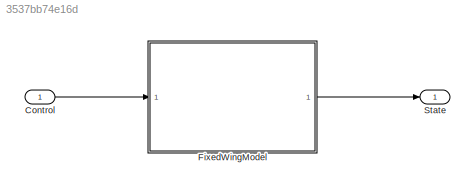
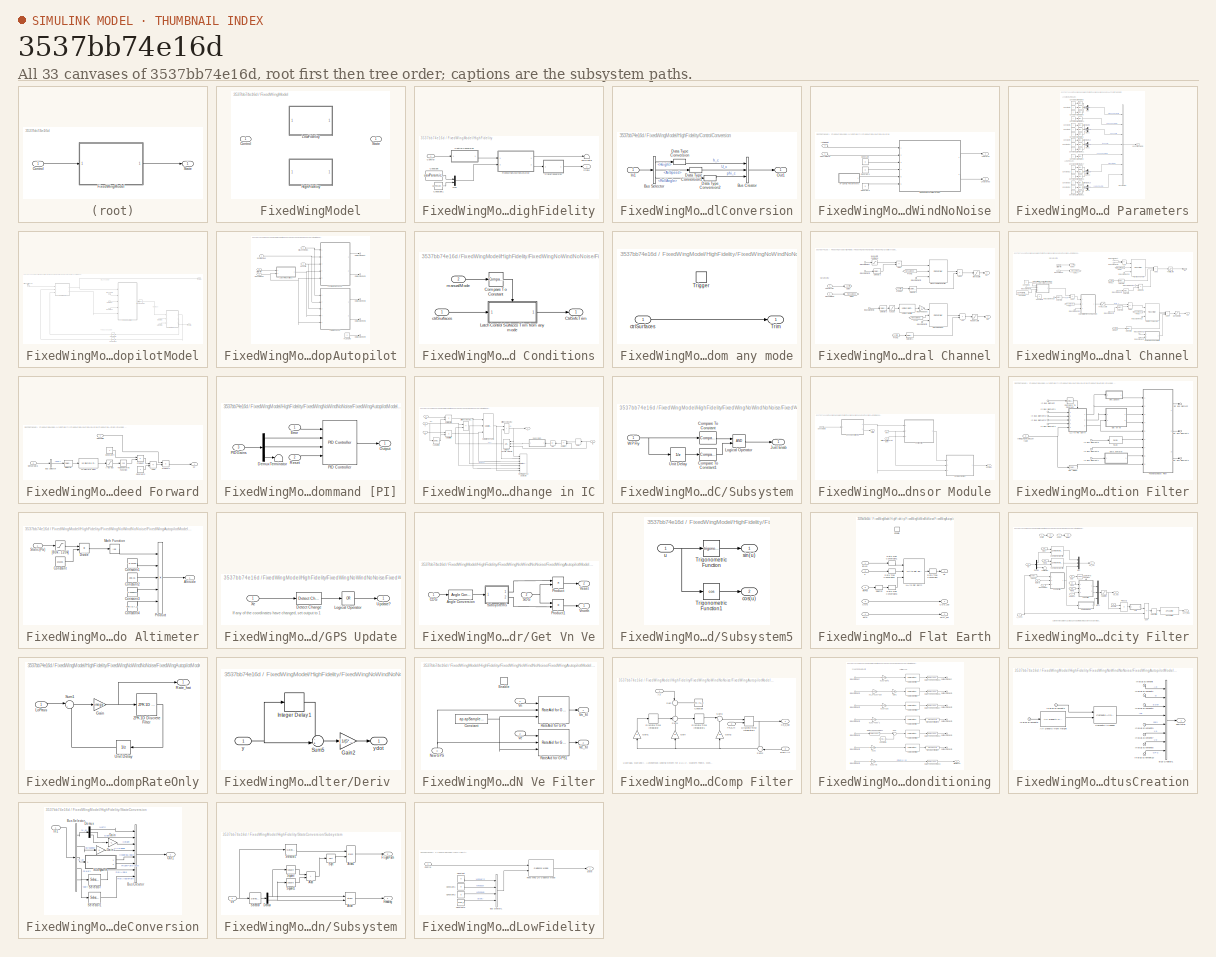
[diagram: thumbnail index - all 33 canvases of the model, root first then tree order]
MODEL slx_3537bb74e16d
KIND model
BLOCK [Inport] Control
  BusOutputAsStruct = on
  OutDataTypeStr = Bus: FixedWingControlBus
BLOCK [SubSystem] FixedWingModel
  Ports = [1, 1]
  RequestExecContextInheritance = off
  Variant = on
BLOCK [Inport] FixedWingModel/Control
BLOCK [SubSystem] FixedWingModel/HighFidelity
  Ports = [1, 1]
  RequestExecContextInheritance = off
  VariantControl = useHighFidelity == 1
BLOCK [Constant] FixedWingModel/HighFidelity/Constant
  OutDataTypeStr = single
  Value = uavParam.ic.gsLL
BLOCK [Constant] FixedWingModel/HighFidelity/Constant1
  OutDataTypeStr = single
  Value = uavParam.ic.Pos_0(3)
BLOCK [Inport] FixedWingModel/HighFidelity/Control
BLOCK [SubSystem] FixedWingModel/HighFidelity/ControlConversion
  Ports = [1, 1]
  RequestExecContextInheritance = off
BLOCK [BusCreator] FixedWingModel/HighFidelity/ControlConversion/Bus Creator
  DisplayOption = bar
  InheritFromInputs = on
  Inputs = 3
  NonVirtualBus = on
  OutDataTypeStr = Bus: midLevelControlBus
  Ports = [3, 1]
BLOCK [BusSelector] FixedWingModel/HighFidelity/ControlConversion/Bus Selector
  OutputSignals = Height,AirSpeed,RollAngle
  Ports = [1, 3]
BLOCK [DataTypeConversion] FixedWingModel/HighFidelity/ControlConversion/Data Type Conversion
  RndMeth = Floor
  SaturateOnIntegerOverflow = off
BLOCK [DataTypeConversion] FixedWingModel/HighFidelity/ControlConversion/Data Type Conversion1
  RndMeth = Floor
  SaturateOnIntegerOverflow = off
BLOCK [DataTypeConversion] FixedWingModel/HighFidelity/ControlConversion/Data Type Conversion2
  RndMeth = Floor
  SaturateOnIntegerOverflow = off
BLOCK [Inport] FixedWingModel/HighFidelity/ControlConversion/In1
BLOCK [Outport] FixedWingModel/HighFidelity/ControlConversion/Out1
  VectorParamsAs1DForOutWhenUnconnected = off
BLOCK [SubSystem] FixedWingModel/HighFidelity/FixedWingNoWindNoNoise
  Ports = [2, 2]
  RequestExecContextInheritance = off
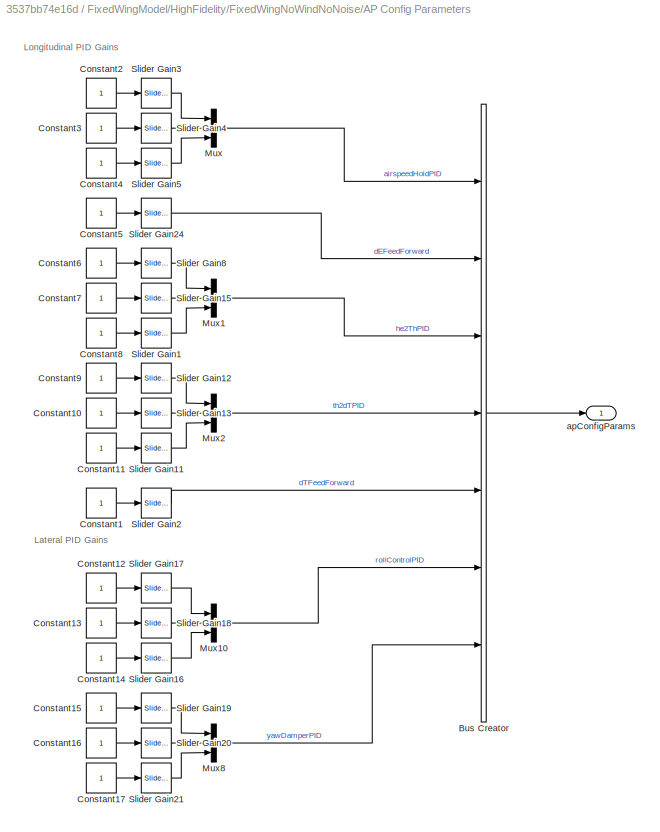
BLOCK [SubSystem] FixedWingModel/HighFidelity/FixedWingNoWindNoNoise/AP Config Parameters
  Ports = [0, 1]
  RequestExecContextInheritance = off
BLOCK [BusCreator] FixedWingModel/HighFidelity/FixedWingNoWindNoNoise/AP Config Parameters/Bus Creator
  DisplayOption = bar
  InheritFromInputs = on
  Inputs = 7
  OutDataTypeStr = Bus: apConfigParamsBus
  Ports = [7, 1]
BLOCK [Constant] FixedWingModel/HighFidelity/FixedWingNoWindNoNoise/AP Config Parameters/Constant1
  AttributesFormatString = %<Value>
  OutDataTypeStr = single
  SampleTime = ap.apSampleTime
BLOCK [Constant] FixedWingModel/HighFidelity/FixedWingNoWindNoNoise/AP Config Parameters/Constant10
  AttributesFormatString = %<Value>
  OutDataTypeStr = single
  SampleTime = ap.apSampleTime
BLOCK [Constant] FixedWingModel/HighFidelity/FixedWingNoWindNoNoise/AP Config Parameters/Constant11
  AttributesFormatString = %<Value>
  OutDataTypeStr = single
  SampleTime = ap.apSampleTime
BLOCK [Constant] FixedWingModel/HighFidelity/FixedWingNoWindNoNoise/AP Config Parameters/Constant12
  AttributesFormatString = %<Value>
  OutDataTypeStr = single
  SampleTime = ap.apSampleTime
BLOCK [Constant] FixedWingModel/HighFidelity/FixedWingNoWindNoNoise/AP Config Parameters/Constant13
  AttributesFormatString = %<Value>
  OutDataTypeStr = single
  SampleTime = ap.apSampleTime
BLOCK [Constant] FixedWingModel/HighFidelity/FixedWingNoWindNoNoise/AP Config Parameters/Constant14
  AttributesFormatString = %<Value>
  OutDataTypeStr = single
  SampleTime = ap.apSampleTime
BLOCK [Constant] FixedWingModel/HighFidelity/FixedWingNoWindNoNoise/AP Config Parameters/Constant15
  AttributesFormatString = %<Value>
  OutDataTypeStr = single
  SampleTime = ap.apSampleTime
BLOCK [Constant] FixedWingModel/HighFidelity/FixedWingNoWindNoNoise/AP Config Parameters/Constant16
  AttributesFormatString = %<Value>
  OutDataTypeStr = single
  SampleTime = ap.apSampleTime
BLOCK [Constant] FixedWingModel/HighFidelity/FixedWingNoWindNoNoise/AP Config Parameters/Constant17
  AttributesFormatString = %<Value>
  OutDataTypeStr = single
  SampleTime = ap.apSampleTime
BLOCK [Constant] FixedWingModel/HighFidelity/FixedWingNoWindNoNoise/AP Config Parameters/Constant2
  AttributesFormatString = %<Value>
  OutDataTypeStr = single
  SampleTime = ap.apSampleTime
BLOCK [Constant] FixedWingModel/HighFidelity/FixedWingNoWindNoNoise/AP Config Parameters/Constant3
  AttributesFormatString = %<Value>
  OutDataTypeStr = single
  SampleTime = ap.apSampleTime
BLOCK [Constant] FixedWingModel/HighFidelity/FixedWingNoWindNoNoise/AP Config Parameters/Constant4
  AttributesFormatString = %<Value>
  OutDataTypeStr = single
  SampleTime = ap.apSampleTime
BLOCK [Constant] FixedWingModel/HighFidelity/FixedWingNoWindNoNoise/AP Config Parameters/Constant5
  AttributesFormatString = %<Value>
  OutDataTypeStr = single
  SampleTime = ap.apSampleTime
BLOCK [Constant] FixedWingModel/HighFidelity/FixedWingNoWindNoNoise/AP Config Parameters/Constant6
  AttributesFormatString = %<Value>
  OutDataTypeStr = single
  SampleTime = ap.apSampleTime
BLOCK [Constant] FixedWingModel/HighFidelity/FixedWingNoWindNoNoise/AP Config Parameters/Constant7
  AttributesFormatString = %<Value>
  OutDataTypeStr = single
  SampleTime = ap.apSampleTime
BLOCK [Constant] FixedWingModel/HighFidelity/FixedWingNoWindNoNoise/AP Config Parameters/Constant8
  AttributesFormatString = %<Value>
  OutDataTypeStr = single
  SampleTime = ap.apSampleTime
BLOCK [Constant] FixedWingModel/HighFidelity/FixedWingNoWindNoNoise/AP Config Parameters/Constant9
  AttributesFormatString = %<Value>
  OutDataTypeStr = single
  SampleTime = ap.apSampleTime
BLOCK [Mux] FixedWingModel/HighFidelity/FixedWingNoWindNoNoise/AP Config Parameters/Mux
  DisplayOption = bar
  Inputs = 3
  Ports = [3, 1]
BLOCK [Mux] FixedWingModel/HighFidelity/FixedWingNoWindNoNoise/AP Config Parameters/Mux1
  DisplayOption = bar
  Inputs = 3
  Ports = [3, 1]
BLOCK [Mux] FixedWingModel/HighFidelity/FixedWingNoWindNoNoise/AP Config Parameters/Mux10
  DisplayOption = bar
  Inputs = 3
  Ports = [3, 1]
BLOCK [Mux] FixedWingModel/HighFidelity/FixedWingNoWindNoNoise/AP Config Parameters/Mux2
  DisplayOption = bar
  Inputs = 3
  Ports = [3, 1]
BLOCK [Mux] FixedWingModel/HighFidelity/FixedWingNoWindNoNoise/AP Config Parameters/Mux8
  DisplayOption = bar
  Inputs = 3
  Ports = [3, 1]
BLOCK [Reference] FixedWingModel/HighFidelity/FixedWingNoWindNoNoise/AP Config Parameters/Slider Gain1  REF=simulink/Math
Operations/Slider
Gain
  Ports = [1, 1]
  SourceBlock = simulink/Math\nOperations/Slider\nGain
  SourceProductBaseCode = SL
  SourceType = Slider Gain
BLOCK [Reference] FixedWingModel/HighFidelity/FixedWingNoWindNoNoise/AP Config Parameters/Slider Gain11  REF=simulink/Math
Operations/Slider
Gain
  Ports = [1, 1]
  SourceBlock = simulink/Math\nOperations/Slider\nGain
  SourceProductBaseCode = SL
  SourceType = Slider Gain
BLOCK [Reference] FixedWingModel/HighFidelity/FixedWingNoWindNoNoise/AP Config Parameters/Slider Gain12  REF=simulink/Math
Operations/Slider
Gain
  Ports = [1, 1]
  SourceBlock = simulink/Math\nOperations/Slider\nGain
  SourceProductBaseCode = SL
  SourceType = Slider Gain
BLOCK [Reference] FixedWingModel/HighFidelity/FixedWingNoWindNoNoise/AP Config Parameters/Slider Gain13  REF=simulink/Math
Operations/Slider
Gain
  Ports = [1, 1]
  SourceBlock = simulink/Math\nOperations/Slider\nGain
  SourceProductBaseCode = SL
  SourceType = Slider Gain
BLOCK [Reference] FixedWingModel/HighFidelity/FixedWingNoWindNoNoise/AP Config Parameters/Slider Gain15  REF=simulink/Math
Operations/Slider
Gain
  Ports = [1, 1]
  SourceBlock = simulink/Math\nOperations/Slider\nGain
  SourceProductBaseCode = SL
  SourceType = Slider Gain
BLOCK [Reference] FixedWingModel/HighFidelity/FixedWingNoWindNoNoise/AP Config Parameters/Slider Gain16  REF=simulink/Math
Operations/Slider
Gain
  Ports = [1, 1]
  SourceBlock = simulink/Math\nOperations/Slider\nGain
  SourceProductBaseCode = SL
  SourceType = Slider Gain
BLOCK [Reference] FixedWingModel/HighFidelity/FixedWingNoWindNoNoise/AP Config Parameters/Slider Gain17  REF=simulink/Math
Operations/Slider
Gain
  Ports = [1, 1]
  SourceBlock = simulink/Math\nOperations/Slider\nGain
  SourceProductBaseCode = SL
  SourceType = Slider Gain
BLOCK [Reference] FixedWingModel/HighFidelity/FixedWingNoWindNoNoise/AP Config Parameters/Slider Gain18  REF=simulink/Math
Operations/Slider
Gain
  Ports = [1, 1]
  SourceBlock = simulink/Math\nOperations/Slider\nGain
  SourceProductBaseCode = SL
  SourceType = Slider Gain
BLOCK [Reference] FixedWingModel/HighFidelity/FixedWingNoWindNoNoise/AP Config Parameters/Slider Gain19  REF=simulink/Math
Operations/Slider
Gain
  Ports = [1, 1]
  SourceBlock = simulink/Math\nOperations/Slider\nGain
  SourceProductBaseCode = SL
  SourceType = Slider Gain
BLOCK [Reference] FixedWingModel/HighFidelity/FixedWingNoWindNoNoise/AP Config Parameters/Slider Gain2  REF=simulink/Math
Operations/Slider
Gain
  Ports = [1, 1]
  SourceBlock = simulink/Math\nOperations/Slider\nGain
  SourceProductBaseCode = SL
  SourceType = Slider Gain
BLOCK [Reference] FixedWingModel/HighFidelity/FixedWingNoWindNoNoise/AP Config Parameters/Slider Gain20  REF=simulink/Math
Operations/Slider
Gain
  Ports = [1, 1]
  SourceBlock = simulink/Math\nOperations/Slider\nGain
  SourceProductBaseCode = SL
  SourceType = Slider Gain
BLOCK [Reference] FixedWingModel/HighFidelity/FixedWingNoWindNoNoise/AP Config Parameters/Slider Gain21  REF=simulink/Math
Operations/Slider
Gain
  Ports = [1, 1]
  SourceBlock = simulink/Math\nOperations/Slider\nGain
  SourceProductBaseCode = SL
  SourceType = Slider Gain
BLOCK [Reference] FixedWingModel/HighFidelity/FixedWingNoWindNoNoise/AP Config Parameters/Slider Gain24  REF=simulink/Math
Operations/Slider
Gain
  Ports = [1, 1]
  SourceBlock = simulink/Math\nOperations/Slider\nGain
  SourceProductBaseCode = SL
  SourceType = Slider Gain
BLOCK [Reference] FixedWingModel/HighFidelity/FixedWingNoWindNoNoise/AP Config Parameters/Slider Gain3  REF=simulink/Math
Operations/Slider
Gain
  Ports = [1, 1]
  SourceBlock = simulink/Math\nOperations/Slider\nGain
  SourceProductBaseCode = SL
  SourceType = Slider Gain
BLOCK [Reference] FixedWingModel/HighFidelity/FixedWingNoWindNoNoise/AP Config Parameters/Slider Gain4  REF=simulink/Math
Operations/Slider
Gain
  Ports = [1, 1]
  SourceBlock = simulink/Math\nOperations/Slider\nGain
  SourceProductBaseCode = SL
  SourceType = Slider Gain
BLOCK [Reference] FixedWingModel/HighFidelity/FixedWingNoWindNoNoise/AP Config Parameters/Slider Gain5  REF=simulink/Math
Operations/Slider
Gain
  Ports = [1, 1]
  SourceBlock = simulink/Math\nOperations/Slider\nGain
  SourceProductBaseCode = SL
  SourceType = Slider Gain
BLOCK [Reference] FixedWingModel/HighFidelity/FixedWingNoWindNoNoise/AP Config Parameters/Slider Gain8  REF=simulink/Math
Operations/Slider
Gain
  Ports = [1, 1]
  SourceBlock = simulink/Math\nOperations/Slider\nGain
  SourceProductBaseCode = SL
  SourceType = Slider Gain
BLOCK [Outport] FixedWingModel/HighFidelity/FixedWingNoWindNoNoise/AP Config Parameters/apConfigParams
  OutDataTypeStr = Bus: apConfigParamsBus
  VectorParamsAs1DForOutWhenUnconnected = off
BLOCK [Outport] FixedWingModel/HighFidelity/FixedWingNoWindNoNoise/APStatus
  VectorParamsAs1DForOutWhenUnconnected = off
BLOCK [Constant] FixedWingModel/HighFidelity/FixedWingNoWindNoNoise/Constant
  OutDataTypeStr = Inherit: Inherit via back propagation
  Value = 0
BLOCK [Constant] FixedWingModel/HighFidelity/FixedWingNoWindNoNoise/Constant1
  OutDataTypeStr = Inherit: Inherit via back propagation
  Value = 0
BLOCK [Constant] FixedWingModel/HighFidelity/FixedWingNoWindNoNoise/Constant2
  OutDataTypeStr = Inherit: Inherit via back propagation
  Value = 0
BLOCK [Inport] FixedWingModel/HighFidelity/FixedWingNoWindNoNoise/ControlCmd
  OutDataTypeStr = Bus: midLevelControlBus
BLOCK [SubSystem] FixedWingModel/HighFidelity/FixedWingNoWindNoNoise/FixedWingAutopilotModel
  Ports = [6, 2]
  RequestExecContextInheritance = off
BLOCK [Inport] FixedWingModel/HighFidelity/FixedWingNoWindNoNoise/FixedWingAutopilotModel/ControlGains
  Port = 5
BLOCK [Inport] FixedWingModel/HighFidelity/FixedWingNoWindNoNoise/FixedWingAutopilotModel/InitialLongtitudeLatitude
  BusOutputAsStruct = on
  SampleTime = [0.01,0]
BLOCK [SubSystem] FixedWingModel/HighFidelity/FixedWingNoWindNoNoise/FixedWingAutopilotModel/InnerLoopAutopilot
  Ports = [5, 1]
  RequestExecContextInheritance = off
  TreatAsAtomicUnit = on
BLOCK [Constant] FixedWingModel/HighFidelity/FixedWingNoWindNoNoise/FixedWingAutopilotModel/InnerLoopAutopilot/FLapCmd
  AttributesFormatString = %<Value>
  OutDataTypeStr = single
  SampleTime = ap.apSampleTime
  Value = 0
BLOCK [SubSystem] FixedWingModel/HighFidelity/FixedWingNoWindNoNoise/FixedWingAutopilotModel/InnerLoopAutopilot/Latch Trim Conditions
  Ports = [2, 1]
  RequestExecContextInheritance = off
BLOCK [Reference] FixedWingModel/HighFidelity/FixedWingNoWindNoNoise/FixedWingAutopilotModel/InnerLoopAutopilot/Latch Trim Conditions/Compare To Constant  REF=simulink/Logic and Bit
Operations/Compare
To Constant
  Ports = [1, 1]
  SourceBlock = simulink/Logic and Bit\nOperations/Compare\nTo Constant
  SourceProductBaseCode = SL
  SourceType = Compare To Constant
BLOCK [Outport] FixedWingModel/HighFidelity/FixedWingNoWindNoNoise/FixedWingAutopilotModel/InnerLoopAutopilot/Latch Trim Conditions/CtrlSrfcTrim
  VectorParamsAs1DForOutWhenUnconnected = off
BLOCK [SubSystem] FixedWingModel/HighFidelity/FixedWingNoWindNoNoise/FixedWingAutopilotModel/InnerLoopAutopilot/Latch Trim Conditions/Latch Control Surfaces Trim from any mode
  Ports = [1, 1, 0, 1]
  RequestExecContextInheritance = off
  TreatAsAtomicUnit = on
BLOCK [TriggerPort] FixedWingModel/HighFidelity/FixedWingNoWindNoNoise/FixedWingAutopilotModel/InnerLoopAutopilot/Latch Trim Conditions/Latch Control Surfaces Trim from any mode/Trigger
  Ports = []
  StatesWhenEnabling = held
  TriggerType = falling
  VariantControl = Variant
BLOCK [Outport] FixedWingModel/HighFidelity/FixedWingNoWindNoNoise/FixedWingAutopilotModel/InnerLoopAutopilot/Latch Trim Conditions/Latch Control Surfaces Trim from any mode/Trim
  VectorParamsAs1DForOutWhenUnconnected = off
BLOCK [Inport] FixedWingModel/HighFidelity/FixedWingNoWindNoNoise/FixedWingAutopilotModel/InnerLoopAutopilot/Latch Trim Conditions/Latch Control Surfaces Trim from any mode/ctrlSurfaces
BLOCK [Inport] FixedWingModel/HighFidelity/FixedWingNoWindNoNoise/FixedWingAutopilotModel/InnerLoopAutopilot/Latch Trim Conditions/ctrlSurfaces
BLOCK [Inport] FixedWingModel/HighFidelity/FixedWingNoWindNoNoise/FixedWingAutopilotModel/InnerLoopAutopilot/Latch Trim Conditions/manualMode
  Port = 2
BLOCK [SubSystem] FixedWingModel/HighFidelity/FixedWingNoWindNoNoise/FixedWingAutopilotModel/InnerLoopAutopilot/Lateral Channel
  Ports = [5, 2]
  RequestExecContextInheritance = off
  TreatAsAtomicUnit = on
BLOCK [Reference] FixedWingModel/HighFidelity/FixedWingNoWindNoNoise/FixedWingAutopilotModel/InnerLoopAutopilot/Lateral Channel/1D Discrete Filter  REF=mbdriLib/Filtering/1D Discrete Filter
  AttributesFormatString = Fc = 10
  Ports = [1, 1]
  SourceBlock = mbdriLib/Filtering/1D Discrete Filter
BLOCK [Sum] FixedWingModel/HighFidelity/FixedWingNoWindNoNoise/FixedWingAutopilotModel/InnerLoopAutopilot/Lateral Channel/Add
  IconShape = rectangular
  OutDataTypeStr = single
  Ports = [2, 1]
BLOCK [Sum] FixedWingModel/HighFidelity/FixedWingNoWindNoNoise/FixedWingAutopilotModel/InnerLoopAutopilot/Lateral Channel/Add1
  IconShape = rectangular
  Inputs = +-
  OutDataTypeStr = single
  Ports = [2, 1]
BLOCK [Sum] FixedWingModel/HighFidelity/FixedWingNoWindNoNoise/FixedWingAutopilotModel/InnerLoopAutopilot/Lateral Channel/Add3
  IconShape = rectangular
  OutDataTypeStr = single
  Ports = [2, 1]
BLOCK [Saturate] FixedWingModel/HighFidelity/FixedWingNoWindNoNoise/FixedWingAutopilotModel/InnerLoopAutopilot/Lateral Channel/Aileron Limit
  AttributesFormatString = [%<LowerLimit>  %<UpperLimit>]
  LowerLimit = -ap.control.daLimit
  UpperLimit = ap.control.daLimit
BLOCK [Saturate] FixedWingModel/HighFidelity/FixedWingNoWindNoNoise/FixedWingAutopilotModel/InnerLoopAutopilot/Lateral Channel/Bank  Limit Command
  AttributesFormatString = [%<LowerLimit>  %<UpperLimit>]
  LowerLimit = -ap.control.phi_cLimit
  UpperLimit = ap.control.phi_cLimit
BLOCK [From] FixedWingModel/HighFidelity/FixedWingNoWindNoNoise/FixedWingAutopilotModel/InnerLoopAutopilot/Lateral Channel/From
  GotoTag = manualMode
BLOCK [From] FixedWingModel/HighFidelity/FixedWingNoWindNoNoise/FixedWingAutopilotModel/InnerLoopAutopilot/Lateral Channel/From1
  AttributesFormatString = [%<GotoTag>]
  GotoTag = csTrim
BLOCK [From] FixedWingModel/HighFidelity/FixedWingNoWindNoNoise/FixedWingAutopilotModel/InnerLoopAutopilot/Lateral Channel/From12
  AttributesFormatString = [%<GotoTag>]
  GotoTag = csTrim
BLOCK [From] FixedWingModel/HighFidelity/FixedWingNoWindNoNoise/FixedWingAutopilotModel/InnerLoopAutopilot/Lateral Channel/From2
  GotoTag = manualMode
BLOCK [Goto] FixedWingModel/HighFidelity/FixedWingNoWindNoNoise/FixedWingAutopilotModel/InnerLoopAutopilot/Lateral Channel/Goto1
  AttributesFormatString = [%<GotoTag>]
  GotoTag = manualMode
BLOCK [Goto] FixedWingModel/HighFidelity/FixedWingNoWindNoNoise/FixedWingAutopilotModel/InnerLoopAutopilot/Lateral Channel/Goto5
  AttributesFormatString = [%<GotoTag>]
  GotoTag = csTrim
BLOCK [Inport] FixedWingModel/HighFidelity/FixedWingNoWindNoNoise/FixedWingAutopilotModel/InnerLoopAutopilot/Lateral Channel/In Bus Element
BLOCK [Inport] FixedWingModel/HighFidelity/FixedWingNoWindNoNoise/FixedWingAutopilotModel/InnerLoopAutopilot/Lateral Channel/In Bus Element1
  Port = 2
BLOCK [Inport] FixedWingModel/HighFidelity/FixedWingNoWindNoNoise/FixedWingAutopilotModel/InnerLoopAutopilot/Lateral Channel/In Bus Element2
  Port = 2
BLOCK [Inport] FixedWingModel/HighFidelity/FixedWingNoWindNoNoise/FixedWingAutopilotModel/InnerLoopAutopilot/Lateral Channel/In Bus Element3
  Port = 3
BLOCK [Inport] FixedWingModel/HighFidelity/FixedWingNoWindNoNoise/FixedWingAutopilotModel/InnerLoopAutopilot/Lateral Channel/In Bus Element5
  Port = 3
BLOCK [Gain] FixedWingModel/HighFidelity/FixedWingNoWindNoNoise/FixedWingAutopilotModel/InnerLoopAutopilot/Lateral Channel/Neg Feedback
  AttributesFormatString = %<Gain>
  Gain = -1
  OutDataTypeStr = float('double')
BLOCK [Reference] FixedWingModel/HighFidelity/FixedWingNoWindNoNoise/FixedWingAutopilotModel/InnerLoopAutopilot/Lateral Channel/PID Turn Rate Controller  REF=mbdriLib/Control/PID Controller
  Ports = [3, 1]
  SourceBlock = mbdriLib/Control/PID Controller
  SourceType = PID
BLOCK [Reference] FixedWingModel/HighFidelity/FixedWingNoWindNoNoise/FixedWingAutopilotModel/InnerLoopAutopilot/Lateral Channel/PID Yaw Damper  REF=mbdriLib/Control/PID Controller
  Ports = [3, 1]
  SourceBlock = mbdriLib/Control/PID Controller
  SourceType = PID
BLOCK [Saturate] FixedWingModel/HighFidelity/FixedWingNoWindNoNoise/FixedWingAutopilotModel/InnerLoopAutopilot/Lateral Channel/Rudder Limit
  AttributesFormatString = [%<LowerLimit>  %<UpperLimit>]
  LowerLimit = -ap.control.drLimit
  UpperLimit = ap.control.drLimit
BLOCK [Selector] FixedWingModel/HighFidelity/FixedWingNoWindNoNoise/FixedWingAutopilotModel/InnerLoopAutopilot/Lateral Channel/Selector1
  AttributesFormatString = %<Indices>
  IndexOptions = Index vector (dialog)
  Indices = [3]
  InputPortWidth = 5
  OutputSizes = 1
  Ports = [1, 1]
BLOCK [Selector] FixedWingModel/HighFidelity/FixedWingNoWindNoNoise/FixedWingAutopilotModel/InnerLoopAutopilot/Lateral Channel/Selector2
  AttributesFormatString = %<Indices>
  IndexOptions = Index vector (dialog)
  Indices = [1]
  InputPortWidth = 3
  OutputSizes = 1
  Ports = [1, 1]
BLOCK [Selector] FixedWingModel/HighFidelity/FixedWingNoWindNoNoise/FixedWingAutopilotModel/InnerLoopAutopilot/Lateral Channel/Selector3
  AttributesFormatString = %<Indices>
  IndexOptions = Index vector (dialog)
  Indices = [2]
  InputPortWidth = 3
  OutputSizes = 1
  Ports = [1, 1]
BLOCK [Selector] FixedWingModel/HighFidelity/FixedWingNoWindNoNoise/FixedWingAutopilotModel/InnerLoopAutopilot/Lateral Channel/Selector4
  AttributesFormatString = %<Indices>
  IndexOptions = Index vector (dialog)
  Indices = [2]
  InputPortWidth = 5
  OutputSizes = 1
  Ports = [1, 1]
BLOCK [Saturate] FixedWingModel/HighFidelity/FixedWingNoWindNoNoise/FixedWingAutopilotModel/InnerLoopAutopilot/Lateral Channel/[-20 20]
  AttributesFormatString = [%<LowerLimit>  %<UpperLimit>]
  LowerLimit = -20
  UpperLimit = 20
BLOCK [Inport] FixedWingModel/HighFidelity/FixedWingNoWindNoNoise/FixedWingAutopilotModel/InnerLoopAutopilot/Lateral Channel/ctrlSrfcTrim
  Port = 4
BLOCK [Outport] FixedWingModel/HighFidelity/FixedWingNoWindNoNoise/FixedWingAutopilotModel/InnerLoopAutopilot/Lateral Channel/dA
  VectorParamsAs1DForOutWhenUnconnected = off
BLOCK [Outport] FixedWingModel/HighFidelity/FixedWingNoWindNoNoise/FixedWingAutopilotModel/InnerLoopAutopilot/Lateral Channel/dR
  Port = 2
  VectorParamsAs1DForOutWhenUnconnected = off
BLOCK [Inport] FixedWingModel/HighFidelity/FixedWingNoWindNoNoise/FixedWingAutopilotModel/InnerLoopAutopilot/Lateral Channel/manualMode
  Port = 5
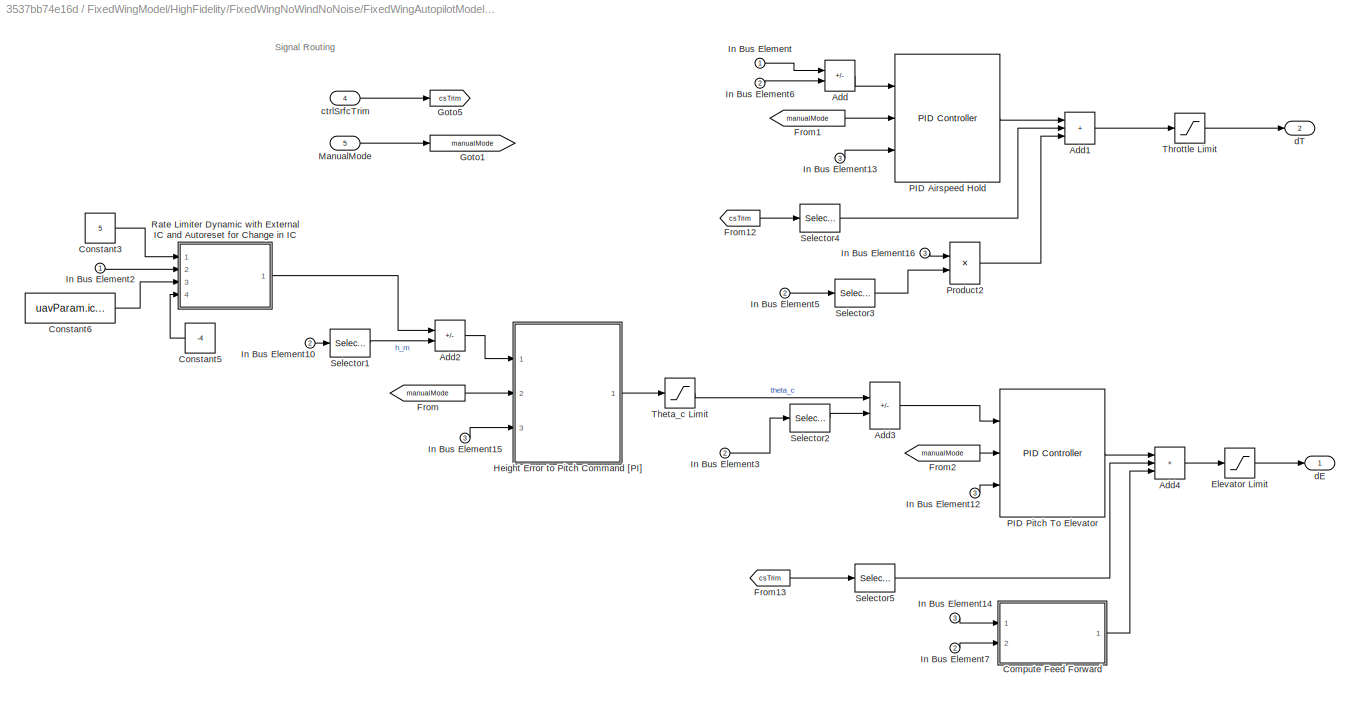
BLOCK [SubSystem] FixedWingModel/HighFidelity/FixedWingNoWindNoNoise/FixedWingAutopilotModel/InnerLoopAutopilot/Longitudinal Channel
  Ports = [5, 2]
  RequestExecContextInheritance = off
  TreatAsAtomicUnit = on
BLOCK [Sum] FixedWingModel/HighFidelity/FixedWingNoWindNoNoise/FixedWingAutopilotModel/InnerLoopAutopilot/Longitudinal Channel/Add
  IconShape = rectangular
  Inputs = +-
  Ports = [2, 1]
BLOCK [Sum] FixedWingModel/HighFidelity/FixedWingNoWindNoNoise/FixedWingAutopilotModel/InnerLoopAutopilot/Longitudinal Channel/Add1
  IconShape = rectangular
  Inputs = 3
  OutDataTypeStr = single
  Ports = [3, 1]
BLOCK [Sum] FixedWingModel/HighFidelity/FixedWingNoWindNoNoise/FixedWingAutopilotModel/InnerLoopAutopilot/Longitudinal Channel/Add2
  IconShape = rectangular
  Inputs = +-
  OutDataTypeStr = single
  Ports = [2, 1]
BLOCK [Sum] FixedWingModel/HighFidelity/FixedWingNoWindNoNoise/FixedWingAutopilotModel/InnerLoopAutopilot/Longitudinal Channel/Add3
  IconShape = rectangular
  Inputs = +-
  OutDataTypeStr = single
  Ports = [2, 1]
BLOCK [Sum] FixedWingModel/HighFidelity/FixedWingNoWindNoNoise/FixedWingAutopilotModel/InnerLoopAutopilot/Longitudinal Channel/Add4
  IconShape = rectangular
  Inputs = 3
  OutDataTypeStr = single
  Ports = [3, 1]
BLOCK [SubSystem] FixedWingModel/HighFidelity/FixedWingNoWindNoNoise/FixedWingAutopilotModel/InnerLoopAutopilot/Longitudinal Channel/Compute Feed Forward
  Ports = [2, 1]
  RequestExecContextInheritance = off
BLOCK [Reference] FixedWingModel/HighFidelity/FixedWingNoWindNoNoise/FixedWingAutopilotModel/InnerLoopAutopilot/Longitudinal Channel/Compute Feed Forward/1D Discrete Filter  REF=mbdriLib/Filtering/1D Discrete Filter
  AttributesFormatString = Fc = 10
  Ports = [1, 1]
  SourceBlock = mbdriLib/Filtering/1D Discrete Filter
BLOCK [Sum] FixedWingModel/HighFidelity/FixedWingNoWindNoNoise/FixedWingAutopilotModel/InnerLoopAutopilot/Longitudinal Channel/Compute Feed Forward/Add5
  IconShape = rectangular
  Inputs = +-
  OutDataTypeStr = single
  Ports = [2, 1]
BLOCK [BusSelector] FixedWingModel/HighFidelity/FixedWingNoWindNoNoise/FixedWingAutopilotModel/InnerLoopAutopilot/Longitudinal Channel/Compute Feed Forward/Bus Selector
  OutputSignals = Euler
  Ports = [1, 1]
BLOCK [Constant] FixedWingModel/HighFidelity/FixedWingNoWindNoNoise/FixedWingAutopilotModel/InnerLoopAutopilot/Longitudinal Channel/Compute Feed Forward/Constant2
  AttributesFormatString = %<Value>
  OutDataTypeStr = single
BLOCK [Constant] FixedWingModel/HighFidelity/FixedWingNoWindNoNoise/FixedWingAutopilotModel/InnerLoopAutopilot/Longitudinal Channel/Compute Feed Forward/Constant4
  AttributesFormatString = %<Value>
  OutDataTypeStr = single
BLOCK [Outport] FixedWingModel/HighFidelity/FixedWingNoWindNoNoise/FixedWingAutopilotModel/InnerLoopAutopilot/Longitudinal Channel/Compute Feed Forward/FF
  VectorParamsAs1DForOutWhenUnconnected = off
BLOCK [Product] FixedWingModel/HighFidelity/FixedWingNoWindNoNoise/FixedWingAutopilotModel/InnerLoopAutopilot/Longitudinal Channel/Compute Feed Forward/Product
  Inputs = */
  Ports = [2, 1]
  RndMeth = Zero
BLOCK [Product] FixedWingModel/HighFidelity/FixedWingNoWindNoNoise/FixedWingAutopilotModel/InnerLoopAutopilot/Longitudinal Channel/Compute Feed Forward/Product1
  Ports = [2, 1]
  RndMeth = Zero
BLOCK [Selector] FixedWingModel/HighFidelity/FixedWingNoWindNoNoise/FixedWingAutopilotModel/InnerLoopAutopilot/Longitudinal Channel/Compute Feed Forward/Selector
  AttributesFormatString = %<Indices>
  IndexOptions = Index vector (dialog)
  Indices = [1]
  InputPortWidth = 3
  OutputSizes = 1
  Ports = [1, 1]
BLOCK [Inport] FixedWingModel/HighFidelity/FixedWingNoWindNoNoise/FixedWingAutopilotModel/InnerLoopAutopilot/Longitudinal Channel/Compute Feed Forward/SensorData
  Port = 2
BLOCK [Trigonometry] FixedWingModel/HighFidelity/FixedWingNoWindNoNoise/FixedWingAutopilotModel/InnerLoopAutopilot/Longitudinal Channel/Compute Feed Forward/Trigonometric Function
  Operator = cos
  Ports = [1, 1]
BLOCK [Saturate] FixedWingModel/HighFidelity/FixedWingNoWindNoNoise/FixedWingAutopilotModel/InnerLoopAutopilot/Longitudinal Channel/Compute Feed Forward/[-60 60]
  AttributesFormatString = [%<LowerLimit>  %<UpperLimit>]
  LowerLimit = -60
  UpperLimit = 60
BLOCK [Inport] FixedWingModel/HighFidelity/FixedWingNoWindNoNoise/FixedWingAutopilotModel/InnerLoopAutopilot/Longitudinal Channel/Compute Feed Forward/dEFFGain
BLOCK [Constant] FixedWingModel/HighFidelity/FixedWingNoWindNoNoise/FixedWingAutopilotModel/InnerLoopAutopilot/Longitudinal Channel/Constant3
  AttributesFormatString = %<Value>
  OutDataTypeStr = single
  Value = 5
BLOCK [Constant] FixedWingModel/HighFidelity/FixedWingNoWindNoNoise/FixedWingAutopilotModel/InnerLoopAutopilot/Longitudinal Channel/Constant5
  AttributesFormatString = %<Value>
  OutDataTypeStr = single
  Value = -4
BLOCK [Constant] FixedWingModel/HighFidelity/FixedWingNoWindNoNoise/FixedWingAutopilotModel/InnerLoopAutopilot/Longitudinal Channel/Constant6
  AttributesFormatString = %<Value>
  OutDataTypeStr = single
  Value = uavParam.ic.Pos_0(3)
BLOCK [Saturate] FixedWingModel/HighFidelity/FixedWingNoWindNoNoise/FixedWingAutopilotModel/InnerLoopAutopilot/Longitudinal Channel/Elevator Limit
  AttributesFormatString = [%<LowerLimit>  %<UpperLimit>]
  LowerLimit = -ap.control.deLimit
  UpperLimit = ap.control.deLimit
BLOCK [From] FixedWingModel/HighFidelity/FixedWingNoWindNoNoise/FixedWingAutopilotModel/InnerLoopAutopilot/Longitudinal Channel/From
  GotoTag = manualMode
BLOCK [From] FixedWingModel/HighFidelity/FixedWingNoWindNoNoise/FixedWingAutopilotModel/InnerLoopAutopilot/Longitudinal Channel/From1
  GotoTag = manualMode
BLOCK [From] FixedWingModel/HighFidelity/FixedWingNoWindNoNoise/FixedWingAutopilotModel/InnerLoopAutopilot/Longitudinal Channel/From12
  AttributesFormatString = [%<GotoTag>]
  GotoTag = csTrim
BLOCK [From] FixedWingModel/HighFidelity/FixedWingNoWindNoNoise/FixedWingAutopilotModel/InnerLoopAutopilot/Longitudinal Channel/From13
  AttributesFormatString = [%<GotoTag>]
  GotoTag = csTrim
BLOCK [From] FixedWingModel/HighFidelity/FixedWingNoWindNoNoise/FixedWingAutopilotModel/InnerLoopAutopilot/Longitudinal Channel/From2
  GotoTag = manualMode
BLOCK [Goto] FixedWingModel/HighFidelity/FixedWingNoWindNoNoise/FixedWingAutopilotModel/InnerLoopAutopilot/Longitudinal Channel/Goto1
  AttributesFormatString = [%<GotoTag>]
  GotoTag = manualMode
BLOCK [Goto] FixedWingModel/HighFidelity/FixedWingNoWindNoNoise/FixedWingAutopilotModel/InnerLoopAutopilot/Longitudinal Channel/Goto5
  AttributesFormatString = [%<GotoTag>]
  GotoTag = csTrim
BLOCK [SubSystem] FixedWingModel/HighFidelity/FixedWingNoWindNoNoise/FixedWingAutopilotModel/InnerLoopAutopilot/Longitudinal Channel/Height Error to Pitch Command [PI]
  Ports = [3, 1]
  RequestExecContextInheritance = off
BLOCK [Demux] FixedWingModel/HighFidelity/FixedWingNoWindNoNoise/FixedWingAutopilotModel/InnerLoopAutopilot/Longitudinal Channel/Height Error to Pitch Command [PI]/Demux
  Outputs = 3
  Ports = [1, 3]
BLOCK [Inport] FixedWingModel/HighFidelity/FixedWingNoWindNoNoise/FixedWingAutopilotModel/InnerLoopAutopilot/Longitudinal Channel/Height Error to Pitch Command [PI]/Error
BLOCK [Outport] FixedWingModel/HighFidelity/FixedWingNoWindNoNoise/FixedWingAutopilotModel/InnerLoopAutopilot/Longitudinal Channel/Height Error to Pitch Command [PI]/Output
  VectorParamsAs1DForOutWhenUnconnected = off
BLOCK [Reference] FixedWingModel/HighFidelity/FixedWingNoWindNoNoise/FixedWingAutopilotModel/InnerLoopAutopilot/Longitudinal Channel/Height Error to Pitch Command [PI]/PID Controller  REF=pid_lib/PID Controller
  Ports = [4, 1]
  SourceBlock = pid_lib/PID Controller
  SourceProductBaseCode = SL
  SourceType = PID 1dof
BLOCK [Inport] FixedWingModel/HighFidelity/FixedWingNoWindNoNoise/FixedWingAutopilotModel/InnerLoopAutopilot/Longitudinal Channel/Height Error to Pitch Command [PI]/PIDGains
  Port = 3
BLOCK [Inport] FixedWingModel/HighFidelity/FixedWingNoWindNoNoise/FixedWingAutopilotModel/InnerLoopAutopilot/Longitudinal Channel/Height Error to Pitch Command [PI]/Reset
  Port = 2
BLOCK [Terminator] FixedWingModel/HighFidelity/FixedWingNoWindNoNoise/FixedWingAutopilotModel/InnerLoopAutopilot/Longitudinal Channel/Height Error to Pitch Command [PI]/Terminator
BLOCK [Inport] FixedWingModel/HighFidelity/FixedWingNoWindNoNoise/FixedWingAutopilotModel/InnerLoopAutopilot/Longitudinal Channel/In Bus Element
BLOCK [Inport] FixedWingModel/HighFidelity/FixedWingNoWindNoNoise/FixedWingAutopilotModel/InnerLoopAutopilot/Longitudinal Channel/In Bus Element10
  Port = 2
BLOCK [Inport] FixedWingModel/HighFidelity/FixedWingNoWindNoNoise/FixedWingAutopilotModel/InnerLoopAutopilot/Longitudinal Channel/In Bus Element12
  Port = 3
BLOCK [Inport] FixedWingModel/HighFidelity/FixedWingNoWindNoNoise/FixedWingAutopilotModel/InnerLoopAutopilot/Longitudinal Channel/In Bus Element13
  Port = 3
BLOCK [Inport] FixedWingModel/HighFidelity/FixedWingNoWindNoNoise/FixedWingAutopilotModel/InnerLoopAutopilot/Longitudinal Channel/In Bus Element14
  Port = 3
BLOCK [Inport] FixedWingModel/HighFidelity/FixedWingNoWindNoNoise/FixedWingAutopilotModel/InnerLoopAutopilot/Longitudinal Channel/In Bus Element15
  Port = 3
BLOCK [Inport] FixedWingModel/HighFidelity/FixedWingNoWindNoNoise/FixedWingAutopilotModel/InnerLoopAutopilot/Longitudinal Channel/In Bus Element16
  Port = 3
BLOCK [Inport] FixedWingModel/HighFidelity/FixedWingNoWindNoNoise/FixedWingAutopilotModel/InnerLoopAutopilot/Longitudinal Channel/In Bus Element2
BLOCK [Inport] FixedWingModel/HighFidelity/FixedWingNoWindNoNoise/FixedWingAutopilotModel/InnerLoopAutopilot/Longitudinal Channel/In Bus Element3
  Port = 2
BLOCK [Inport] FixedWingModel/HighFidelity/FixedWingNoWindNoNoise/FixedWingAutopilotModel/InnerLoopAutopilot/Longitudinal Channel/In Bus Element5
  Port = 2
BLOCK [Inport] FixedWingModel/HighFidelity/FixedWingNoWindNoNoise/FixedWingAutopilotModel/InnerLoopAutopilot/Longitudinal Channel/In Bus Element6
  Port = 2
BLOCK [Inport] FixedWingModel/HighFidelity/FixedWingNoWindNoNoise/FixedWingAutopilotModel/InnerLoopAutopilot/Longitudinal Channel/In Bus Element7
  Port = 2
BLOCK [Inport] FixedWingModel/HighFidelity/FixedWingNoWindNoNoise/FixedWingAutopilotModel/InnerLoopAutopilot/Longitudinal Channel/ManualMode
  Port = 5
BLOCK [Reference] FixedWingModel/HighFidelity/FixedWingNoWindNoNoise/FixedWingAutopilotModel/InnerLoopAutopilot/Longitudinal Channel/PID Airspeed Hold  REF=mbdriLib/Control/PID Controller
  Ports = [3, 1]
  SourceBlock = mbdriLib/Control/PID Controller
  SourceType = PID
BLOCK [Reference] FixedWingModel/HighFidelity/FixedWingNoWindNoNoise/FixedWingAutopilotModel/InnerLoopAutopilot/Longitudinal Channel/PID Pitch To Elevator  REF=mbdriLib/Control/PID Controller
  Ports = [3, 1]
  SourceBlock = mbdriLib/Control/PID Controller
  SourceType = PID
BLOCK [Product] FixedWingModel/HighFidelity/FixedWingNoWindNoNoise/FixedWingAutopilotModel/InnerLoopAutopilot/Longitudinal Channel/Product2
  Ports = [2, 1]
  RndMeth = Zero
BLOCK [SubSystem] FixedWingModel/HighFidelity/FixedWingNoWindNoNoise/FixedWingAutopilotModel/InnerLoopAutopilot/Longitudinal Channel/Rate Limiter Dynamic with External IC and Autoreset for Change in IC
  NameLocation = top
  Ports = [4, 1]
  RequestExecContextInheritance = off
BLOCK [Abs] FixedWingModel/HighFidelity/FixedWingNoWindNoNoise/FixedWingAutopilotModel/InnerLoopAutopilot/Longitudinal Channel/Rate Limiter Dynamic with External IC and Autoreset for Change in IC/Abs
  SaturateOnIntegerOverflow = off
BLOCK [Delay] FixedWingModel/HighFidelity/FixedWingNoWindNoNoise/FixedWingAutopilotModel/InnerLoopAutopilot/Longitudinal Channel/Rate Limiter Dynamic with External IC and Autoreset for Change in IC/Delay
  DelayLength = 1
  InputPortMap = u0
  Ports = [1, 1]
BLOCK [Sum] FixedWingModel/HighFidelity/FixedWingNoWindNoNoise/FixedWingAutopilotModel/InnerLoopAutopilot/Longitudinal Channel/Rate Limiter Dynamic with External IC and Autoreset for Change in IC/Difference Inputs1
  Description = Add in CPU
  DisableCoverage = on
  IconShape = rectangular
  Inputs = +-
  OutDataTypeStr = Inherit: Inherit via back propagation
  Ports = [2, 1]
BLOCK [Sum] FixedWingModel/HighFidelity/FixedWingNoWindNoNoise/FixedWingAutopilotModel/InnerLoopAutopilot/Longitudinal Channel/Rate Limiter Dynamic with External IC and Autoreset for Change in IC/Difference Inputs2
  Description = Add in CPU
  IconShape = rectangular
  OutDataTypeStr = Inherit: Inherit via back propagation
  Ports = [2, 1]
BLOCK [DataTypeDuplicate] FixedWingModel/HighFidelity/FixedWingNoWindNoNoise/FixedWingAutopilotModel/InnerLoopAutopilot/Longitudinal Channel/Rate Limiter Dynamic with External IC and Autoreset for Change in IC/FixPt Data Type Duplicate
  DisableCoverage = on
  NumInputPorts = 7
  Ports = [7]
BLOCK [Inport] FixedWingModel/HighFidelity/FixedWingNoWindNoNoise/FixedWingAutopilotModel/InnerLoopAutopilot/Longitudinal Channel/Rate Limiter Dynamic with External IC and Autoreset for Change in IC/IC
  Port = 3
BLOCK [Reference] FixedWingModel/HighFidelity/FixedWingNoWindNoNoise/FixedWingAutopilotModel/InnerLoopAutopilot/Longitudinal Channel/Rate Limiter Dynamic with External IC and Autoreset for Change in IC/Saturation Dynamic  REF=simulink/Discontinuities/Saturation
Dynamic
  Ports = [3, 1]
  SourceBlock = simulink/Discontinuities/Saturation\nDynamic
  SourceProductBaseCode = SL
  SourceType = Saturation Dynamic
BLOCK [SubSystem] FixedWingModel/HighFidelity/FixedWingNoWindNoNoise/FixedWingAutopilotModel/InnerLoopAutopilot/Longitudinal Channel/Rate Limiter Dynamic with External IC and Autoreset for Change in IC/Subsystem
  Ports = [1, 1]
  RequestExecContextInheritance = off
BLOCK [Reference] FixedWingModel/HighFidelity/FixedWingNoWindNoNoise/FixedWingAutopilotModel/InnerLoopAutopilot/Longitudinal Channel/Rate Limiter Dynamic with External IC and Autoreset for Change in IC/Subsystem/Compare To Constant  REF=simulink/Logic and Bit
Operations/Compare
To Constant
  Ports = [1, 1]
  SourceBlock = simulink/Logic and Bit\nOperations/Compare\nTo Constant
  SourceProductBaseCode = SL
  SourceType = Compare To Constant
BLOCK [Reference] FixedWingModel/HighFidelity/FixedWingNoWindNoNoise/FixedWingAutopilotModel/InnerLoopAutopilot/Longitudinal Channel/Rate Limiter Dynamic with External IC and Autoreset for Change in IC/Subsystem/Compare To Constant1  REF=simulink/Logic and Bit
Operations/Compare
To Constant
  Ports = [1, 1]
  SourceBlock = simulink/Logic and Bit\nOperations/Compare\nTo Constant
  SourceProductBaseCode = SL
  SourceType = Compare To Constant
BLOCK [Outport] FixedWingModel/HighFidelity/FixedWingNoWindNoNoise/FixedWingAutopilotModel/InnerLoopAutopilot/Longitudinal Channel/Rate Limiter Dynamic with External IC and Autoreset for Change in IC/Subsystem/Just Enab
  VectorParamsAs1DForOutWhenUnconnected = off
BLOCK [Logic] FixedWingModel/HighFidelity/FixedWingNoWindNoNoise/FixedWingAutopilotModel/InnerLoopAutopilot/Longitudinal Channel/Rate Limiter Dynamic with External IC and Autoreset for Change in IC/Subsystem/Logical Operator
  AllPortsSameDT = off
  OutDataTypeStr = boolean
  Ports = [2, 1]
BLOCK [UnitDelay] FixedWingModel/HighFidelity/FixedWingNoWindNoNoise/FixedWingAutopilotModel/InnerLoopAutopilot/Longitudinal Channel/Rate Limiter Dynamic with External IC and Autoreset for Change in IC/Subsystem/Unit Delay
  HasFrameUpgradeWarning = on
  SampleTime = -1
BLOCK [Inport] FixedWingModel/HighFidelity/FixedWingNoWindNoNoise/FixedWingAutopilotModel/InnerLoopAutopilot/Longitudinal Channel/Rate Limiter Dynamic with External IC and Autoreset for Change in IC/Subsystem/WP Fly
BLOCK [Sum] FixedWingModel/HighFidelity/FixedWingNoWindNoNoise/FixedWingAutopilotModel/InnerLoopAutopilot/Longitudinal Channel/Rate Limiter Dynamic with External IC and Autoreset for Change in IC/Subtract
  IconShape = rectangular
  Inputs = +-
  Ports = [2, 1]
BLOCK [Reference] FixedWingModel/HighFidelity/FixedWingNoWindNoNoise/FixedWingAutopilotModel/InnerLoopAutopilot/Longitudinal Channel/Rate Limiter Dynamic with External IC and Autoreset for Change in IC/Unit Delay Resettable External IC  REF=simulink_need_slupdate/Unit Delay
Resettable
External IC
  Ports = [3, 1]
  SourceBlock = simulink_need_slupdate/Unit Delay\nResettable\nExternal IC
  SourceProductBaseCode = SL
  SourceType = Unit Delay Resettable External Initial Condition
BLOCK [Outport] FixedWingModel/HighFidelity/FixedWingNoWindNoNoise/FixedWingAutopilotModel/InnerLoopAutopilot/Longitudinal Channel/Rate Limiter Dynamic with External IC and Autoreset for Change in IC/Y
  VectorParamsAs1DForOutWhenUnconnected = off
BLOCK [Product] FixedWingModel/HighFidelity/FixedWingNoWindNoNoise/FixedWingAutopilotModel/InnerLoopAutopilot/Longitudinal Channel/Rate Limiter Dynamic with External IC and Autoreset for Change in IC/delta fall limit
  DisableCoverage = on
  Inputs = **
  OutDataTypeStr = Inherit: Inherit via back propagation
  Ports = [2, 1]
  SaturateOnIntegerOverflow = on
BLOCK [Product] FixedWingModel/HighFidelity/FixedWingNoWindNoNoise/FixedWingAutopilotModel/InnerLoopAutopilot/Longitudinal Channel/Rate Limiter Dynamic with External IC and Autoreset for Change in IC/delta rise limit
  DisableCoverage = on
  Inputs = **
  OutDataTypeStr = Inherit: Inherit via back propagation
  Ports = [2, 1]
  SaturateOnIntegerOverflow = on
BLOCK [Inport] FixedWingModel/HighFidelity/FixedWingNoWindNoNoise/FixedWingAutopilotModel/InnerLoopAutopilot/Longitudinal Channel/Rate Limiter Dynamic with External IC and Autoreset for Change in IC/lo
  Port = 4
BLOCK [SampleTimeMath] FixedWingModel/HighFidelity/FixedWingNoWindNoNoise/FixedWingAutopilotModel/InnerLoopAutopilot/Longitudinal Channel/Rate Limiter Dynamic with External IC and Autoreset for Change in IC/sample time
  DisableCoverage = on
  TsampMathOp = Ts Only
  weightValue = 1
BLOCK [Inport] FixedWingModel/HighFidelity/FixedWingNoWindNoNoise/FixedWingAutopilotModel/InnerLoopAutopilot/Longitudinal Channel/Rate Limiter Dynamic with External IC and Autoreset for Change in IC/u
  Port = 2
BLOCK [Inport] FixedWingModel/HighFidelity/FixedWingNoWindNoNoise/FixedWingAutopilotModel/InnerLoopAutopilot/Longitudinal Channel/Rate Limiter Dynamic with External IC and Autoreset for Change in IC/up
BLOCK [Selector] FixedWingModel/HighFidelity/FixedWingNoWindNoNoise/FixedWingAutopilotModel/InnerLoopAutopilot/Longitudinal Channel/Selector1
  AttributesFormatString = %<Indices>
  IndexOptions = Index vector (dialog)
  Indices = [3]
  InputPortWidth = 3
  OutputSizes = 1
  Ports = [1, 1]
BLOCK [Selector] FixedWingModel/HighFidelity/FixedWingNoWindNoNoise/FixedWingAutopilotModel/InnerLoopAutopilot/Longitudinal Channel/Selector2
  AttributesFormatString = %<Indices>
  IndexOptions = Index vector (dialog)
  Indices = [2]
  InputPortWidth = 3
  OutputSizes = 1
  Ports = [1, 1]
BLOCK [Selector] FixedWingModel/HighFidelity/FixedWingNoWindNoNoise/FixedWingAutopilotModel/InnerLoopAutopilot/Longitudinal Channel/Selector3
  AttributesFormatString = %<Indices>
  IndexOptions = Index vector (dialog)
  Indices = [2]
  InputPortWidth = 3
  OutputSizes = 1
  Ports = [1, 1]
BLOCK [Selector] FixedWingModel/HighFidelity/FixedWingNoWindNoNoise/FixedWingAutopilotModel/InnerLoopAutopilot/Longitudinal Channel/Selector4
  AttributesFormatString = %<Indices>
  IndexOptions = Index vector (dialog)
  Indices = [1]
  InputPortWidth = 5
  OutputSizes = 1
  Ports = [1, 1]
BLOCK [Selector] FixedWingModel/HighFidelity/FixedWingNoWindNoNoise/FixedWingAutopilotModel/InnerLoopAutopilot/Longitudinal Channel/Selector5
  AttributesFormatString = %<Indices>
  IndexOptions = Index vector (dialog)
  Indices = [5]
  InputPortWidth = 5
  OutputSizes = 1
  Ports = [1, 1]
BLOCK [Saturate] FixedWingModel/HighFidelity/FixedWingNoWindNoNoise/FixedWingAutopilotModel/InnerLoopAutopilot/Longitudinal Channel/Theta_c Limit
  AttributesFormatString = [%<LowerLimit>  %<UpperLimit>]
  LowerLimit = -ap.control.the_cLimit
  SampleTime = ap.apSampleTime
  UpperLimit = ap.control.the_cLimit
BLOCK [Saturate] FixedWingModel/HighFidelity/FixedWingNoWindNoNoise/FixedWingAutopilotModel/InnerLoopAutopilot/Longitudinal Channel/Throttle Limit
  AttributesFormatString = [%<LowerLimit>  %<UpperLimit>]
  LowerLimit = 0
  UpperLimit = ap.control.dtLimit
BLOCK [Inport] FixedWingModel/HighFidelity/FixedWingNoWindNoNoise/FixedWingAutopilotModel/InnerLoopAutopilot/Longitudinal Channel/ctrlSrfcTrim
  Port = 4
BLOCK [Outport] FixedWingModel/HighFidelity/FixedWingNoWindNoNoise/FixedWingAutopilotModel/InnerLoopAutopilot/Longitudinal Channel/dE
  VectorParamsAs1DForOutWhenUnconnected = off
BLOCK [Outport] FixedWingModel/HighFidelity/FixedWingNoWindNoNoise/FixedWingAutopilotModel/InnerLoopAutopilot/Longitudinal Channel/dT
  Port = 2
  VectorParamsAs1DForOutWhenUnconnected = off
BLOCK [Inport] FixedWingModel/HighFidelity/FixedWingNoWindNoNoise/FixedWingAutopilotModel/InnerLoopAutopilot/MidLevelCmds
  Port = 2
BLOCK [Outport] FixedWingModel/HighFidelity/FixedWingNoWindNoNoise/FixedWingAutopilotModel/InnerLoopAutopilot/Out Bus Element
  VectorParamsAs1DForOutWhenUnconnected = off
BLOCK [Outport] FixedWingModel/HighFidelity/FixedWingNoWindNoNoise/FixedWingAutopilotModel/InnerLoopAutopilot/Out Bus Element1
  VectorParamsAs1DForOutWhenUnconnected = off
BLOCK [Outport] FixedWingModel/HighFidelity/FixedWingNoWindNoNoise/FixedWingAutopilotModel/InnerLoopAutopilot/Out Bus Element2
  VectorParamsAs1DForOutWhenUnconnected = off
BLOCK [Outport] FixedWingModel/HighFidelity/FixedWingNoWindNoNoise/FixedWingAutopilotModel/InnerLoopAutopilot/Out Bus Element3
  VectorParamsAs1DForOutWhenUnconnected = off
BLOCK [Outport] FixedWingModel/HighFidelity/FixedWingNoWindNoNoise/FixedWingAutopilotModel/InnerLoopAutopilot/Out Bus Element4
  VectorParamsAs1DForOutWhenUnconnected = off
BLOCK [Inport] FixedWingModel/HighFidelity/FixedWingNoWindNoNoise/FixedWingAutopilotModel/InnerLoopAutopilot/apConfig
  OutDataTypeStr = Bus: apConfigParamsBus
  Port = 3
BLOCK [Inport] FixedWingModel/HighFidelity/FixedWingNoWindNoNoise/FixedWingAutopilotModel/InnerLoopAutopilot/apStatusBus
  OutDataTypeStr = Bus: apStatusBus
BLOCK [Inport] FixedWingModel/HighFidelity/FixedWingNoWindNoNoise/FixedWingAutopilotModel/InnerLoopAutopilot/ctrlSrfcTrim
  Port = 5
BLOCK [Inport] FixedWingModel/HighFidelity/FixedWingNoWindNoNoise/FixedWingAutopilotModel/InnerLoopAutopilot/manualMode
  Port = 4
BLOCK [Inport] FixedWingModel/HighFidelity/FixedWingNoWindNoNoise/FixedWingAutopilotModel/ManualMode
  Port = 6
BLOCK [Inport] FixedWingModel/HighFidelity/FixedWingNoWindNoNoise/FixedWingAutopilotModel/MidLevelCmd
  OutDataTypeStr = Bus: midLevelControlBus
  Port = 2
BLOCK [Inport] FixedWingModel/HighFidelity/FixedWingNoWindNoNoise/FixedWingAutopilotModel/NoiseSwitch
  Port = 4
BLOCK [ModelReference] FixedWingModel/HighFidelity/FixedWingNoWindNoNoise/FixedWingAutopilotModel/PlantModel
  ModelNameDialog = PlantModel
  ModelReferenceVersion = 2.0
  Ports = [3, 3]
BLOCK [RateTransition] FixedWingModel/HighFidelity/FixedWingNoWindNoNoise/FixedWingAutopilotModel/Rate Transition
  OutPortSampleTime = ap.apSampleTime
BLOCK [RateTransition] FixedWingModel/HighFidelity/FixedWingNoWindNoNoise/FixedWingAutopilotModel/Rate Transition1
  AttributesFormatString = %<OutPortSampleTime>
  OutPortSampleTime = ap.apSampleTime
BLOCK [SubSystem] FixedWingModel/HighFidelity/FixedWingNoWindNoNoise/FixedWingAutopilotModel/Sensor Module
  Ports = [3, 2]
  RequestExecContextInheritance = off
BLOCK [Outport] FixedWingModel/HighFidelity/FixedWingNoWindNoNoise/FixedWingAutopilotModel/Sensor Module/CtrlTrim
  Port = 2
  VectorParamsAs1DForOutWhenUnconnected = off
BLOCK [Inport] FixedWingModel/HighFidelity/FixedWingNoWindNoNoise/FixedWingAutopilotModel/Sensor Module/GPS
  Port = 3
BLOCK [Inport] FixedWingModel/HighFidelity/FixedWingNoWindNoNoise/FixedWingAutopilotModel/Sensor Module/InitialLongtitudeLatitude
BLOCK [SubSystem] FixedWingModel/HighFidelity/FixedWingNoWindNoNoise/FixedWingAutopilotModel/Sensor Module/Position Filter
  Ports = [3, 1]
  RequestExecContextInheritance = off
  TreatAsAtomicUnit = on
BLOCK [SubSystem] FixedWingModel/HighFidelity/FixedWingNoWindNoNoise/FixedWingAutopilotModel/Sensor Module/Position Filter/Baro Altimeter
  Ports = [1, 1]
  RequestExecContextInheritance = off
BLOCK [Outport] FixedWingModel/HighFidelity/FixedWingNoWindNoNoise/FixedWingAutopilotModel/Sensor Module/Position Filter/Baro Altimeter/Altitude
  VectorParamsAs1DForOutWhenUnconnected = off
BLOCK [Constant] FixedWingModel/HighFidelity/FixedWingNoWindNoNoise/FixedWingAutopilotModel/Sensor Module/Position Filter/Baro Altimeter/Constant
  AttributesFormatString = %<Value>
  Value = 101325
BLOCK [Constant] FixedWingModel/HighFidelity/FixedWingNoWindNoNoise/FixedWingAutopilotModel/Sensor Module/Position Filter/Baro Altimeter/Constant1
  AttributesFormatString = %<Value>
  Value = -8.31432
BLOCK [Constant] FixedWingModel/HighFidelity/FixedWingNoWindNoNoise/FixedWingAutopilotModel/Sensor Module/Position Filter/Baro Altimeter/Constant2
  AttributesFormatString = %<Value>
  Value = 288.15
BLOCK [Constant] FixedWingModel/HighFidelity/FixedWingNoWindNoNoise/FixedWingAutopilotModel/Sensor Module/Position Filter/Baro Altimeter/Constant3
  AttributesFormatString = %<Value>
  Value = 0.0289644
BLOCK [Constant] FixedWingModel/HighFidelity/FixedWingNoWindNoNoise/FixedWingAutopilotModel/Sensor Module/Position Filter/Baro Altimeter/Constant4
  AttributesFormatString = %<Value>
  Value = env.ISA_g
BLOCK [Product] FixedWingModel/HighFidelity/FixedWingNoWindNoNoise/FixedWingAutopilotModel/Sensor Module/Position Filter/Baro Altimeter/Divide
  Inputs = */
  Ports = [2, 1]
BLOCK [Math] FixedWingModel/HighFidelity/FixedWingNoWindNoNoise/FixedWingAutopilotModel/Sensor Module/Position Filter/Baro Altimeter/Math Function
  Operator = log
  Ports = [1, 1]
  SignedPower = on
BLOCK [Product] FixedWingModel/HighFidelity/FixedWingNoWindNoNoise/FixedWingAutopilotModel/Sensor Module/Position Filter/Baro Altimeter/Product
  Inputs = ***//
  Ports = [5, 1]
BLOCK [Inport] FixedWingModel/HighFidelity/FixedWingNoWindNoNoise/FixedWingAutopilotModel/Sensor Module/Position Filter/Baro Altimeter/Static (Pa)
BLOCK [Saturate] FixedWingModel/HighFidelity/FixedWingNoWindNoNoise/FixedWingAutopilotModel/Sensor Module/Position Filter/Baro Altimeter/[80k - 120k]
  AttributesFormatString = [%<LowerLimit>  %<UpperLimit>]
  LowerLimit = 80000
  UpperLimit = 160000
BLOCK [Reference] FixedWingModel/HighFidelity/FixedWingNoWindNoNoise/FixedWingAutopilotModel/Sensor Module/Position Filter/Compare To Constant  REF=simulink/Logic and Bit
Operations/Compare
To Constant
  NameLocation = top
  Ports = [1, 1]
  SourceBlock = simulink/Logic and Bit\nOperations/Compare\nTo Constant
  SourceProductBaseCode = SL
  SourceType = Compare To Constant
BLOCK [SubSystem] FixedWingModel/HighFidelity/FixedWingNoWindNoNoise/FixedWingAutopilotModel/Sensor Module/Position Filter/GPS Update
  Ports = [1, 1]
  RequestExecContextInheritance = off
BLOCK [Reference] FixedWingModel/HighFidelity/FixedWingNoWindNoNoise/FixedWingAutopilotModel/Sensor Module/Position Filter/GPS Update/Detect Change  REF=simulink/Logic and Bit
Operations/Detect
Change
  Ports = [1, 1]
  SourceBlock = simulink/Logic and Bit\nOperations/Detect\nChange
  SourceProductBaseCode = SL
  SourceType = Detect Change
BLOCK [Logic] FixedWingModel/HighFidelity/FixedWingNoWindNoNoise/FixedWingAutopilotModel/Sensor Module/Position Filter/GPS Update/Logical Operator
  AllPortsSameDT = off
  Inputs = 1
  Operator = OR
  OutDataTypeStr = boolean
  Ports = [1, 1]
BLOCK [Outport] FixedWingModel/HighFidelity/FixedWingNoWindNoNoise/FixedWingAutopilotModel/Sensor Module/Position Filter/GPS Update/Update?
  VectorParamsAs1DForOutWhenUnconnected = off
BLOCK [Inport] FixedWingModel/HighFidelity/FixedWingNoWindNoNoise/FixedWingAutopilotModel/Sensor Module/Position Filter/GPS Update/Xe
BLOCK [SubSystem] FixedWingModel/HighFidelity/FixedWingNoWindNoNoise/FixedWingAutopilotModel/Sensor Module/Position Filter/Get Vn Ve
  Ports = [2, 2]
  RequestExecContextInheritance = off
BLOCK [Reference] FixedWingModel/HighFidelity/FixedWingNoWindNoNoise/FixedWingAutopilotModel/Sensor Module/Position Filter/Get Vn Ve/Angle Conversion  REF=aerolibconvert2/Angle Conversion
  Ports = [1, 1]
  SourceBlock = aerolibconvert2/Angle Conversion
  SourceProductBaseCode = AE
  SourceType = Angle Conversion
BLOCK [Inport] FixedWingModel/HighFidelity/FixedWingNoWindNoNoise/FixedWingAutopilotModel/Sensor Module/Position Filter/Get Vn Ve/COG
BLOCK [Product] FixedWingModel/HighFidelity/FixedWingNoWindNoNoise/FixedWingAutopilotModel/Sensor Module/Position Filter/Get Vn Ve/Product
  Ports = [2, 1]
  RndMeth = Zero
BLOCK [Product] FixedWingModel/HighFidelity/FixedWingNoWindNoNoise/FixedWingAutopilotModel/Sensor Module/Position Filter/Get Vn Ve/Product1
  Ports = [2, 1]
  RndMeth = Zero
BLOCK [Inport] FixedWingModel/HighFidelity/FixedWingNoWindNoNoise/FixedWingAutopilotModel/Sensor Module/Position Filter/Get Vn Ve/SOG
  Port = 2
BLOCK [SubSystem] FixedWingModel/HighFidelity/FixedWingNoWindNoNoise/FixedWingAutopilotModel/Sensor Module/Position Filter/Get Vn Ve/Subsystem5
  Ports = [1, 2]
  RequestExecContextInheritance = off
BLOCK [Trigonometry] FixedWingModel/HighFidelity/FixedWingNoWindNoNoise/FixedWingAutopilotModel/Sensor Module/Position Filter/Get Vn Ve/Subsystem5/Trigonometric Function
  Ports = [1, 1]
BLOCK [Trigonometry] FixedWingModel/HighFidelity/FixedWingNoWindNoNoise/FixedWingAutopilotModel/Sensor Module/Position Filter/Get Vn Ve/Subsystem5/Trigonometric Function1
  Operator = cos
  Ports = [1, 1]
BLOCK [Outport] FixedWingModel/HighFidelity/FixedWingNoWindNoNoise/FixedWingAutopilotModel/Sensor Module/Position Filter/Get Vn Ve/Subsystem5/cos(u)
  Port = 2
  VectorParamsAs1DForOutWhenUnconnected = off
BLOCK [Outport] FixedWingModel/HighFidelity/FixedWingNoWindNoNoise/FixedWingAutopilotModel/Sensor Module/Position Filter/Get Vn Ve/Subsystem5/sin(u)
  VectorParamsAs1DForOutWhenUnconnected = off
BLOCK [Inport] FixedWingModel/HighFidelity/FixedWingNoWindNoNoise/FixedWingAutopilotModel/Sensor Module/Position Filter/Get Vn Ve/Subsystem5/u
BLOCK [Outport] FixedWingModel/HighFidelity/FixedWingNoWindNoNoise/FixedWingAutopilotModel/Sensor Module/Position Filter/Get Vn Ve/Veast
  Port = 2
  Unit = m/s
  VectorParamsAs1DForOutWhenUnconnected = off
BLOCK [Outport] FixedWingModel/HighFidelity/FixedWingNoWindNoNoise/FixedWingAutopilotModel/Sensor Module/Position Filter/Get Vn Ve/Vnorth
  Unit = m/s
  VectorParamsAs1DForOutWhenUnconnected = off
BLOCK [Inport] FixedWingModel/HighFidelity/FixedWingNoWindNoNoise/FixedWingAutopilotModel/Sensor Module/Position Filter/In Bus Element
  Port = 2
BLOCK [Inport] FixedWingModel/HighFidelity/FixedWingNoWindNoNoise/FixedWingAutopilotModel/Sensor Module/Position Filter/In Bus Element1
  Port = 2
BLOCK [Inport] FixedWingModel/HighFidelity/FixedWingNoWindNoNoise/FixedWingAutopilotModel/Sensor Module/Position Filter/In Bus Element2
  Port = 2
BLOCK [Inport] FixedWingModel/HighFidelity/FixedWingNoWindNoNoise/FixedWingAutopilotModel/Sensor Module/Position Filter/In Bus Element3
  Port = 2
BLOCK [Inport] FixedWingModel/HighFidelity/FixedWingNoWindNoNoise/FixedWingAutopilotModel/Sensor Module/Position Filter/In Bus Element4
  Port = 2
BLOCK [Inport] FixedWingModel/HighFidelity/FixedWingNoWindNoNoise/FixedWingAutopilotModel/Sensor Module/Position Filter/In Bus Element5
BLOCK [Inport] FixedWingModel/HighFidelity/FixedWingNoWindNoNoise/FixedWingAutopilotModel/Sensor Module/Position Filter/In Bus Element6
BLOCK [Inport] FixedWingModel/HighFidelity/FixedWingNoWindNoNoise/FixedWingAutopilotModel/Sensor Module/Position Filter/In Bus Element7
BLOCK [Inport] FixedWingModel/HighFidelity/FixedWingNoWindNoNoise/FixedWingAutopilotModel/Sensor Module/Position Filter/InitialLongtitudeLatitude
  Port = 3
BLOCK [SubSystem] FixedWingModel/HighFidelity/FixedWingNoWindNoNoise/FixedWingAutopilotModel/Sensor Module/Position Filter/LLA to Flat Earth
  Ports = [5, 3, 1]
  RequestExecContextInheritance = off
BLOCK [Inport] FixedWingModel/HighFidelity/FixedWingNoWindNoNoise/FixedWingAutopilotModel/Sensor Module/Position Filter/LLA to Flat Earth/COG
  Port = 3
BLOCK [Outport] FixedWingModel/HighFidelity/FixedWingNoWindNoNoise/FixedWingAutopilotModel/Sensor Module/Position Filter/LLA to Flat Earth/COG_out
  Port = 2
  VectorParamsAs1DForOutWhenUnconnected = off
BLOCK [DataTypeConversion] FixedWingModel/HighFidelity/FixedWingNoWindNoNoise/FixedWingAutopilotModel/Sensor Module/Position Filter/LLA to Flat Earth/Data Type Conversion
  OutDataTypeStr = single
  RndMeth = Floor
  SaturateOnIntegerOverflow = off
BLOCK [DataTypeConversion] FixedWingModel/HighFidelity/FixedWingNoWindNoNoise/FixedWingAutopilotModel/Sensor Module/Position Filter/LLA to Flat Earth/Data Type Conversion1
  OutDataTypeStr = double
  RndMeth = Floor
  SaturateOnIntegerOverflow = off
BLOCK [DataTypeConversion] FixedWingModel/HighFidelity/FixedWingNoWindNoNoise/FixedWingAutopilotModel/Sensor Module/Position Filter/LLA to Flat Earth/Data Type Conversion2
  OutDataTypeStr = double
  RndMeth = Floor
  SaturateOnIntegerOverflow = off
BLOCK [DataTypeConversion] FixedWingModel/HighFidelity/FixedWingNoWindNoNoise/FixedWingAutopilotModel/Sensor Module/Position Filter/LLA to Flat Earth/Data Type Conversion3
  OutDataTypeStr = double
  RndMeth = Floor
  SaturateOnIntegerOverflow = off
BLOCK [EnablePort] FixedWingModel/HighFidelity/FixedWingNoWindNoNoise/FixedWingAutopilotModel/Sensor Module/Position Filter/LLA to Flat Earth/Enable
  Ports = []
BLOCK [Reference] FixedWingModel/HighFidelity/FixedWingNoWindNoNoise/FixedWingAutopilotModel/Sensor Module/Position Filter/LLA to Flat Earth/LLA to Flat Earth  REF=aerolibtransform2/LLA to Flat Earth
  Ports = [3, 1]
  SourceBlock = aerolibtransform2/LLA to Flat Earth
  SourceProductBaseCode = AE
  SourceType = LLA to Flat Earth
BLOCK [Inport] FixedWingModel/HighFidelity/FixedWingNoWindNoNoise/FixedWingAutopilotModel/Sensor Module/Position Filter/LLA to Flat Earth/SOG
  Port = 4
BLOCK [Outport] FixedWingModel/HighFidelity/FixedWingNoWindNoNoise/FixedWingAutopilotModel/Sensor Module/Position Filter/LLA to Flat Earth/SOG_out
  Port = 3
  VectorParamsAs1DForOutWhenUnconnected = off
BLOCK [Selector] FixedWingModel/HighFidelity/FixedWingNoWindNoNoise/FixedWingAutopilotModel/Sensor Module/Position Filter/LLA to Flat Earth/Selector
  AttributesFormatString = %<Indices>
  IndexOptions = Index vector (dialog)
  Indices = [3]
  InputPortWidth = 3
  OutputSizes = 1
  Ports = [1, 1]
BLOCK [Outport] FixedWingModel/HighFidelity/FixedWingNoWindNoNoise/FixedWingAutopilotModel/Sensor Module/Position Filter/LLA to Flat Earth/Xe
  VectorParamsAs1DForOutWhenUnconnected = off
BLOCK [Inport] FixedWingModel/HighFidelity/FixedWingNoWindNoNoise/FixedWingAutopilotModel/Sensor Module/Position Filter/LLA to Flat Earth/h
  Port = 2
BLOCK [Inport] FixedWingModel/HighFidelity/FixedWingNoWindNoNoise/FixedWingAutopilotModel/Sensor Module/Position Filter/LLA to Flat Earth/initPos
  Port = 5
BLOCK [Inport] FixedWingModel/HighFidelity/FixedWingNoWindNoNoise/FixedWingAutopilotModel/Sensor Module/Position Filter/LLA to Flat Earth/latLon
BLOCK [Outport] FixedWingModel/HighFidelity/FixedWingNoWindNoNoise/FixedWingAutopilotModel/Sensor Module/Position Filter/Out Bus Element
  VectorParamsAs1DForOutWhenUnconnected = off
BLOCK [Outport] FixedWingModel/HighFidelity/FixedWingNoWindNoNoise/FixedWingAutopilotModel/Sensor Module/Position Filter/Out Bus Element1
  VectorParamsAs1DForOutWhenUnconnected = off
BLOCK [Outport] FixedWingModel/HighFidelity/FixedWingNoWindNoNoise/FixedWingAutopilotModel/Sensor Module/Position Filter/Out Bus Element2
  VectorParamsAs1DForOutWhenUnconnected = off
BLOCK [SubSystem] FixedWingModel/HighFidelity/FixedWingNoWindNoNoise/FixedWingAutopilotModel/Sensor Module/Position Filter/Position&Velocity Filter
  Ports = [9, 3]
  RequestExecContextInheritance = off
BLOCK [Inport] FixedWingModel/HighFidelity/FixedWingNoWindNoNoise/FixedWingAutopilotModel/Sensor Module/Position Filter/Position&Velocity Filter/A_sens
  Port = 7
  Unit = m/s^2
BLOCK [Inport] FixedWingModel/HighFidelity/FixedWingNoWindNoNoise/FixedWingAutopilotModel/Sensor Module/Position Filter/Position&Velocity Filter/BaroAlt
  Port = 8
BLOCK [Inport] FixedWingModel/HighFidelity/FixedWingNoWindNoNoise/FixedWingAutopilotModel/Sensor Module/Position Filter/Position&Velocity Filter/Base Height
  Port = 9
BLOCK [SubSystem] FixedWingModel/HighFidelity/FixedWingNoWindNoNoise/FixedWingAutopilotModel/Sensor Module/Position Filter/Position&Velocity Filter/CompRateOnly
  Ports = [1, 1]
  RequestExecContextInheritance = off
BLOCK [Gain] FixedWingModel/HighFidelity/FixedWingNoWindNoNoise/FixedWingAutopilotModel/Sensor Module/Position Filter/Position&Velocity Filter/CompRateOnly/Gain
  AttributesFormatString = %<Gain>
  Gain = omega
BLOCK [Inport] FixedWingModel/HighFidelity/FixedWingNoWindNoNoise/FixedWingAutopilotModel/Sensor Module/Position Filter/Position&Velocity Filter/CompRateOnly/LoPass
BLOCK [Outport] FixedWingModel/HighFidelity/FixedWingNoWindNoNoise/FixedWingAutopilotModel/Sensor Module/Position Filter/Position&Velocity Filter/CompRateOnly/Rate_hat
  VectorParamsAs1DForOutWhenUnconnected = off
BLOCK [Sum] FixedWingModel/HighFidelity/FixedWingNoWindNoNoise/FixedWingAutopilotModel/Sensor Module/Position Filter/Position&Velocity Filter/CompRateOnly/Sum1
  Inputs = |+-
  Ports = [2, 1]
BLOCK [UnitDelay] FixedWingModel/HighFidelity/FixedWingNoWindNoNoise/FixedWingAutopilotModel/Sensor Module/Position Filter/Position&Velocity Filter/CompRateOnly/Unit Delay
  HasFrameUpgradeWarning = on
  SampleTime = T
BLOCK [Reference] FixedWingModel/HighFidelity/FixedWingNoWindNoNoise/FixedWingAutopilotModel/Sensor Module/Position Filter/Position&Velocity Filter/CompRateOnly/ZPK 1D Discrete Filter  REF=mbdriLib/Filtering/ZPK 1D Discrete
Filter
  Ports = [1, 1]
  SourceBlock = mbdriLib/Filtering/ZPK 1D Discrete\nFilter
BLOCK [Reference] FixedWingModel/HighFidelity/FixedWingNoWindNoNoise/FixedWingAutopilotModel/Sensor Module/Position Filter/Position&Velocity Filter/Compare To Constant  REF=simulink/Logic and Bit
Operations/Compare
To Constant
  Ports = [1, 1]
  SourceBlock = simulink/Logic and Bit\nOperations/Compare\nTo Constant
  SourceProductBaseCode = SL
  SourceType = Compare To Constant
BLOCK [Demux] FixedWingModel/HighFidelity/FixedWingNoWindNoNoise/FixedWingAutopilotModel/Sensor Module/Position Filter/Position&Velocity Filter/Demux
  Outputs = 3
  Ports = [1, 3]
BLOCK [SubSystem] FixedWingModel/HighFidelity/FixedWingNoWindNoNoise/FixedWingAutopilotModel/Sensor Module/Position Filter/Position&Velocity Filter/Deriv 
  Ports = [1, 1]
  RequestExecContextInheritance = off
BLOCK [Gain] FixedWingModel/HighFidelity/FixedWingNoWindNoNoise/FixedWingAutopilotModel/Sensor Module/Position Filter/Position&Velocity Filter/Deriv /Gain2
  AttributesFormatString = %<Gain>
  Gain = [ 1/(5*ap.apSampleTime) ]
BLOCK [Delay] FixedWingModel/HighFidelity/FixedWingNoWindNoNoise/FixedWingAutopilotModel/Sensor Module/Position Filter/Position&Velocity Filter/Deriv /Integer Delay1
  DelayLength = 5
  InitialCondition = 0
  InputPortMap = u0
  Ports = [1, 1]
  SampleTime = ap.apSampleTime
BLOCK [Sum] FixedWingModel/HighFidelity/FixedWingNoWindNoNoise/FixedWingAutopilotModel/Sensor Module/Position Filter/Position&Velocity Filter/Deriv /Sum5
  Inputs = -+|
  Ports = [2, 1]
BLOCK [Inport] FixedWingModel/HighFidelity/FixedWingNoWindNoNoise/FixedWingAutopilotModel/Sensor Module/Position Filter/Position&Velocity Filter/Deriv /y
BLOCK [Outport] FixedWingModel/HighFidelity/FixedWingNoWindNoNoise/FixedWingAutopilotModel/Sensor Module/Position Filter/Position&Velocity Filter/Deriv /ydot
  VectorParamsAs1DForOutWhenUnconnected = off
BLOCK [From] FixedWingModel/HighFidelity/FixedWingNoWindNoNoise/FixedWingAutopilotModel/Sensor Module/Position Filter/Position&Velocity Filter/From
  AttributesFormatString = [%<GotoTag>]
  GotoTag = Vn
BLOCK [From] FixedWingModel/HighFidelity/FixedWingNoWindNoNoise/FixedWingAutopilotModel/Sensor Module/Position Filter/Position&Velocity Filter/From1
  AttributesFormatString = [%<GotoTag>]
  GotoTag = Vn
BLOCK [From] FixedWingModel/HighFidelity/FixedWingNoWindNoNoise/FixedWingAutopilotModel/Sensor Module/Position Filter/Position&Velocity Filter/From2
  AttributesFormatString = [%<GotoTag>]
  GotoTag = Ve
BLOCK [From] FixedWingModel/HighFidelity/FixedWingNoWindNoNoise/FixedWingAutopilotModel/Sensor Module/Position Filter/Position&Velocity Filter/From3
  AttributesFormatString = [%<GotoTag>]
  GotoTag = Ve
BLOCK [Goto] FixedWingModel/HighFidelity/FixedWingNoWindNoNoise/FixedWingAutopilotModel/Sensor Module/Position Filter/Position&Velocity Filter/Goto
  AttributesFormatString = [%<GotoTag>]
  GotoTag = Vn
BLOCK [Goto] FixedWingModel/HighFidelity/FixedWingNoWindNoNoise/FixedWingAutopilotModel/Sensor Module/Position Filter/Position&Velocity Filter/Goto1
  AttributesFormatString = [%<GotoTag>]
  GotoTag = Ve
BLOCK [Mux] FixedWingModel/HighFidelity/FixedWingNoWindNoNoise/FixedWingAutopilotModel/Sensor Module/Position Filter/Position&Velocity Filter/Mux
  DisplayOption = bar
  Inputs = 3
  Ports = [3, 1]
BLOCK [Mux] FixedWingModel/HighFidelity/FixedWingNoWindNoNoise/FixedWingAutopilotModel/Sensor Module/Position Filter/Position&Velocity Filter/Mux1
  DisplayOption = bar
  Inputs = 3
  Ports = [3, 1]
BLOCK [Inport] FixedWingModel/HighFidelity/FixedWingNoWindNoNoise/FixedWingAutopilotModel/Sensor Module/Position Filter/Position&Velocity Filter/NewGPS
BLOCK [Product] FixedWingModel/HighFidelity/FixedWingNoWindNoNoise/FixedWingAutopilotModel/Sensor Module/Position Filter/Position&Velocity Filter/Product1
  Multiplication = Matrix(*)
  Ports = [2, 1]
  RndMeth = Zero
BLOCK [Inport] FixedWingModel/HighFidelity/FixedWingNoWindNoNoise/FixedWingAutopilotModel/Sensor Module/Position Filter/Position&Velocity Filter/RLT2B
  Port = 6
BLOCK [RateLimiter] FixedWingModel/HighFidelity/FixedWingNoWindNoNoise/FixedWingAutopilotModel/Sensor Module/Position Filter/Position&Velocity Filter/Rate Limiter
  FallingSlewLimit = -ap.cf.accBiasRateLimit
  RisingSlewLimit = ap.cf.accBiasRateLimit
  SampleTimeMode = inherited
BLOCK [Inport] FixedWingModel/HighFidelity/FixedWingNoWindNoNoise/FixedWingAutopilotModel/Sensor Module/Position Filter/Position&Velocity Filter/SOG
  Port = 5
BLOCK [Saturate] FixedWingModel/HighFidelity/FixedWingNoWindNoNoise/FixedWingAutopilotModel/Sensor Module/Position Filter/Position&Velocity Filter/Saturation
  AttributesFormatString = [%<LowerLimit>  %<UpperLimit>]
  LowerLimit = -40
  UpperLimit = 40
BLOCK [Selector] FixedWingModel/HighFidelity/FixedWingNoWindNoNoise/FixedWingAutopilotModel/Sensor Module/Position Filter/Position&Velocity Filter/Selector
  AttributesFormatString = %<Indices>
  IndexOptions = Index vector (dialog)
  Indices = [3]
  InputPortWidth = 3
  OutputSizes = 1
  Ports = [1, 1]
BLOCK [Sum] FixedWingModel/HighFidelity/FixedWingNoWindNoNoise/FixedWingAutopilotModel/Sensor Module/Position Filter/Position&Velocity Filter/Sum
  IconShape = rectangular
  Inputs = -+
  OutDataTypeStr = single
  Ports = [2, 1]
BLOCK [Terminator] FixedWingModel/HighFidelity/FixedWingNoWindNoNoise/FixedWingAutopilotModel/Sensor Module/Position Filter/Position&Velocity Filter/Terminator
BLOCK [SubSystem] FixedWingModel/HighFidelity/FixedWingNoWindNoNoise/FixedWingAutopilotModel/Sensor Module/Position Filter/Position&Velocity Filter/VN Ve Filter
  Ports = [3, 2, 1]
  RequestExecContextInheritance = off
BLOCK [Constant] FixedWingModel/HighFidelity/FixedWingNoWindNoNoise/FixedWingAutopilotModel/Sensor Module/Position Filter/Position&Velocity Filter/VN Ve Filter/Constant
  AttributesFormatString = %<Value>
  Value = ap.apSampleTime
BLOCK [EnablePort] FixedWingModel/HighFidelity/FixedWingNoWindNoNoise/FixedWingAutopilotModel/Sensor Module/Position Filter/Position&Velocity Filter/VN Ve Filter/Enable
  Ports = []
BLOCK [Inport] FixedWingModel/HighFidelity/FixedWingNoWindNoNoise/FixedWingAutopilotModel/Sensor Module/Position Filter/Position&Velocity Filter/VN Ve Filter/New GPS
  NameLocation = right
  Port = 3
BLOCK [Reference] FixedWingModel/HighFidelity/FixedWingNoWindNoNoise/FixedWingAutopilotModel/Sensor Module/Position Filter/Position&Velocity Filter/VN Ve Filter/RateAid for GPS  REF=mbdriLib/Filtering/RateAid for GPS
  Ports = [3, 1]
  SourceBlock = mbdriLib/Filtering/RateAid for GPS
  SourceType = SubSystem
BLOCK [Reference] FixedWingModel/HighFidelity/FixedWingNoWindNoNoise/FixedWingAutopilotModel/Sensor Module/Position Filter/Position&Velocity Filter/VN Ve Filter/RateAid for GPS1  REF=mbdriLib/Filtering/RateAid for GPS
  Ports = [3, 1]
  SourceBlock = mbdriLib/Filtering/RateAid for GPS
  SourceType = SubSystem
BLOCK [Inport] FixedWingModel/HighFidelity/FixedWingNoWindNoNoise/FixedWingAutopilotModel/Sensor Module/Position Filter/Position&Velocity Filter/VN Ve Filter/Ve
  Port = 2
BLOCK [Outport] FixedWingModel/HighFidelity/FixedWingNoWindNoNoise/FixedWingAutopilotModel/Sensor Module/Position Filter/Position&Velocity Filter/VN Ve Filter/Ve_fil
  InitialOutput = 0
  OutputWhenDisabled = reset
  Port = 2
  VectorParamsAs1DForOutWhenUnconnected = off
BLOCK [Inport] FixedWingModel/HighFidelity/FixedWingNoWindNoNoise/FixedWingAutopilotModel/Sensor Module/Position Filter/Position&Velocity Filter/VN Ve Filter/Vn
BLOCK [Outport] FixedWingModel/HighFidelity/FixedWingNoWindNoNoise/FixedWingAutopilotModel/Sensor Module/Position Filter/Position&Velocity Filter/VN Ve Filter/Vn_fil
  InitialOutput = 0
  OutputWhenDisabled = reset
  VectorParamsAs1DForOutWhenUnconnected = off
BLOCK [Outport] FixedWingModel/HighFidelity/FixedWingNoWindNoNoise/FixedWingAutopilotModel/Sensor Module/Position Filter/Position&Velocity Filter/Ve_hat
  VectorParamsAs1DForOutWhenUnconnected = off
BLOCK [Inport] FixedWingModel/HighFidelity/FixedWingNoWindNoNoise/FixedWingAutopilotModel/Sensor Module/Position Filter/Position&Velocity Filter/Veast
  Port = 4
BLOCK [Inport] FixedWingModel/HighFidelity/FixedWingNoWindNoNoise/FixedWingAutopilotModel/Sensor Module/Position Filter/Position&Velocity Filter/Vnorth
  Port = 3
BLOCK [Reference] FixedWingModel/HighFidelity/FixedWingNoWindNoNoise/FixedWingAutopilotModel/Sensor Module/Position Filter/Position&Velocity Filter/X Complementary Filter  REF=mbdriLib/Filtering/Complementary Filter
  Ports = [2, 1]
  SourceBlock = mbdriLib/Filtering/Complementary Filter
BLOCK [Inport] FixedWingModel/HighFidelity/FixedWingNoWindNoNoise/FixedWingAutopilotModel/Sensor Module/Position Filter/Position&Velocity Filter/Xe
  Port = 2
BLOCK [Outport] FixedWingModel/HighFidelity/FixedWingNoWindNoNoise/FixedWingAutopilotModel/Sensor Module/Position Filter/Position&Velocity Filter/Xe_hat
  Port = 2
  VectorParamsAs1DForOutWhenUnconnected = off
BLOCK [Reference] FixedWingModel/HighFidelity/FixedWingNoWindNoNoise/FixedWingAutopilotModel/Sensor Module/Position Filter/Position&Velocity Filter/Y Complementary Filter  REF=mbdriLib/Filtering/Complementary Filter
  Ports = [2, 1]
  SourceBlock = mbdriLib/Filtering/Complementary Filter
BLOCK [SubSystem] FixedWingModel/HighFidelity/FixedWingNoWindNoNoise/FixedWingAutopilotModel/Sensor Module/Position Filter/Position&Velocity Filter/Z Comp Filter
  Ports = [3, 1]
  RequestExecContextInheritance = off
BLOCK [Inport] FixedWingModel/HighFidelity/FixedWingNoWindNoNoise/FixedWingAutopilotModel/Sensor Module/Position Filter/Position&Velocity Filter/Z Comp Filter/Az
BLOCK [Inport] FixedWingModel/HighFidelity/FixedWingNoWindNoNoise/FixedWingAutopilotModel/Sensor Module/Position Filter/Position&Velocity Filter/Z Comp Filter/Baro Alt
  Port = 2
BLOCK [Constant] FixedWingModel/HighFidelity/FixedWingNoWindNoNoise/FixedWingAutopilotModel/Sensor Module/Position Filter/Position&Velocity Filter/Z Comp Filter/Constant
  AttributesFormatString = %<Value>
  OutDataTypeStr = single
  Value = env.ISA_g
BLOCK [DiscreteIntegrator] FixedWingModel/HighFidelity/FixedWingNoWindNoNoise/FixedWingAutopilotModel/Sensor Module/Position Filter/Position&Velocity Filter/Z Comp Filter/Discrete-Time Integrator
  ICPrevOutput = DiscIntNeverNeededParam
  ICPrevScaledInput = DiscIntNeverNeededParam
  InitialConditionSetting = Auto
  Ports = [1, 1]
  SampleTime = -1
  gainval = 1
BLOCK [DiscreteIntegrator] FixedWingModel/HighFidelity/FixedWingNoWindNoNoise/FixedWingAutopilotModel/Sensor Module/Position Filter/Position&Velocity Filter/Z Comp Filter/Discrete-Time Integrator1
  ICPrevOutput = DiscIntNeverNeededParam
  ICPrevScaledInput = DiscIntNeverNeededParam
  InitialConditionSetting = Auto
  Ports = [1, 1]
  SampleTime = -1
  gainval = 1
BLOCK [DiscreteIntegrator] FixedWingModel/HighFidelity/FixedWingNoWindNoNoise/FixedWingAutopilotModel/Sensor Module/Position Filter/Position&Velocity Filter/Z Comp Filter/Discrete-Time Integrator2
  ICPrevOutput = DiscIntNeverNeededParam
  ICPrevScaledInput = DiscIntNeverNeededParam
  InitialConditionSetting = Auto
  InitialConditionSource = external
  Ports = [2, 1]
  SampleTime = -1
  gainval = 1
BLOCK [Gain] FixedWingModel/HighFidelity/FixedWingNoWindNoNoise/FixedWingAutopilotModel/Sensor Module/Position Filter/Position&Velocity Filter/Z Comp Filter/Gain
  AttributesFormatString = %<Gain>
  Gain = 21
  NameLocation = right
  OutDataTypeStr = single
BLOCK [Gain] FixedWingModel/HighFidelity/FixedWingNoWindNoNoise/FixedWingAutopilotModel/Sensor Module/Position Filter/Position&Velocity Filter/Z Comp Filter/Gain1
  AttributesFormatString = %<Gain>
  Gain = 9
  NameLocation = right
  OutDataTypeStr = single
BLOCK [Gain] FixedWingModel/HighFidelity/FixedWingNoWindNoNoise/FixedWingAutopilotModel/Sensor Module/Position Filter/Position&Velocity Filter/Z Comp Filter/Gain2
  AttributesFormatString = %<Gain>
  Gain = 15
  NameLocation = right
  OutDataTypeStr = single
BLOCK [Sum] FixedWingModel/HighFidelity/FixedWingNoWindNoNoise/FixedWingAutopilotModel/Sensor Module/Position Filter/Position&Velocity Filter/Z Comp Filter/Sum
  Inputs = |++
  NameLocation = right
  Ports = [2, 1]
BLOCK [Sum] FixedWingModel/HighFidelity/FixedWingNoWindNoNoise/FixedWingAutopilotModel/Sensor Module/Position Filter/Position&Velocity Filter/Z Comp Filter/Sum1
  Inputs = +++
  Ports = [3, 1]
BLOCK [Sum] FixedWingModel/HighFidelity/FixedWingNoWindNoNoise/FixedWingAutopilotModel/Sensor Module/Position Filter/Position&Velocity Filter/Z Comp Filter/Sum2
  Inputs = -+|
  Ports = [2, 1]
BLOCK [Sum] FixedWingModel/HighFidelity/FixedWingNoWindNoNoise/FixedWingAutopilotModel/Sensor Module/Position Filter/Position&Velocity Filter/Z Comp Filter/Sum3
  Inputs = |++
  Ports = [2, 1]
BLOCK [Outport] FixedWingModel/HighFidelity/FixedWingNoWindNoNoise/FixedWingAutopilotModel/Sensor Module/Position Filter/Position&Velocity Filter/Z Comp Filter/Xe_Z_hat
  VectorParamsAs1DForOutWhenUnconnected = off
BLOCK [Inport] FixedWingModel/HighFidelity/FixedWingNoWindNoNoise/FixedWingAutopilotModel/Sensor Module/Position Filter/Position&Velocity Filter/Z Comp Filter/Xe_z_ic
  Port = 3
BLOCK [Reference] FixedWingModel/HighFidelity/FixedWingNoWindNoNoise/FixedWingAutopilotModel/Sensor Module/Position Filter/Position&Velocity Filter/ZPK 3D Filter  REF=mbdriLib/Filtering/ZPK 3D Filter
  Ports = [1, 1]
  SourceBlock = mbdriLib/Filtering/ZPK 3D Filter
BLOCK [Outport] FixedWingModel/HighFidelity/FixedWingNoWindNoNoise/FixedWingAutopilotModel/Sensor Module/Position Filter/Position&Velocity Filter/acc_bias
  Port = 3
  Unit = m/s^2
  VectorParamsAs1DForOutWhenUnconnected = off
BLOCK [Reference] FixedWingModel/HighFidelity/FixedWingNoWindNoNoise/FixedWingAutopilotModel/Sensor Module/Position Filter/RL2B  REF=mbdriLib/Coordinates/RL2B
  Ports = [1, 1]
  SourceBlock = mbdriLib/Coordinates/RL2B
  SourceType = SubSystem
BLOCK [Selector] FixedWingModel/HighFidelity/FixedWingNoWindNoNoise/FixedWingAutopilotModel/Sensor Module/Position Filter/get Height
  AttributesFormatString = %<Indices>
  IndexOptions = Index vector (dialog)
  Indices = [3]
  InputPortWidth = 3
  OutputSizes = 1
  Ports = [1, 1]
BLOCK [SubSystem] FixedWingModel/HighFidelity/FixedWingNoWindNoNoise/FixedWingAutopilotModel/Sensor Module/SensorConditioning
  Ports = [1, 2]
  RequestExecContextInheritance = off
  TreatAsAtomicUnit = on
BLOCK [Reference] FixedWingModel/HighFidelity/FixedWingNoWindNoNoise/FixedWingAutopilotModel/Sensor Module/SensorConditioning/1D Discrete Filter  REF=mbdriLib/Filtering/1D Discrete Filter
  AttributesFormatString = Fc = 40
  Ports = [1, 1]
  SourceBlock = mbdriLib/Filtering/1D Discrete Filter
BLOCK [Reference] FixedWingModel/HighFidelity/FixedWingNoWindNoNoise/FixedWingAutopilotModel/Sensor Module/SensorConditioning/1D Discrete Filter1  REF=mbdriLib/Filtering/1D Discrete Filter
  AttributesFormatString = Fc = 40
  Ports = [1, 1]
  SourceBlock = mbdriLib/Filtering/1D Discrete Filter
BLOCK [Reference] FixedWingModel/HighFidelity/FixedWingNoWindNoNoise/FixedWingAutopilotModel/Sensor Module/SensorConditioning/1D Discrete Filter2  REF=mbdriLib/Filtering/1D Discrete Filter
  AttributesFormatString = Fc = 40
  Ports = [1, 1]
  SourceBlock = mbdriLib/Filtering/1D Discrete Filter
BLOCK [Reference] FixedWingModel/HighFidelity/FixedWingNoWindNoNoise/FixedWingAutopilotModel/Sensor Module/SensorConditioning/3D Discrete Filter  REF=mbdriLib/Filtering/3D Discrete Filter
  AttributesFormatString = Fc = 40
  Ports = [1, 1]
  SourceBlock = mbdriLib/Filtering/3D Discrete Filter
BLOCK [Reference] FixedWingModel/HighFidelity/FixedWingNoWindNoNoise/FixedWingAutopilotModel/Sensor Module/SensorConditioning/3D Discrete Filter1  REF=mbdriLib/Filtering/3D Discrete Filter
  AttributesFormatString = Fc = 40
  Ports = [1, 1]
  SourceBlock = mbdriLib/Filtering/3D Discrete Filter
BLOCK [Reference] FixedWingModel/HighFidelity/FixedWingNoWindNoNoise/FixedWingAutopilotModel/Sensor Module/SensorConditioning/3D Discrete Filter2  REF=mbdriLib/Filtering/3D Discrete Filter
  AttributesFormatString = Fc = 40
  Ports = [1, 1]
  SourceBlock = mbdriLib/Filtering/3D Discrete Filter
BLOCK [Gain] FixedWingModel/HighFidelity/FixedWingNoWindNoNoise/FixedWingAutopilotModel/Sensor Module/SensorConditioning/8192
  AttributesFormatString = %<Gain>
  Description = 8192/1
  Gain = sensors.max_temp/sensors.bit_scale
  OutDataTypeStr = single
BLOCK [Gain] FixedWingModel/HighFidelity/FixedWingNoWindNoNoise/FixedWingAutopilotModel/Sensor Module/SensorConditioning/8192*(2pi)^-1
  AttributesFormatString = %<Gain>
  Gain = sensors.max_euler/sensors.bit_scale
  OutDataTypeStr = single
BLOCK [Gain] FixedWingModel/HighFidelity/FixedWingNoWindNoNoise/FixedWingAutopilotModel/Sensor Module/SensorConditioning/8192*.025
  AttributesFormatString = %<Gain>
  Gain = sensors.max_gyro/sensors.bit_scale
  OutDataTypeStr = single
BLOCK [Gain] FixedWingModel/HighFidelity/FixedWingNoWindNoNoise/FixedWingAutopilotModel/Sensor Module/SensorConditioning/8192*0.5
  AttributesFormatString = %<Gain>
  Gain = sensors.max_ctrlSrfc/sensors.bit_scale
  OutDataTypeStr = single
BLOCK [Gain] FixedWingModel/HighFidelity/FixedWingNoWindNoNoise/FixedWingAutopilotModel/Sensor Module/SensorConditioning/8192*4096^-1
  AttributesFormatString = %<Gain>
  Gain = sensors.max_dyn/sensors.bit_scale
  OutDataTypeStr = single
BLOCK [Gain] FixedWingModel/HighFidelity/FixedWingNoWindNoNoise/FixedWingAutopilotModel/Sensor Module/SensorConditioning/Ab_g*8192*0.25
  AttributesFormatString = %<Gain>
  Gain = sensors.max_accel/sensors.bit_scale
  OutDataTypeStr = single
BLOCK [Constant] FixedWingModel/HighFidelity/FixedWingNoWindNoNoise/FixedWingAutopilotModel/Sensor Module/SensorConditioning/Constant1
  AttributesFormatString = %<Value>
  Value = env.ISA_P0
BLOCK [Outport] FixedWingModel/HighFidelity/FixedWingNoWindNoNoise/FixedWingAutopilotModel/Sensor Module/SensorConditioning/CtrlSurfaces
  Port = 2
  VectorParamsAs1DForOutWhenUnconnected = off
BLOCK [DataTypeConversion] FixedWingModel/HighFidelity/FixedWingNoWindNoNoise/FixedWingAutopilotModel/Sensor Module/SensorConditioning/Data Type Conversion1
  OutDataTypeStr = single
  RndMeth = Floor
  SaturateOnIntegerOverflow = off
BLOCK [DataTypeConversion] FixedWingModel/HighFidelity/FixedWingNoWindNoNoise/FixedWingAutopilotModel/Sensor Module/SensorConditioning/Data Type Conversion2
  OutDataTypeStr = single
  RndMeth = Floor
  SaturateOnIntegerOverflow = off
BLOCK [DataTypeConversion] FixedWingModel/HighFidelity/FixedWingNoWindNoNoise/FixedWingAutopilotModel/Sensor Module/SensorConditioning/Data Type Conversion3
  OutDataTypeStr = single
  RndMeth = Floor
  SaturateOnIntegerOverflow = off
BLOCK [DataTypeConversion] FixedWingModel/HighFidelity/FixedWingNoWindNoNoise/FixedWingAutopilotModel/Sensor Module/SensorConditioning/Data Type Conversion5
  OutDataTypeStr = single
  RndMeth = Floor
  SaturateOnIntegerOverflow = off
BLOCK [DataTypeConversion] FixedWingModel/HighFidelity/FixedWingNoWindNoNoise/FixedWingAutopilotModel/Sensor Module/SensorConditioning/Data Type Conversion6
  OutDataTypeStr = single
  RndMeth = Floor
  SaturateOnIntegerOverflow = off
BLOCK [DataTypeConversion] FixedWingModel/HighFidelity/FixedWingNoWindNoNoise/FixedWingAutopilotModel/Sensor Module/SensorConditioning/Data Type Conversion7
  OutDataTypeStr = single
  RndMeth = Floor
  SaturateOnIntegerOverflow = off
BLOCK [Gain] FixedWingModel/HighFidelity/FixedWingNoWindNoNoise/FixedWingAutopilotModel/Sensor Module/SensorConditioning/Gain1
  AttributesFormatString = %<Gain>
  Gain = env.ISA_g
  OutDataTypeStr = single
BLOCK [Inport] FixedWingModel/HighFidelity/FixedWingNoWindNoNoise/FixedWingAutopilotModel/Sensor Module/SensorConditioning/In Bus Element
BLOCK [Inport] FixedWingModel/HighFidelity/FixedWingNoWindNoNoise/FixedWingAutopilotModel/Sensor Module/SensorConditioning/In Bus Element1
BLOCK [Inport] FixedWingModel/HighFidelity/FixedWingNoWindNoNoise/FixedWingAutopilotModel/Sensor Module/SensorConditioning/In Bus Element2
BLOCK [Inport] FixedWingModel/HighFidelity/FixedWingNoWindNoNoise/FixedWingAutopilotModel/Sensor Module/SensorConditioning/In Bus Element3
BLOCK [Inport] FixedWingModel/HighFidelity/FixedWingNoWindNoNoise/FixedWingAutopilotModel/Sensor Module/SensorConditioning/In Bus Element4
BLOCK [Inport] FixedWingModel/HighFidelity/FixedWingNoWindNoNoise/FixedWingAutopilotModel/Sensor Module/SensorConditioning/In Bus Element5
BLOCK [Inport] FixedWingModel/HighFidelity/FixedWingNoWindNoNoise/FixedWingAutopilotModel/Sensor Module/SensorConditioning/In Bus Element6
BLOCK [Outport] FixedWingModel/HighFidelity/FixedWingNoWindNoNoise/FixedWingAutopilotModel/Sensor Module/SensorConditioning/Out Bus Element
  VectorParamsAs1DForOutWhenUnconnected = off
BLOCK [Outport] FixedWingModel/HighFidelity/FixedWingNoWindNoNoise/FixedWingAutopilotModel/Sensor Module/SensorConditioning/Out Bus Element1
  VectorParamsAs1DForOutWhenUnconnected = off
BLOCK [Outport] FixedWingModel/HighFidelity/FixedWingNoWindNoNoise/FixedWingAutopilotModel/Sensor Module/SensorConditioning/Out Bus Element2
  VectorParamsAs1DForOutWhenUnconnected = off
BLOCK [Outport] FixedWingModel/HighFidelity/FixedWingNoWindNoNoise/FixedWingAutopilotModel/Sensor Module/SensorConditioning/Out Bus Element3
  VectorParamsAs1DForOutWhenUnconnected = off
BLOCK [Outport] FixedWingModel/HighFidelity/FixedWingNoWindNoNoise/FixedWingAutopilotModel/Sensor Module/SensorConditioning/Out Bus Element4
  VectorParamsAs1DForOutWhenUnconnected = off
BLOCK [Outport] FixedWingModel/HighFidelity/FixedWingNoWindNoNoise/FixedWingAutopilotModel/Sensor Module/SensorConditioning/Out Bus Element5
  VectorParamsAs1DForOutWhenUnconnected = off
BLOCK [SignalSpecification] FixedWingModel/HighFidelity/FixedWingNoWindNoNoise/FixedWingAutopilotModel/Sensor Module/SensorConditioning/Signal Specification
  OutDataTypeStr = single
  Unit = K
BLOCK [SignalSpecification] FixedWingModel/HighFidelity/FixedWingNoWindNoNoise/FixedWingAutopilotModel/Sensor Module/SensorConditioning/Signal Specification1
  OutDataTypeStr = single
  Unit = Pa
BLOCK [Sum] FixedWingModel/HighFidelity/FixedWingNoWindNoNoise/FixedWingAutopilotModel/Sensor Module/SensorConditioning/Sum
  Inputs = |-+
  Ports = [2, 1]
BLOCK [Inport] FixedWingModel/HighFidelity/FixedWingNoWindNoNoise/FixedWingAutopilotModel/Sensor Module/SensorData
  Port = 2
BLOCK [Outport] FixedWingModel/HighFidelity/FixedWingNoWindNoNoise/FixedWingAutopilotModel/Sensor Module/apStatus
  VectorParamsAs1DForOutWhenUnconnected = off
BLOCK [SubSystem] FixedWingModel/HighFidelity/FixedWingNoWindNoNoise/FixedWingAutopilotModel/Sensor Module/apStatusCreation
  Ports = [3, 1]
  RequestExecContextInheritance = off
BLOCK [Reference] FixedWingModel/HighFidelity/FixedWingNoWindNoNoise/FixedWingAutopilotModel/Sensor Module/apStatusCreation/Air Density from Height  REF=mbdriLib/Air Utilities/Air Density from
Height
  Ports = [1, 1]
  SourceBlock = mbdriLib/Air Utilities/Air Density from\nHeight
  SourceType = SubSystem
BLOCK [BusCreator] FixedWingModel/HighFidelity/FixedWingNoWindNoNoise/FixedWingAutopilotModel/Sensor Module/apStatusCreation/Bus Creator1
  DisplayOption = bar
  InheritFromInputs = on
  Inputs = 8
  NonVirtualBus = on
  OutDataTypeStr = Bus: apStatusBus
  Ports = [8, 1]
BLOCK [Reference] FixedWingModel/HighFidelity/FixedWingNoWindNoNoise/FixedWingAutopilotModel/Sensor Module/apStatusCreation/Compute Airspeed  REF=mbdriLib/Air Utilities/Compute
Airspeed
  Ports = [2, 1]
  SourceBlock = mbdriLib/Air Utilities/Compute\nAirspeed
  SourceType = SubSystem
BLOCK [Inport] FixedWingModel/HighFidelity/FixedWingNoWindNoNoise/FixedWingAutopilotModel/Sensor Module/apStatusCreation/In Bus Element
  Port = 3
BLOCK [Inport] FixedWingModel/HighFidelity/FixedWingNoWindNoNoise/FixedWingAutopilotModel/Sensor Module/apStatusCreation/In Bus Element1
  Port = 3
BLOCK [Inport] FixedWingModel/HighFidelity/FixedWingNoWindNoNoise/FixedWingAutopilotModel/Sensor Module/apStatusCreation/In Bus Element10
  Port = 2
BLOCK [Inport] FixedWingModel/HighFidelity/FixedWingNoWindNoNoise/FixedWingAutopilotModel/Sensor Module/apStatusCreation/In Bus Element2
  Port = 3
BLOCK [Inport] FixedWingModel/HighFidelity/FixedWingNoWindNoNoise/FixedWingAutopilotModel/Sensor Module/apStatusCreation/In Bus Element3
  Port = 3
BLOCK [Inport] FixedWingModel/HighFidelity/FixedWingNoWindNoNoise/FixedWingAutopilotModel/Sensor Module/apStatusCreation/In Bus Element4
  Port = 3
BLOCK [Inport] FixedWingModel/HighFidelity/FixedWingNoWindNoNoise/FixedWingAutopilotModel/Sensor Module/apStatusCreation/In Bus Element7
BLOCK [Inport] FixedWingModel/HighFidelity/FixedWingNoWindNoNoise/FixedWingAutopilotModel/Sensor Module/apStatusCreation/In Bus Element8
BLOCK [Inport] FixedWingModel/HighFidelity/FixedWingNoWindNoNoise/FixedWingAutopilotModel/Sensor Module/apStatusCreation/In Bus Element9
  Port = 2
BLOCK [Outport] FixedWingModel/HighFidelity/FixedWingNoWindNoNoise/FixedWingAutopilotModel/Sensor Module/apStatusCreation/apStatus
  VectorParamsAs1DForOutWhenUnconnected = off
BLOCK [SignalConversion] FixedWingModel/HighFidelity/FixedWingNoWindNoNoise/FixedWingAutopilotModel/Signal Conversion
  ConversionOutput = Nonvirtual bus
  OutDataTypeStr = Bus: ctrlCmdsBus
  OverrideOpt = off
BLOCK [Outport] FixedWingModel/HighFidelity/FixedWingNoWindNoNoise/FixedWingAutopilotModel/UAVState
  Port = 2
  VectorParamsAs1DForOutWhenUnconnected = off
BLOCK [Inport] FixedWingModel/HighFidelity/FixedWingNoWindNoNoise/FixedWingAutopilotModel/WindSwitch
  Port = 3
BLOCK [Outport] FixedWingModel/HighFidelity/FixedWingNoWindNoNoise/FixedWingAutopilotModel/apStatus
  VectorParamsAs1DForOutWhenUnconnected = off
BLOCK [Inport] FixedWingModel/HighFidelity/FixedWingNoWindNoNoise/InitialPoint
  Port = 2
  PortDimensions = 3
BLOCK [Outport] FixedWingModel/HighFidelity/FixedWingNoWindNoNoise/UAVStates
  Port = 2
  VectorParamsAs1DForOutWhenUnconnected = off
BLOCK [Mux] FixedWingModel/HighFidelity/Mux
  DisplayOption = bar
  Inputs = 2
  Ports = [2, 1]
BLOCK [Outport] FixedWingModel/HighFidelity/State
  VectorParamsAs1DForOutWhenUnconnected = off
BLOCK [SubSystem] FixedWingModel/HighFidelity/StateConversion
  Ports = [1, 1]
  RequestExecContextInheritance = off
BLOCK [BusCreator] FixedWingModel/HighFidelity/StateConversion/Bus Creator
  DisplayOption = bar
  InheritFromInputs = on
  Inputs = 8
  NonVirtualBus = on
  OutDataTypeStr = Bus: FixedWingStateBus
  Ports = [8, 1]
BLOCK [BusSelector] FixedWingModel/HighFidelity/StateConversion/Bus Selector
  OutputSignals = X_e,airspeed,V_e,Euler,pqr
  Ports = [1, 5]
BLOCK [Demux] FixedWingModel/HighFidelity/StateConversion/Demux
  Outputs = 3
  Ports = [1, 3]
BLOCK [Gain] FixedWingModel/HighFidelity/StateConversion/Gain
  Gain = -1
BLOCK [Gain] FixedWingModel/HighFidelity/StateConversion/Gain1
BLOCK [Inport] FixedWingModel/HighFidelity/StateConversion/In1
BLOCK [Outport] FixedWingModel/HighFidelity/StateConversion/Out1
  VectorParamsAs1DForOutWhenUnconnected = off
BLOCK [Selector] FixedWingModel/HighFidelity/StateConversion/Selector
  IndexOptions = Index vector (dialog)
  Indices = [1]
  InputPortWidth = 3
  OutputSizes = 1
  Ports = [1, 1]
BLOCK [Selector] FixedWingModel/HighFidelity/StateConversion/Selector1
  IndexOptions = Index vector (dialog)
  Indices = [1]
  InputPortWidth = 3
  OutputSizes = 1
  Ports = [1, 1]
BLOCK [SubSystem] FixedWingModel/HighFidelity/StateConversion/Subsystem
  Ports = [1, 2]
  RequestExecContextInheritance = off
BLOCK [Sum] FixedWingModel/HighFidelity/StateConversion/Subsystem/Add
  IconShape = rectangular
  Ports = [2, 1]
BLOCK [Trigonometry] FixedWingModel/HighFidelity/StateConversion/Subsystem/Atan
  Operator = atan2
  Ports = [2, 1]
BLOCK [Trigonometry] FixedWingModel/HighFidelity/StateConversion/Subsystem/Atan1
  Operator = atan2
  Ports = [2, 1]
BLOCK [Demux] FixedWingModel/HighFidelity/StateConversion/Subsystem/Demux
  Outputs = 2
  Ports = [1, 2]
BLOCK [Outport] FixedWingModel/HighFidelity/StateConversion/Subsystem/FlightPath
  Port = 2
  VectorParamsAs1DForOutWhenUnconnected = off
BLOCK [Outport] FixedWingModel/HighFidelity/StateConversion/Subsystem/Heading
  VectorParamsAs1DForOutWhenUnconnected = off
BLOCK [Selector] FixedWingModel/HighFidelity/StateConversion/Subsystem/Selector
  IndexOptions = Index vector (dialog)
  Indices = [2 1]
  InputPortWidth = 3
  OutputSizes = 1
  Ports = [1, 1]
BLOCK [Selector] FixedWingModel/HighFidelity/StateConversion/Subsystem/Selector1
  IndexOptions = Index vector (dialog)
  Indices = [3]
  InputPortWidth = 3
  OutputSizes = 1
  Ports = [1, 1]
BLOCK [Sqrt] FixedWingModel/HighFidelity/StateConversion/Subsystem/Sqrt
BLOCK [Math] FixedWingModel/HighFidelity/StateConversion/Subsystem/Square
  Operator = square
  Ports = [1, 1]
  SignedPower = on
BLOCK [Math] FixedWingModel/HighFidelity/StateConversion/Subsystem/Square1
  Operator = square
  Ports = [1, 1]
  SignedPower = on
BLOCK [Inport] FixedWingModel/HighFidelity/StateConversion/Subsystem/Ve
BLOCK [Terminator] FixedWingModel/HighFidelity/Terminator
BLOCK [SubSystem] FixedWingModel/LowFidelity
  Ports = [1, 1]
  RequestExecContextInheritance = off
  VariantControl = useHighFidelity == 0
BLOCK [BusCreator] FixedWingModel/LowFidelity/Bus Creator1
  DisplayOption = bar
  InheritFromInputs = on
  Inputs = 4
  NonVirtualBus = on
  OutDataTypeStr = Bus: FixedWingEnvironmentBus
  Ports = [4, 1]
BLOCK [Constant] FixedWingModel/LowFidelity/Constant
  Value = 0
BLOCK [Constant] FixedWingModel/LowFidelity/Constant1
  Value = 0
BLOCK [Constant] FixedWingModel/LowFidelity/Constant2
  Value = 0
BLOCK [Constant] FixedWingModel/LowFidelity/Constant5
  Value = env.ISA_g
BLOCK [Inport] FixedWingModel/LowFidelity/Control
BLOCK [Reference] FixedWingModel/LowFidelity/Fixed Wing UAV Guidance Model  REF=uavalgslib/Guidance Model
  Ports = [2, 1]
  SourceBlock = uavalgslib/Guidance Model
  SourceProductBaseCode = UV
  SourceType = Guidance Model
BLOCK [Outport] FixedWingModel/LowFidelity/State
  VectorParamsAs1DForOutWhenUnconnected = off
BLOCK [Outport] FixedWingModel/State
  VectorParamsAs1DForOutWhenUnconnected = off
BLOCK [Outport] State
  BusOutputAsStruct = on
  OutDataTypeStr = Bus: FixedWingStateBus
  VectorParamsAs1DForOutWhenUnconnected = off
ANNOTATION FixedWingModel/HighFidelity/FixedWingNoWindNoNoise/AP Config Parameters: Lateral PID Gains
ANNOTATION FixedWingModel/HighFidelity/FixedWingNoWindNoNoise/AP Config Parameters: Longitudinal PID Gains
ANNOTATION FixedWingModel/HighFidelity/FixedWingNoWindNoNoise/FixedWingAutopilotModel: Feedback and Sample
ANNOTATION FixedWingModel/HighFidelity/FixedWingNoWindNoNoise/FixedWingAutopilotModel: Mid Level Autopilot
ANNOTATION FixedWingModel/HighFidelity/FixedWingNoWindNoNoise/FixedWingAutopilotModel: Plant Model
ANNOTATION FixedWingModel/HighFidelity/FixedWingNoWindNoNoise/FixedWingAutopilotModel/InnerLoopAutopilot/Lateral Channel: Signal Routing
ANNOTATION FixedWingModel/HighFidelity/FixedWingNoWindNoNoise/FixedWingAutopilotModel/InnerLoopAutopilot/Longitudinal Channel: Signal Routing
ANNOTATION FixedWingModel/HighFidelity/FixedWingNoWindNoNoise/FixedWingAutopilotModel/InnerLoopAutopilot/Longitudinal Channel/Rate Limiter Dynamic with External IC and Autoreset for Change in IC: U(k)
ANNOTATION FixedWingModel/HighFidelity/FixedWingNoWindNoNoise/FixedWingAutopilotModel/InnerLoopAutopilot/Longitudinal Channel/Rate Limiter Dynamic with External IC and Autoreset for Change in IC: Y(k)
ANNOTATION FixedWingModel/HighFidelity/FixedWingNoWindNoNoise/FixedWingAutopilotModel/Sensor Module/Position Filter/GPS Update: If any of the coordinates have changed, set output to 1
ANNOTATION FixedWingModel/HighFidelity/FixedWingNoWindNoNoise/FixedWingAutopilotModel/Sensor Module/Position Filter/Position&Velocity Filter: Curry, Renwick, Mariano Lizarraga, and Gabriel Elkaim. "The design of rapidly reconfigurable filters for attitude and position determination." AIAA Infotech@ Aerospace 2010 . 2010. 3509.
ANNOTATION FixedWingModel/HighFidelity/FixedWingNoWindNoNoise/FixedWingAutopilotModel/Sensor Module/Position Filter/Position&Velocity Filter/Z Comp Filter: Lizarraga, Mariano I. Autonomous landing system for a UAV . Master's Thesis. Monterey California. Naval Postgraduate School, 2004.
ANNOTATION FixedWingModel/HighFidelity/FixedWingNoWindNoNoise/FixedWingAutopilotModel/Sensor Module/SensorConditioning: Antialias LPF
ANNOTATION FixedWingModel/HighFidelity/FixedWingNoWindNoNoise/FixedWingAutopilotModel/Sensor Module/SensorConditioning: Scale From Raw to Units
LINE Control:1 -> FixedWingModel:1
LINE FixedWingModel/HighFidelity/Constant1:1 -> FixedWingModel/HighFidelity/Mux:2
LINE FixedWingModel/HighFidelity/Constant:1 -> FixedWingModel/HighFidelity/Mux:1
LINE FixedWingModel/HighFidelity/Control:1 -> FixedWingModel/HighFidelity/ControlConversion:1
LINE FixedWingModel/HighFidelity/ControlConversion/Bus Creator:1 -> FixedWingModel/HighFidelity/ControlConversion/Out1:1
LINE FixedWingModel/HighFidelity/ControlConversion/Bus Selector:1 -> FixedWingModel/HighFidelity/ControlConversion/Data Type Conversion:1
LINE FixedWingModel/HighFidelity/ControlConversion/Bus Selector:2 -> FixedWingModel/HighFidelity/ControlConversion/Data Type Conversion1:1
LINE FixedWingModel/HighFidelity/ControlConversion/Bus Selector:3 -> FixedWingModel/HighFidelity/ControlConversion/Data Type Conversion2:1
LINE FixedWingModel/HighFidelity/ControlConversion/Data Type Conversion1:1 -> FixedWingModel/HighFidelity/ControlConversion/Bus Creator:2
LINE FixedWingModel/HighFidelity/ControlConversion/Data Type Conversion2:1 -> FixedWingModel/HighFidelity/ControlConversion/Bus Creator:3
LINE FixedWingModel/HighFidelity/ControlConversion/Data Type Conversion:1 -> FixedWingModel/HighFidelity/ControlConversion/Bus Creator:1
LINE FixedWingModel/HighFidelity/ControlConversion/In1:1 -> FixedWingModel/HighFidelity/ControlConversion/Bus Selector:1
LINE FixedWingModel/HighFidelity/ControlConversion:1 -> FixedWingModel/HighFidelity/FixedWingNoWindNoNoise:1
LINE FixedWingModel/HighFidelity/FixedWingNoWindNoNoise/AP Config Parameters/Bus Creator:1 -> FixedWingModel/HighFidelity/FixedWingNoWindNoNoise/AP Config Parameters/apConfigParams:1
LINE FixedWingModel/HighFidelity/FixedWingNoWindNoNoise/AP Config Parameters/Constant10:1 -> FixedWingModel/HighFidelity/FixedWingNoWindNoNoise/AP Config Parameters/Slider Gain13:1
LINE FixedWingModel/HighFidelity/FixedWingNoWindNoNoise/AP Config Parameters/Constant11:1 -> FixedWingModel/HighFidelity/FixedWingNoWindNoNoise/AP Config Parameters/Slider Gain11:1
LINE FixedWingModel/HighFidelity/FixedWingNoWindNoNoise/AP Config Parameters/Constant12:1 -> FixedWingModel/HighFidelity/FixedWingNoWindNoNoise/AP Config Parameters/Slider Gain17:1
LINE FixedWingModel/HighFidelity/FixedWingNoWindNoNoise/AP Config Parameters/Constant13:1 -> FixedWingModel/HighFidelity/FixedWingNoWindNoNoise/AP Config Parameters/Slider Gain18:1
LINE FixedWingModel/HighFidelity/FixedWingNoWindNoNoise/AP Config Parameters/Constant14:1 -> FixedWingModel/HighFidelity/FixedWingNoWindNoNoise/AP Config Parameters/Slider Gain16:1
LINE FixedWingModel/HighFidelity/FixedWingNoWindNoNoise/AP Config Parameters/Constant15:1 -> FixedWingModel/HighFidelity/FixedWingNoWindNoNoise/AP Config Parameters/Slider Gain19:1
LINE FixedWingModel/HighFidelity/FixedWingNoWindNoNoise/AP Config Parameters/Constant16:1 -> FixedWingModel/HighFidelity/FixedWingNoWindNoNoise/AP Config Parameters/Slider Gain20:1
LINE FixedWingModel/HighFidelity/FixedWingNoWindNoNoise/AP Config Parameters/Constant17:1 -> FixedWingModel/HighFidelity/FixedWingNoWindNoNoise/AP Config Parameters/Slider Gain21:1
LINE FixedWingModel/HighFidelity/FixedWingNoWindNoNoise/AP Config Parameters/Constant1:1 -> FixedWingModel/HighFidelity/FixedWingNoWindNoNoise/AP Config Parameters/Slider Gain2:1
LINE FixedWingModel/HighFidelity/FixedWingNoWindNoNoise/AP Config Parameters/Constant2:1 -> FixedWingModel/HighFidelity/FixedWingNoWindNoNoise/AP Config Parameters/Slider Gain3:1
LINE FixedWingModel/HighFidelity/FixedWingNoWindNoNoise/AP Config Parameters/Constant3:1 -> FixedWingModel/HighFidelity/FixedWingNoWindNoNoise/AP Config Parameters/Slider Gain4:1
LINE FixedWingModel/HighFidelity/FixedWingNoWindNoNoise/AP Config Parameters/Constant4:1 -> FixedWingModel/HighFidelity/FixedWingNoWindNoNoise/AP Config Parameters/Slider Gain5:1
LINE FixedWingModel/HighFidelity/FixedWingNoWindNoNoise/AP Config Parameters/Constant5:1 -> FixedWingModel/HighFidelity/FixedWingNoWindNoNoise/AP Config Parameters/Slider Gain24:1
LINE FixedWingModel/HighFidelity/FixedWingNoWindNoNoise/AP Config Parameters/Constant6:1 -> FixedWingModel/HighFidelity/FixedWingNoWindNoNoise/AP Config Parameters/Slider Gain8:1
LINE FixedWingModel/HighFidelity/FixedWingNoWindNoNoise/AP Config Parameters/Constant7:1 -> FixedWingModel/HighFidelity/FixedWingNoWindNoNoise/AP Config Parameters/Slider Gain15:1
LINE FixedWingModel/HighFidelity/FixedWingNoWindNoNoise/AP Config Parameters/Constant8:1 -> FixedWingModel/HighFidelity/FixedWingNoWindNoNoise/AP Config Parameters/Slider Gain1:1
LINE FixedWingModel/HighFidelity/FixedWingNoWindNoNoise/AP Config Parameters/Constant9:1 -> FixedWingModel/HighFidelity/FixedWingNoWindNoNoise/AP Config Parameters/Slider Gain12:1
LINE FixedWingModel/HighFidelity/FixedWingNoWindNoNoise/AP Config Parameters/Mux10:1 -> FixedWingModel/HighFidelity/FixedWingNoWindNoNoise/AP Config Parameters/Bus Creator:6
LINE FixedWingModel/HighFidelity/FixedWingNoWindNoNoise/AP Config Parameters/Mux1:1 -> FixedWingModel/HighFidelity/FixedWingNoWindNoNoise/AP Config Parameters/Bus Creator:3
LINE FixedWingModel/HighFidelity/FixedWingNoWindNoNoise/AP Config Parameters/Mux2:1 -> FixedWingModel/HighFidelity/FixedWingNoWindNoNoise/AP Config Parameters/Bus Creator:4
LINE FixedWingModel/HighFidelity/FixedWingNoWindNoNoise/AP Config Parameters/Mux8:1 -> FixedWingModel/HighFidelity/FixedWingNoWindNoNoise/AP Config Parameters/Bus Creator:7
LINE FixedWingModel/HighFidelity/FixedWingNoWindNoNoise/AP Config Parameters/Mux:1 -> FixedWingModel/HighFidelity/FixedWingNoWindNoNoise/AP Config Parameters/Bus Creator:1
LINE FixedWingModel/HighFidelity/FixedWingNoWindNoNoise/AP Config Parameters/Slider Gain11:1 -> FixedWingModel/HighFidelity/FixedWingNoWindNoNoise/AP Config Parameters/Mux2:3
LINE FixedWingModel/HighFidelity/FixedWingNoWindNoNoise/AP Config Parameters/Slider Gain12:1 -> FixedWingModel/HighFidelity/FixedWingNoWindNoNoise/AP Config Parameters/Mux2:1
LINE FixedWingModel/HighFidelity/FixedWingNoWindNoNoise/AP Config Parameters/Slider Gain13:1 -> FixedWingModel/HighFidelity/FixedWingNoWindNoNoise/AP Config Parameters/Mux2:2
LINE FixedWingModel/HighFidelity/FixedWingNoWindNoNoise/AP Config Parameters/Slider Gain15:1 -> FixedWingModel/HighFidelity/FixedWingNoWindNoNoise/AP Config Parameters/Mux1:2
LINE FixedWingModel/HighFidelity/FixedWingNoWindNoNoise/AP Config Parameters/Slider Gain16:1 -> FixedWingModel/HighFidelity/FixedWingNoWindNoNoise/AP Config Parameters/Mux10:3
LINE FixedWingModel/HighFidelity/FixedWingNoWindNoNoise/AP Config Parameters/Slider Gain17:1 -> FixedWingModel/HighFidelity/FixedWingNoWindNoNoise/AP Config Parameters/Mux10:1
LINE FixedWingModel/HighFidelity/FixedWingNoWindNoNoise/AP Config Parameters/Slider Gain18:1 -> FixedWingModel/HighFidelity/FixedWingNoWindNoNoise/AP Config Parameters/Mux10:2
LINE FixedWingModel/HighFidelity/FixedWingNoWindNoNoise/AP Config Parameters/Slider Gain19:1 -> FixedWingModel/HighFidelity/FixedWingNoWindNoNoise/AP Config Parameters/Mux8:1
LINE FixedWingModel/HighFidelity/FixedWingNoWindNoNoise/AP Config Parameters/Slider Gain1:1 -> FixedWingModel/HighFidelity/FixedWingNoWindNoNoise/AP Config Parameters/Mux1:3
LINE FixedWingModel/HighFidelity/FixedWingNoWindNoNoise/AP Config Parameters/Slider Gain20:1 -> FixedWingModel/HighFidelity/FixedWingNoWindNoNoise/AP Config Parameters/Mux8:2
LINE FixedWingModel/HighFidelity/FixedWingNoWindNoNoise/AP Config Parameters/Slider Gain21:1 -> FixedWingModel/HighFidelity/FixedWingNoWindNoNoise/AP Config Parameters/Mux8:3
LINE FixedWingModel/HighFidelity/FixedWingNoWindNoNoise/AP Config Parameters/Slider Gain24:1 -> FixedWingModel/HighFidelity/FixedWingNoWindNoNoise/AP Config Parameters/Bus Creator:2
LINE FixedWingModel/HighFidelity/FixedWingNoWindNoNoise/AP Config Parameters/Slider Gain2:1 -> FixedWingModel/HighFidelity/FixedWingNoWindNoNoise/AP Config Parameters/Bus Creator:5
LINE FixedWingModel/HighFidelity/FixedWingNoWindNoNoise/AP Config Parameters/Slider Gain3:1 -> FixedWingModel/HighFidelity/FixedWingNoWindNoNoise/AP Config Parameters/Mux:1
LINE FixedWingModel/HighFidelity/FixedWingNoWindNoNoise/AP Config Parameters/Slider Gain4:1 -> FixedWingModel/HighFidelity/FixedWingNoWindNoNoise/AP Config Parameters/Mux:2
LINE FixedWingModel/HighFidelity/FixedWingNoWindNoNoise/AP Config Parameters/Slider Gain5:1 -> FixedWingModel/HighFidelity/FixedWingNoWindNoNoise/AP Config Parameters/Mux:3
LINE FixedWingModel/HighFidelity/FixedWingNoWindNoNoise/AP Config Parameters/Slider Gain8:1 -> FixedWingModel/HighFidelity/FixedWingNoWindNoNoise/AP Config Parameters/Mux1:1
LINE FixedWingModel/HighFidelity/FixedWingNoWindNoNoise/AP Config Parameters:1 -> FixedWingModel/HighFidelity/FixedWingNoWindNoNoise/FixedWingAutopilotModel:5
LINE FixedWingModel/HighFidelity/FixedWingNoWindNoNoise/Constant1:1 -> FixedWingModel/HighFidelity/FixedWingNoWindNoNoise/FixedWingAutopilotModel:4
LINE FixedWingModel/HighFidelity/FixedWingNoWindNoNoise/Constant2:1 -> FixedWingModel/HighFidelity/FixedWingNoWindNoNoise/FixedWingAutopilotModel:6
LINE FixedWingModel/HighFidelity/FixedWingNoWindNoNoise/Constant:1 -> FixedWingModel/HighFidelity/FixedWingNoWindNoNoise/FixedWingAutopilotModel:3
LINE FixedWingModel/HighFidelity/FixedWingNoWindNoNoise/ControlCmd:1 -> FixedWingModel/HighFidelity/FixedWingNoWindNoNoise/FixedWingAutopilotModel:2
LINE FixedWingModel/HighFidelity/FixedWingNoWindNoNoise/FixedWingAutopilotModel/ControlGains:1 -> FixedWingModel/HighFidelity/FixedWingNoWindNoNoise/FixedWingAutopilotModel/InnerLoopAutopilot:3
LINE FixedWingModel/HighFidelity/FixedWingNoWindNoNoise/FixedWingAutopilotModel/InitialLongtitudeLatitude:1 -> FixedWingModel/HighFidelity/FixedWingNoWindNoNoise/FixedWingAutopilotModel/Sensor Module:1
LINE FixedWingModel/HighFidelity/FixedWingNoWindNoNoise/FixedWingAutopilotModel/InnerLoopAutopilot/FLapCmd:1 -> FixedWingModel/HighFidelity/FixedWingNoWindNoNoise/FixedWingAutopilotModel/InnerLoopAutopilot/Out Bus Element4:1
LINE FixedWingModel/HighFidelity/FixedWingNoWindNoNoise/FixedWingAutopilotModel/InnerLoopAutopilot/Latch Trim Conditions/Compare To Constant:1 -> FixedWingModel/HighFidelity/FixedWingNoWindNoNoise/FixedWingAutopilotModel/InnerLoopAutopilot/Latch Trim Conditions/Latch Control Surfaces Trim from any mode:trigger
LINE FixedWingModel/HighFidelity/FixedWingNoWindNoNoise/FixedWingAutopilotModel/InnerLoopAutopilot/Latch Trim Conditions/Latch Control Surfaces Trim from any mode/ctrlSurfaces:1 -> FixedWingModel/HighFidelity/FixedWingNoWindNoNoise/FixedWingAutopilotModel/InnerLoopAutopilot/Latch Trim Conditions/Latch Control Surfaces Trim from any mode/Trim:1
LINE FixedWingModel/HighFidelity/FixedWingNoWindNoNoise/FixedWingAutopilotModel/InnerLoopAutopilot/Latch Trim Conditions/Latch Control Surfaces Trim from any mode:1 -> FixedWingModel/HighFidelity/FixedWingNoWindNoNoise/FixedWingAutopilotModel/InnerLoopAutopilot/Latch Trim Conditions/CtrlSrfcTrim:1
LINE FixedWingModel/HighFidelity/FixedWingNoWindNoNoise/FixedWingAutopilotModel/InnerLoopAutopilot/Latch Trim Conditions/ctrlSurfaces:1 -> FixedWingModel/HighFidelity/FixedWingNoWindNoNoise/FixedWingAutopilotModel/InnerLoopAutopilot/Latch Trim Conditions/Latch Control Surfaces Trim from any mode:1
LINE FixedWingModel/HighFidelity/FixedWingNoWindNoNoise/FixedWingAutopilotModel/InnerLoopAutopilot/Latch Trim Conditions/manualMode:1 -> FixedWingModel/HighFidelity/FixedWingNoWindNoNoise/FixedWingAutopilotModel/InnerLoopAutopilot/Latch Trim Conditions/Compare To Constant:1
NET FixedWingModel/HighFidelity/FixedWingNoWindNoNoise/FixedWingAutopilotModel/InnerLoopAutopilot/Latch Trim Conditions:1 -> FixedWingModel/HighFidelity/FixedWingNoWindNoNoise/FixedWingAutopilotModel/InnerLoopAutopilot/Lateral Channel:4, FixedWingModel/HighFidelity/FixedWingNoWindNoNoise/FixedWingAutopilotModel/InnerLoopAutopilot/Longitudinal Channel:4
LINE FixedWingModel/HighFidelity/FixedWingNoWindNoNoise/FixedWingAutopilotModel/InnerLoopAutopilot/Lateral Channel/1D Discrete Filter:1 -> FixedWingModel/HighFidelity/FixedWingNoWindNoNoise/FixedWingAutopilotModel/InnerLoopAutopilot/Lateral Channel/Neg Feedback:1
LINE FixedWingModel/HighFidelity/FixedWingNoWindNoNoise/FixedWingAutopilotModel/InnerLoopAutopilot/Lateral Channel/Add1:1 -> FixedWingModel/HighFidelity/FixedWingNoWindNoNoise/FixedWingAutopilotModel/InnerLoopAutopilot/Lateral Channel/PID Turn Rate Controller:1
LINE FixedWingModel/HighFidelity/FixedWingNoWindNoNoise/FixedWingAutopilotModel/InnerLoopAutopilot/Lateral Channel/Add3:1 -> FixedWingModel/HighFidelity/FixedWingNoWindNoNoise/FixedWingAutopilotModel/InnerLoopAutopilot/Lateral Channel/Aileron Limit:1
LINE FixedWingModel/HighFidelity/FixedWingNoWindNoNoise/FixedWingAutopilotModel/InnerLoopAutopilot/Lateral Channel/Add:1 -> FixedWingModel/HighFidelity/FixedWingNoWindNoNoise/FixedWingAutopilotModel/InnerLoopAutopilot/Lateral Channel/Rudder Limit:1
LINE FixedWingModel/HighFidelity/FixedWingNoWindNoNoise/FixedWingAutopilotModel/InnerLoopAutopilot/Lateral Channel/Aileron Limit:1 -> FixedWingModel/HighFidelity/FixedWingNoWindNoNoise/FixedWingAutopilotModel/InnerLoopAutopilot/Lateral Channel/dA:1
LINE FixedWingModel/HighFidelity/FixedWingNoWindNoNoise/FixedWingAutopilotModel/InnerLoopAutopilot/Lateral Channel/Bank  Limit Command:1 -> FixedWingModel/HighFidelity/FixedWingNoWindNoNoise/FixedWingAutopilotModel/InnerLoopAutopilot/Lateral Channel/Add1:1
LINE FixedWingModel/HighFidelity/FixedWingNoWindNoNoise/FixedWingAutopilotModel/InnerLoopAutopilot/Lateral Channel/From12:1 -> FixedWingModel/HighFidelity/FixedWingNoWindNoNoise/FixedWingAutopilotModel/InnerLoopAutopilot/Lateral Channel/Selector4:1
LINE FixedWingModel/HighFidelity/FixedWingNoWindNoNoise/FixedWingAutopilotModel/InnerLoopAutopilot/Lateral Channel/From1:1 -> FixedWingModel/HighFidelity/FixedWingNoWindNoNoise/FixedWingAutopilotModel/InnerLoopAutopilot/Lateral Channel/Selector1:1
LINE FixedWingModel/HighFidelity/FixedWingNoWindNoNoise/FixedWingAutopilotModel/InnerLoopAutopilot/Lateral Channel/From2:1 -> FixedWingModel/HighFidelity/FixedWingNoWindNoNoise/FixedWingAutopilotModel/InnerLoopAutopilot/Lateral Channel/PID Turn Rate Controller:2
LINE FixedWingModel/HighFidelity/FixedWingNoWindNoNoise/FixedWingAutopilotModel/InnerLoopAutopilot/Lateral Channel/From:1 -> FixedWingModel/HighFidelity/FixedWingNoWindNoNoise/FixedWingAutopilotModel/InnerLoopAutopilot/Lateral Channel/PID Yaw Damper:2
LINE FixedWingModel/HighFidelity/FixedWingNoWindNoNoise/FixedWingAutopilotModel/InnerLoopAutopilot/Lateral Channel/In Bus Element1:1 -> FixedWingModel/HighFidelity/FixedWingNoWindNoNoise/FixedWingAutopilotModel/InnerLoopAutopilot/Lateral Channel/Selector2:1
LINE FixedWingModel/HighFidelity/FixedWingNoWindNoNoise/FixedWingAutopilotModel/InnerLoopAutopilot/Lateral Channel/In Bus Element2:1 -> FixedWingModel/HighFidelity/FixedWingNoWindNoNoise/FixedWingAutopilotModel/InnerLoopAutopilot/Lateral Channel/Selector3:1
LINE FixedWingModel/HighFidelity/FixedWingNoWindNoNoise/FixedWingAutopilotModel/InnerLoopAutopilot/Lateral Channel/In Bus Element3:1 -> FixedWingModel/HighFidelity/FixedWingNoWindNoNoise/FixedWingAutopilotModel/InnerLoopAutopilot/Lateral Channel/PID Turn Rate Controller:3
LINE FixedWingModel/HighFidelity/FixedWingNoWindNoNoise/FixedWingAutopilotModel/InnerLoopAutopilot/Lateral Channel/In Bus Element5:1 -> FixedWingModel/HighFidelity/FixedWingNoWindNoNoise/FixedWingAutopilotModel/InnerLoopAutopilot/Lateral Channel/PID Yaw Damper:3
LINE FixedWingModel/HighFidelity/FixedWingNoWindNoNoise/FixedWingAutopilotModel/InnerLoopAutopilot/Lateral Channel/In Bus Element:1 -> FixedWingModel/HighFidelity/FixedWingNoWindNoNoise/FixedWingAutopilotModel/InnerLoopAutopilot/Lateral Channel/Bank  Limit Command:1
LINE FixedWingModel/HighFidelity/FixedWingNoWindNoNoise/FixedWingAutopilotModel/InnerLoopAutopilot/Lateral Channel/Neg Feedback:1 -> FixedWingModel/HighFidelity/FixedWingNoWindNoNoise/FixedWingAutopilotModel/InnerLoopAutopilot/Lateral Channel/PID Yaw Damper:1
LINE FixedWingModel/HighFidelity/FixedWingNoWindNoNoise/FixedWingAutopilotModel/InnerLoopAutopilot/Lateral Channel/PID Turn Rate Controller:1 -> FixedWingModel/HighFidelity/FixedWingNoWindNoNoise/FixedWingAutopilotModel/InnerLoopAutopilot/Lateral Channel/Add3:1
LINE FixedWingModel/HighFidelity/FixedWingNoWindNoNoise/FixedWingAutopilotModel/InnerLoopAutopilot/Lateral Channel/PID Yaw Damper:1 -> FixedWingModel/HighFidelity/FixedWingNoWindNoNoise/FixedWingAutopilotModel/InnerLoopAutopilot/Lateral Channel/Add:1
LINE FixedWingModel/HighFidelity/FixedWingNoWindNoNoise/FixedWingAutopilotModel/InnerLoopAutopilot/Lateral Channel/Rudder Limit:1 -> FixedWingModel/HighFidelity/FixedWingNoWindNoNoise/FixedWingAutopilotModel/InnerLoopAutopilot/Lateral Channel/dR:1
LINE FixedWingModel/HighFidelity/FixedWingNoWindNoNoise/FixedWingAutopilotModel/InnerLoopAutopilot/Lateral Channel/Selector1:1 -> FixedWingModel/HighFidelity/FixedWingNoWindNoNoise/FixedWingAutopilotModel/InnerLoopAutopilot/Lateral Channel/Add:2
LINE FixedWingModel/HighFidelity/FixedWingNoWindNoNoise/FixedWingAutopilotModel/InnerLoopAutopilot/Lateral Channel/Selector2:1 -> FixedWingModel/HighFidelity/FixedWingNoWindNoNoise/FixedWingAutopilotModel/InnerLoopAutopilot/Lateral Channel/Add1:2
LINE FixedWingModel/HighFidelity/FixedWingNoWindNoNoise/FixedWingAutopilotModel/InnerLoopAutopilot/Lateral Channel/Selector3:1 -> FixedWingModel/HighFidelity/FixedWingNoWindNoNoise/FixedWingAutopilotModel/InnerLoopAutopilot/Lateral Channel/[-20 20]:1
LINE FixedWingModel/HighFidelity/FixedWingNoWindNoNoise/FixedWingAutopilotModel/InnerLoopAutopilot/Lateral Channel/Selector4:1 -> FixedWingModel/HighFidelity/FixedWingNoWindNoNoise/FixedWingAutopilotModel/InnerLoopAutopilot/Lateral Channel/Add3:2
LINE FixedWingModel/HighFidelity/FixedWingNoWindNoNoise/FixedWingAutopilotModel/InnerLoopAutopilot/Lateral Channel/[-20 20]:1 -> FixedWingModel/HighFidelity/FixedWingNoWindNoNoise/FixedWingAutopilotModel/InnerLoopAutopilot/Lateral Channel/1D Discrete Filter:1
LINE FixedWingModel/HighFidelity/FixedWingNoWindNoNoise/FixedWingAutopilotModel/InnerLoopAutopilot/Lateral Channel/ctrlSrfcTrim:1 -> FixedWingModel/HighFidelity/FixedWingNoWindNoNoise/FixedWingAutopilotModel/InnerLoopAutopilot/Lateral Channel/Goto5:1
LINE FixedWingModel/HighFidelity/FixedWingNoWindNoNoise/FixedWingAutopilotModel/InnerLoopAutopilot/Lateral Channel/manualMode:1 -> FixedWingModel/HighFidelity/FixedWingNoWindNoNoise/FixedWingAutopilotModel/InnerLoopAutopilot/Lateral Channel/Goto1:1
LINE FixedWingModel/HighFidelity/FixedWingNoWindNoNoise/FixedWingAutopilotModel/InnerLoopAutopilot/Lateral Channel:1 -> FixedWingModel/HighFidelity/FixedWingNoWindNoNoise/FixedWingAutopilotModel/InnerLoopAutopilot/Out Bus Element2:1
LINE FixedWingModel/HighFidelity/FixedWingNoWindNoNoise/FixedWingAutopilotModel/InnerLoopAutopilot/Lateral Channel:2 -> FixedWingModel/HighFidelity/FixedWingNoWindNoNoise/FixedWingAutopilotModel/InnerLoopAutopilot/Out Bus Element3:1
LINE FixedWingModel/HighFidelity/FixedWingNoWindNoNoise/FixedWingAutopilotModel/InnerLoopAutopilot/Longitudinal Channel/Add1:1 -> FixedWingModel/HighFidelity/FixedWingNoWindNoNoise/FixedWingAutopilotModel/InnerLoopAutopilot/Longitudinal Channel/Throttle Limit:1
LINE FixedWingModel/HighFidelity/FixedWingNoWindNoNoise/FixedWingAutopilotModel/InnerLoopAutopilot/Longitudinal Channel/Add2:1 -> FixedWingModel/HighFidelity/FixedWingNoWindNoNoise/FixedWingAutopilotModel/InnerLoopAutopilot/Longitudinal Channel/Height Error to Pitch Command [PI]:1
LINE FixedWingModel/HighFidelity/FixedWingNoWindNoNoise/FixedWingAutopilotModel/InnerLoopAutopilot/Longitudinal Channel/Add3:1 -> FixedWingModel/HighFidelity/FixedWingNoWindNoNoise/FixedWingAutopilotModel/InnerLoopAutopilot/Longitudinal Channel/PID Pitch To Elevator:1
LINE FixedWingModel/HighFidelity/FixedWingNoWindNoNoise/FixedWingAutopilotModel/InnerLoopAutopilot/Longitudinal Channel/Add4:1 -> FixedWingModel/HighFidelity/FixedWingNoWindNoNoise/FixedWingAutopilotModel/InnerLoopAutopilot/Longitudinal Channel/Elevator Limit:1
LINE FixedWingModel/HighFidelity/FixedWingNoWindNoNoise/FixedWingAutopilotModel/InnerLoopAutopilot/Longitudinal Channel/Add:1 -> FixedWingModel/HighFidelity/FixedWingNoWindNoNoise/FixedWingAutopilotModel/InnerLoopAutopilot/Longitudinal Channel/PID Airspeed Hold:1
LINE FixedWingModel/HighFidelity/FixedWingNoWindNoNoise/FixedWingAutopilotModel/InnerLoopAutopilot/Longitudinal Channel/Compute Feed Forward/1D Discrete Filter:1 -> FixedWingModel/HighFidelity/FixedWingNoWindNoNoise/FixedWingAutopilotModel/InnerLoopAutopilot/Longitudinal Channel/Compute Feed Forward/[-60 60]:1
LINE FixedWingModel/HighFidelity/FixedWingNoWindNoNoise/FixedWingAutopilotModel/InnerLoopAutopilot/Longitudinal Channel/Compute Feed Forward/Add5:1 -> FixedWingModel/HighFidelity/FixedWingNoWindNoNoise/FixedWingAutopilotModel/InnerLoopAutopilot/Longitudinal Channel/Compute Feed Forward/Product1:2
LINE FixedWingModel/HighFidelity/FixedWingNoWindNoNoise/FixedWingAutopilotModel/InnerLoopAutopilot/Longitudinal Channel/Compute Feed Forward/Bus Selector:1 -> FixedWingModel/HighFidelity/FixedWingNoWindNoNoise/FixedWingAutopilotModel/InnerLoopAutopilot/Longitudinal Channel/Compute Feed Forward/Selector:1
LINE FixedWingModel/HighFidelity/FixedWingNoWindNoNoise/FixedWingAutopilotModel/InnerLoopAutopilot/Longitudinal Channel/Compute Feed Forward/Constant2:1 -> FixedWingModel/HighFidelity/FixedWingNoWindNoNoise/FixedWingAutopilotModel/InnerLoopAutopilot/Longitudinal Channel/Compute Feed Forward/Add5:2
LINE FixedWingModel/HighFidelity/FixedWingNoWindNoNoise/FixedWingAutopilotModel/InnerLoopAutopilot/Longitudinal Channel/Compute Feed Forward/Constant4:1 -> FixedWingModel/HighFidelity/FixedWingNoWindNoNoise/FixedWingAutopilotModel/InnerLoopAutopilot/Longitudinal Channel/Compute Feed Forward/Product:1
LINE FixedWingModel/HighFidelity/FixedWingNoWindNoNoise/FixedWingAutopilotModel/InnerLoopAutopilot/Longitudinal Channel/Compute Feed Forward/Product1:1 -> FixedWingModel/HighFidelity/FixedWingNoWindNoNoise/FixedWingAutopilotModel/InnerLoopAutopilot/Longitudinal Channel/Compute Feed Forward/FF:1
LINE FixedWingModel/HighFidelity/FixedWingNoWindNoNoise/FixedWingAutopilotModel/InnerLoopAutopilot/Longitudinal Channel/Compute Feed Forward/Product:1 -> FixedWingModel/HighFidelity/FixedWingNoWindNoNoise/FixedWingAutopilotModel/InnerLoopAutopilot/Longitudinal Channel/Compute Feed Forward/Add5:1
LINE FixedWingModel/HighFidelity/FixedWingNoWindNoNoise/FixedWingAutopilotModel/InnerLoopAutopilot/Longitudinal Channel/Compute Feed Forward/Selector:1 -> FixedWingModel/HighFidelity/FixedWingNoWindNoNoise/FixedWingAutopilotModel/InnerLoopAutopilot/Longitudinal Channel/Compute Feed Forward/1D Discrete Filter:1
LINE FixedWingModel/HighFidelity/FixedWingNoWindNoNoise/FixedWingAutopilotModel/InnerLoopAutopilot/Longitudinal Channel/Compute Feed Forward/SensorData:1 -> FixedWingModel/HighFidelity/FixedWingNoWindNoNoise/FixedWingAutopilotModel/InnerLoopAutopilot/Longitudinal Channel/Compute Feed Forward/Bus Selector:1
LINE FixedWingModel/HighFidelity/FixedWingNoWindNoNoise/FixedWingAutopilotModel/InnerLoopAutopilot/Longitudinal Channel/Compute Feed Forward/Trigonometric Function:1 -> FixedWingModel/HighFidelity/FixedWingNoWindNoNoise/FixedWingAutopilotModel/InnerLoopAutopilot/Longitudinal Channel/Compute Feed Forward/Product:2
LINE FixedWingModel/HighFidelity/FixedWingNoWindNoNoise/FixedWingAutopilotModel/InnerLoopAutopilot/Longitudinal Channel/Compute Feed Forward/[-60 60]:1 -> FixedWingModel/HighFidelity/FixedWingNoWindNoNoise/FixedWingAutopilotModel/InnerLoopAutopilot/Longitudinal Channel/Compute Feed Forward/Trigonometric Function:1
LINE FixedWingModel/HighFidelity/FixedWingNoWindNoNoise/FixedWingAutopilotModel/InnerLoopAutopilot/Longitudinal Channel/Compute Feed Forward/dEFFGain:1 -> FixedWingModel/HighFidelity/FixedWingNoWindNoNoise/FixedWingAutopilotModel/InnerLoopAutopilot/Longitudinal Channel/Compute Feed Forward/Product1:1
LINE FixedWingModel/HighFidelity/FixedWingNoWindNoNoise/FixedWingAutopilotModel/InnerLoopAutopilot/Longitudinal Channel/Compute Feed Forward:1 -> FixedWingModel/HighFidelity/FixedWingNoWindNoNoise/FixedWingAutopilotModel/InnerLoopAutopilot/Longitudinal Channel/Add4:3
LINE FixedWingModel/HighFidelity/FixedWingNoWindNoNoise/FixedWingAutopilotModel/InnerLoopAutopilot/Longitudinal Channel/Constant3:1 -> FixedWingModel/HighFidelity/FixedWingNoWindNoNoise/FixedWingAutopilotModel/InnerLoopAutopilot/Longitudinal Channel/Rate Limiter Dynamic with External IC and Autoreset for Change in IC:1
LINE FixedWingModel/HighFidelity/FixedWingNoWindNoNoise/FixedWingAutopilotModel/InnerLoopAutopilot/Longitudinal Channel/Constant5:1 -> FixedWingModel/HighFidelity/FixedWingNoWindNoNoise/FixedWingAutopilotModel/InnerLoopAutopilot/Longitudinal Channel/Rate Limiter Dynamic with External IC and Autoreset for Change in IC:4
LINE FixedWingModel/HighFidelity/FixedWingNoWindNoNoise/FixedWingAutopilotModel/InnerLoopAutopilot/Longitudinal Channel/Constant6:1 -> FixedWingModel/HighFidelity/FixedWingNoWindNoNoise/FixedWingAutopilotModel/InnerLoopAutopilot/Longitudinal Channel/Rate Limiter Dynamic with External IC and Autoreset for Change in IC:3
LINE FixedWingModel/HighFidelity/FixedWingNoWindNoNoise/FixedWingAutopilotModel/InnerLoopAutopilot/Longitudinal Channel/Elevator Limit:1 -> FixedWingModel/HighFidelity/FixedWingNoWindNoNoise/FixedWingAutopilotModel/InnerLoopAutopilot/Longitudinal Channel/dE:1
LINE FixedWingModel/HighFidelity/FixedWingNoWindNoNoise/FixedWingAutopilotModel/InnerLoopAutopilot/Longitudinal Channel/From12:1 -> FixedWingModel/HighFidelity/FixedWingNoWindNoNoise/FixedWingAutopilotModel/InnerLoopAutopilot/Longitudinal Channel/Selector4:1
LINE FixedWingModel/HighFidelity/FixedWingNoWindNoNoise/FixedWingAutopilotModel/InnerLoopAutopilot/Longitudinal Channel/From13:1 -> FixedWingModel/HighFidelity/FixedWingNoWindNoNoise/FixedWingAutopilotModel/InnerLoopAutopilot/Longitudinal Channel/Selector5:1
LINE FixedWingModel/HighFidelity/FixedWingNoWindNoNoise/FixedWingAutopilotModel/InnerLoopAutopilot/Longitudinal Channel/From1:1 -> FixedWingModel/HighFidelity/FixedWingNoWindNoNoise/FixedWingAutopilotModel/InnerLoopAutopilot/Longitudinal Channel/PID Airspeed Hold:2
LINE FixedWingModel/HighFidelity/FixedWingNoWindNoNoise/FixedWingAutopilotModel/InnerLoopAutopilot/Longitudinal Channel/From2:1 -> FixedWingModel/HighFidelity/FixedWingNoWindNoNoise/FixedWingAutopilotModel/InnerLoopAutopilot/Longitudinal Channel/PID Pitch To Elevator:2
LINE FixedWingModel/HighFidelity/FixedWingNoWindNoNoise/FixedWingAutopilotModel/InnerLoopAutopilot/Longitudinal Channel/From:1 -> FixedWingModel/HighFidelity/FixedWingNoWindNoNoise/FixedWingAutopilotModel/InnerLoopAutopilot/Longitudinal Channel/Height Error to Pitch Command [PI]:2
LINE FixedWingModel/HighFidelity/FixedWingNoWindNoNoise/FixedWingAutopilotModel/InnerLoopAutopilot/Longitudinal Channel/Height Error to Pitch Command [PI]/Demux:1 -> FixedWingModel/HighFidelity/FixedWingNoWindNoNoise/FixedWingAutopilotModel/InnerLoopAutopilot/Longitudinal Channel/Height Error to Pitch Command [PI]/PID Controller:2
LINE FixedWingModel/HighFidelity/FixedWingNoWindNoNoise/FixedWingAutopilotModel/InnerLoopAutopilot/Longitudinal Channel/Height Error to Pitch Command [PI]/Demux:2 -> FixedWingModel/HighFidelity/FixedWingNoWindNoNoise/FixedWingAutopilotModel/InnerLoopAutopilot/Longitudinal Channel/Height Error to Pitch Command [PI]/PID Controller:3
LINE FixedWingModel/HighFidelity/FixedWingNoWindNoNoise/FixedWingAutopilotModel/InnerLoopAutopilot/Longitudinal Channel/Height Error to Pitch Command [PI]/Demux:3 -> FixedWingModel/HighFidelity/FixedWingNoWindNoNoise/FixedWingAutopilotModel/InnerLoopAutopilot/Longitudinal Channel/Height Error to Pitch Command [PI]/Terminator:1
LINE FixedWingModel/HighFidelity/FixedWingNoWindNoNoise/FixedWingAutopilotModel/InnerLoopAutopilot/Longitudinal Channel/Height Error to Pitch Command [PI]/Error:1 -> FixedWingModel/HighFidelity/FixedWingNoWindNoNoise/FixedWingAutopilotModel/InnerLoopAutopilot/Longitudinal Channel/Height Error to Pitch Command [PI]/PID Controller:1
LINE FixedWingModel/HighFidelity/FixedWingNoWindNoNoise/FixedWingAutopilotModel/InnerLoopAutopilot/Longitudinal Channel/Height Error to Pitch Command [PI]/PID Controller:1 -> FixedWingModel/HighFidelity/FixedWingNoWindNoNoise/FixedWingAutopilotModel/InnerLoopAutopilot/Longitudinal Channel/Height Error to Pitch Command [PI]/Output:1
LINE FixedWingModel/HighFidelity/FixedWingNoWindNoNoise/FixedWingAutopilotModel/InnerLoopAutopilot/Longitudinal Channel/Height Error to Pitch Command [PI]/PIDGains:1 -> FixedWingModel/HighFidelity/FixedWingNoWindNoNoise/FixedWingAutopilotModel/InnerLoopAutopilot/Longitudinal Channel/Height Error to Pitch Command [PI]/Demux:1
LINE FixedWingModel/HighFidelity/FixedWingNoWindNoNoise/FixedWingAutopilotModel/InnerLoopAutopilot/Longitudinal Channel/Height Error to Pitch Command [PI]/Reset:1 -> FixedWingModel/HighFidelity/FixedWingNoWindNoNoise/FixedWingAutopilotModel/InnerLoopAutopilot/Longitudinal Channel/Height Error to Pitch Command [PI]/PID Controller:4
LINE FixedWingModel/HighFidelity/FixedWingNoWindNoNoise/FixedWingAutopilotModel/InnerLoopAutopilot/Longitudinal Channel/Height Error to Pitch Command [PI]:1 -> FixedWingModel/HighFidelity/FixedWingNoWindNoNoise/FixedWingAutopilotModel/InnerLoopAutopilot/Longitudinal Channel/Theta_c Limit:1
LINE FixedWingModel/HighFidelity/FixedWingNoWindNoNoise/FixedWingAutopilotModel/InnerLoopAutopilot/Longitudinal Channel/In Bus Element10:1 -> FixedWingModel/HighFidelity/FixedWingNoWindNoNoise/FixedWingAutopilotModel/InnerLoopAutopilot/Longitudinal Channel/Selector1:1
LINE FixedWingModel/HighFidelity/FixedWingNoWindNoNoise/FixedWingAutopilotModel/InnerLoopAutopilot/Longitudinal Channel/In Bus Element12:1 -> FixedWingModel/HighFidelity/FixedWingNoWindNoNoise/FixedWingAutopilotModel/InnerLoopAutopilot/Longitudinal Channel/PID Pitch To Elevator:3
LINE FixedWingModel/HighFidelity/FixedWingNoWindNoNoise/FixedWingAutopilotModel/InnerLoopAutopilot/Longitudinal Channel/In Bus Element13:1 -> FixedWingModel/HighFidelity/FixedWingNoWindNoNoise/FixedWingAutopilotModel/InnerLoopAutopilot/Longitudinal Channel/PID Airspeed Hold:3
LINE FixedWingModel/HighFidelity/FixedWingNoWindNoNoise/FixedWingAutopilotModel/InnerLoopAutopilot/Longitudinal Channel/In Bus Element14:1 -> FixedWingModel/HighFidelity/FixedWingNoWindNoNoise/FixedWingAutopilotModel/InnerLoopAutopilot/Longitudinal Channel/Compute Feed Forward:1
LINE FixedWingModel/HighFidelity/FixedWingNoWindNoNoise/FixedWingAutopilotModel/InnerLoopAutopilot/Longitudinal Channel/In Bus Element15:1 -> FixedWingModel/HighFidelity/FixedWingNoWindNoNoise/FixedWingAutopilotModel/InnerLoopAutopilot/Longitudinal Channel/Height Error to Pitch Command [PI]:3
LINE FixedWingModel/HighFidelity/FixedWingNoWindNoNoise/FixedWingAutopilotModel/InnerLoopAutopilot/Longitudinal Channel/In Bus Element16:1 -> FixedWingModel/HighFidelity/FixedWingNoWindNoNoise/FixedWingAutopilotModel/InnerLoopAutopilot/Longitudinal Channel/Product2:1
LINE FixedWingModel/HighFidelity/FixedWingNoWindNoNoise/FixedWingAutopilotModel/InnerLoopAutopilot/Longitudinal Channel/In Bus Element2:1 -> FixedWingModel/HighFidelity/FixedWingNoWindNoNoise/FixedWingAutopilotModel/InnerLoopAutopilot/Longitudinal Channel/Rate Limiter Dynamic with External IC and Autoreset for Change in IC:2
LINE FixedWingModel/HighFidelity/FixedWingNoWindNoNoise/FixedWingAutopilotModel/InnerLoopAutopilot/Longitudinal Channel/In Bus Element3:1 -> FixedWingModel/HighFidelity/FixedWingNoWindNoNoise/FixedWingAutopilotModel/InnerLoopAutopilot/Longitudinal Channel/Selector2:1
LINE FixedWingModel/HighFidelity/FixedWingNoWindNoNoise/FixedWingAutopilotModel/InnerLoopAutopilot/Longitudinal Channel/In Bus Element5:1 -> FixedWingModel/HighFidelity/FixedWingNoWindNoNoise/FixedWingAutopilotModel/InnerLoopAutopilot/Longitudinal Channel/Selector3:1
LINE FixedWingModel/HighFidelity/FixedWingNoWindNoNoise/FixedWingAutopilotModel/InnerLoopAutopilot/Longitudinal Channel/In Bus Element6:1 -> FixedWingModel/HighFidelity/FixedWingNoWindNoNoise/FixedWingAutopilotModel/InnerLoopAutopilot/Longitudinal Channel/Add:2
LINE FixedWingModel/HighFidelity/FixedWingNoWindNoNoise/FixedWingAutopilotModel/InnerLoopAutopilot/Longitudinal Channel/In Bus Element7:1 -> FixedWingModel/HighFidelity/FixedWingNoWindNoNoise/FixedWingAutopilotModel/InnerLoopAutopilot/Longitudinal Channel/Compute Feed Forward:2
LINE FixedWingModel/HighFidelity/FixedWingNoWindNoNoise/FixedWingAutopilotModel/InnerLoopAutopilot/Longitudinal Channel/In Bus Element:1 -> FixedWingModel/HighFidelity/FixedWingNoWindNoNoise/FixedWingAutopilotModel/InnerLoopAutopilot/Longitudinal Channel/Add:1
LINE FixedWingModel/HighFidelity/FixedWingNoWindNoNoise/FixedWingAutopilotModel/InnerLoopAutopilot/Longitudinal Channel/ManualMode:1 -> FixedWingModel/HighFidelity/FixedWingNoWindNoNoise/FixedWingAutopilotModel/InnerLoopAutopilot/Longitudinal Channel/Goto1:1
LINE FixedWingModel/HighFidelity/FixedWingNoWindNoNoise/FixedWingAutopilotModel/InnerLoopAutopilot/Longitudinal Channel/PID Airspeed Hold:1 -> FixedWingModel/HighFidelity/FixedWingNoWindNoNoise/FixedWingAutopilotModel/InnerLoopAutopilot/Longitudinal Channel/Add1:1
LINE FixedWingModel/HighFidelity/FixedWingNoWindNoNoise/FixedWingAutopilotModel/InnerLoopAutopilot/Longitudinal Channel/PID Pitch To Elevator:1 -> FixedWingModel/HighFidelity/FixedWingNoWindNoNoise/FixedWingAutopilotModel/InnerLoopAutopilot/Longitudinal Channel/Add4:1
LINE FixedWingModel/HighFidelity/FixedWingNoWindNoNoise/FixedWingAutopilotModel/InnerLoopAutopilot/Longitudinal Channel/Product2:1 -> FixedWingModel/HighFidelity/FixedWingNoWindNoNoise/FixedWingAutopilotModel/InnerLoopAutopilot/Longitudinal Channel/Add1:3
LINE FixedWingModel/HighFidelity/FixedWingNoWindNoNoise/FixedWingAutopilotModel/InnerLoopAutopilot/Longitudinal Channel/Rate Limiter Dynamic with External IC and Autoreset for Change in IC/Abs:1 -> FixedWingModel/HighFidelity/FixedWingNoWindNoNoise/FixedWingAutopilotModel/InnerLoopAutopilot/Longitudinal Channel/Rate Limiter Dynamic with External IC and Autoreset for Change in IC/Subsystem:1
LINE FixedWingModel/HighFidelity/FixedWingNoWindNoNoise/FixedWingAutopilotModel/InnerLoopAutopilot/Longitudinal Channel/Rate Limiter Dynamic with External IC and Autoreset for Change in IC/Delay:1 -> FixedWingModel/HighFidelity/FixedWingNoWindNoNoise/FixedWingAutopilotModel/InnerLoopAutopilot/Longitudinal Channel/Rate Limiter Dynamic with External IC and Autoreset for Change in IC/Subtract:1
NET FixedWingModel/HighFidelity/FixedWingNoWindNoNoise/FixedWingAutopilotModel/InnerLoopAutopilot/Longitudinal Channel/Rate Limiter Dynamic with External IC and Autoreset for Change in IC/Difference Inputs1:1 -> FixedWingModel/HighFidelity/FixedWingNoWindNoNoise/FixedWingAutopilotModel/InnerLoopAutopilot/Longitudinal Channel/Rate Limiter Dynamic with External IC and Autoreset for Change in IC/FixPt Data Type Duplicate:4, FixedWingModel/HighFidelity/FixedWingNoWindNoNoise/FixedWingAutopilotModel/InnerLoopAutopilot/Longitudinal Channel/Rate Limiter Dynamic with External IC and Autoreset for Change in IC/Saturation Dynamic:2
NET FixedWingModel/HighFidelity/FixedWingNoWindNoNoise/FixedWingAutopilotModel/InnerLoopAutopilot/Longitudinal Channel/Rate Limiter Dynamic with External IC and Autoreset for Change in IC/Difference Inputs2:1 -> FixedWingModel/HighFidelity/FixedWingNoWindNoNoise/FixedWingAutopilotModel/InnerLoopAutopilot/Longitudinal Channel/Rate Limiter Dynamic with External IC and Autoreset for Change in IC/FixPt Data Type Duplicate:1, FixedWingModel/HighFidelity/FixedWingNoWindNoNoise/FixedWingAutopilotModel/InnerLoopAutopilot/Longitudinal Channel/Rate Limiter Dynamic with External IC and Autoreset for Change in IC/Unit Delay Resettable External IC:1, FixedWingModel/HighFidelity/FixedWingNoWindNoNoise/FixedWingAutopilotModel/InnerLoopAutopilot/Longitudinal Channel/Rate Limiter Dynamic with External IC and Autoreset for Change in IC/Y:1
NET FixedWingModel/HighFidelity/FixedWingNoWindNoNoise/FixedWingAutopilotModel/InnerLoopAutopilot/Longitudinal Channel/Rate Limiter Dynamic with External IC and Autoreset for Change in IC/IC:1 -> FixedWingModel/HighFidelity/FixedWingNoWindNoNoise/FixedWingAutopilotModel/InnerLoopAutopilot/Longitudinal Channel/Rate Limiter Dynamic with External IC and Autoreset for Change in IC/Delay:1, FixedWingModel/HighFidelity/FixedWingNoWindNoNoise/FixedWingAutopilotModel/InnerLoopAutopilot/Longitudinal Channel/Rate Limiter Dynamic with External IC and Autoreset for Change in IC/Subtract:2, FixedWingModel/HighFidelity/FixedWingNoWindNoNoise/FixedWingAutopilotModel/InnerLoopAutopilot/Longitudinal Channel/Rate Limiter Dynamic with External IC and Autoreset for Change in IC/Unit Delay Resettable External IC:3
NET FixedWingModel/HighFidelity/FixedWingNoWindNoNoise/FixedWingAutopilotModel/InnerLoopAutopilot/Longitudinal Channel/Rate Limiter Dynamic with External IC and Autoreset for Change in IC/Saturation Dynamic:1 -> FixedWingModel/HighFidelity/FixedWingNoWindNoNoise/FixedWingAutopilotModel/InnerLoopAutopilot/Longitudinal Channel/Rate Limiter Dynamic with External IC and Autoreset for Change in IC/Difference Inputs2:1, FixedWingModel/HighFidelity/FixedWingNoWindNoNoise/FixedWingAutopilotModel/InnerLoopAutopilot/Longitudinal Channel/Rate Limiter Dynamic with External IC and Autoreset for Change in IC/FixPt Data Type Duplicate:7
LINE FixedWingModel/HighFidelity/FixedWingNoWindNoNoise/FixedWingAutopilotModel/InnerLoopAutopilot/Longitudinal Channel/Rate Limiter Dynamic with External IC and Autoreset for Change in IC/Subsystem/Compare To Constant1:1 -> FixedWingModel/HighFidelity/FixedWingNoWindNoNoise/FixedWingAutopilotModel/InnerLoopAutopilot/Longitudinal Channel/Rate Limiter Dynamic with External IC and Autoreset for Change in IC/Subsystem/Logical Operator:2
LINE FixedWingModel/HighFidelity/FixedWingNoWindNoNoise/FixedWingAutopilotModel/InnerLoopAutopilot/Longitudinal Channel/Rate Limiter Dynamic with External IC and Autoreset for Change in IC/Subsystem/Compare To Constant:1 -> FixedWingModel/HighFidelity/FixedWingNoWindNoNoise/FixedWingAutopilotModel/InnerLoopAutopilot/Longitudinal Channel/Rate Limiter Dynamic with External IC and Autoreset for Change in IC/Subsystem/Logical Operator:1
LINE FixedWingModel/HighFidelity/FixedWingNoWindNoNoise/FixedWingAutopilotModel/InnerLoopAutopilot/Longitudinal Channel/Rate Limiter Dynamic with External IC and Autoreset for Change in IC/Subsystem/Logical Operator:1 -> FixedWingModel/HighFidelity/FixedWingNoWindNoNoise/FixedWingAutopilotModel/InnerLoopAutopilot/Longitudinal Channel/Rate Limiter Dynamic with External IC and Autoreset for Change in IC/Subsystem/Just Enab:1
LINE FixedWingModel/HighFidelity/FixedWingNoWindNoNoise/FixedWingAutopilotModel/InnerLoopAutopilot/Longitudinal Channel/Rate Limiter Dynamic with External IC and Autoreset for Change in IC/Subsystem/Unit Delay:1 -> FixedWingModel/HighFidelity/FixedWingNoWindNoNoise/FixedWingAutopilotModel/InnerLoopAutopilot/Longitudinal Channel/Rate Limiter Dynamic with External IC and Autoreset for Change in IC/Subsystem/Compare To Constant1:1
NET FixedWingModel/HighFidelity/FixedWingNoWindNoNoise/FixedWingAutopilotModel/InnerLoopAutopilot/Longitudinal Channel/Rate Limiter Dynamic with External IC and Autoreset for Change in IC/Subsystem/WP Fly:1 -> FixedWingModel/HighFidelity/FixedWingNoWindNoNoise/FixedWingAutopilotModel/InnerLoopAutopilot/Longitudinal Channel/Rate Limiter Dynamic with External IC and Autoreset for Change in IC/Subsystem/Compare To Constant:1, FixedWingModel/HighFidelity/FixedWingNoWindNoNoise/FixedWingAutopilotModel/InnerLoopAutopilot/Longitudinal Channel/Rate Limiter Dynamic with External IC and Autoreset for Change in IC/Subsystem/Unit Delay:1
LINE FixedWingModel/HighFidelity/FixedWingNoWindNoNoise/FixedWingAutopilotModel/InnerLoopAutopilot/Longitudinal Channel/Rate Limiter Dynamic with External IC and Autoreset for Change in IC/Subsystem:1 -> FixedWingModel/HighFidelity/FixedWingNoWindNoNoise/FixedWingAutopilotModel/InnerLoopAutopilot/Longitudinal Channel/Rate Limiter Dynamic with External IC and Autoreset for Change in IC/Unit Delay Resettable External IC:2
LINE FixedWingModel/HighFidelity/FixedWingNoWindNoNoise/FixedWingAutopilotModel/InnerLoopAutopilot/Longitudinal Channel/Rate Limiter Dynamic with External IC and Autoreset for Change in IC/Subtract:1 -> FixedWingModel/HighFidelity/FixedWingNoWindNoNoise/FixedWingAutopilotModel/InnerLoopAutopilot/Longitudinal Channel/Rate Limiter Dynamic with External IC and Autoreset for Change in IC/Abs:1
NET FixedWingModel/HighFidelity/FixedWingNoWindNoNoise/FixedWingAutopilotModel/InnerLoopAutopilot/Longitudinal Channel/Rate Limiter Dynamic with External IC and Autoreset for Change in IC/Unit Delay Resettable External IC:1 -> FixedWingModel/HighFidelity/FixedWingNoWindNoNoise/FixedWingAutopilotModel/InnerLoopAutopilot/Longitudinal Channel/Rate Limiter Dynamic with External IC and Autoreset for Change in IC/Difference Inputs1:2, FixedWingModel/HighFidelity/FixedWingNoWindNoNoise/FixedWingAutopilotModel/InnerLoopAutopilot/Longitudinal Channel/Rate Limiter Dynamic with External IC and Autoreset for Change in IC/Difference Inputs2:2, FixedWingModel/HighFidelity/FixedWingNoWindNoNoise/FixedWingAutopilotModel/InnerLoopAutopilot/Longitudinal Channel/Rate Limiter Dynamic with External IC and Autoreset for Change in IC/FixPt Data Type Duplicate:2
NET FixedWingModel/HighFidelity/FixedWingNoWindNoNoise/FixedWingAutopilotModel/InnerLoopAutopilot/Longitudinal Channel/Rate Limiter Dynamic with External IC and Autoreset for Change in IC/delta fall limit:1 -> FixedWingModel/HighFidelity/FixedWingNoWindNoNoise/FixedWingAutopilotModel/InnerLoopAutopilot/Longitudinal Channel/Rate Limiter Dynamic with External IC and Autoreset for Change in IC/FixPt Data Type Duplicate:3, FixedWingModel/HighFidelity/FixedWingNoWindNoNoise/FixedWingAutopilotModel/InnerLoopAutopilot/Longitudinal Channel/Rate Limiter Dynamic with External IC and Autoreset for Change in IC/Saturation Dynamic:3
NET FixedWingModel/HighFidelity/FixedWingNoWindNoNoise/FixedWingAutopilotModel/InnerLoopAutopilot/Longitudinal Channel/Rate Limiter Dynamic with External IC and Autoreset for Change in IC/delta rise limit:1 -> FixedWingModel/HighFidelity/FixedWingNoWindNoNoise/FixedWingAutopilotModel/InnerLoopAutopilot/Longitudinal Channel/Rate Limiter Dynamic with External IC and Autoreset for Change in IC/FixPt Data Type Duplicate:6, FixedWingModel/HighFidelity/FixedWingNoWindNoNoise/FixedWingAutopilotModel/InnerLoopAutopilot/Longitudinal Channel/Rate Limiter Dynamic with External IC and Autoreset for Change in IC/Saturation Dynamic:1
LINE FixedWingModel/HighFidelity/FixedWingNoWindNoNoise/FixedWingAutopilotModel/InnerLoopAutopilot/Longitudinal Channel/Rate Limiter Dynamic with External IC and Autoreset for Change in IC/lo:1 -> FixedWingModel/HighFidelity/FixedWingNoWindNoNoise/FixedWingAutopilotModel/InnerLoopAutopilot/Longitudinal Channel/Rate Limiter Dynamic with External IC and Autoreset for Change in IC/delta fall limit:1
NET FixedWingModel/HighFidelity/FixedWingNoWindNoNoise/FixedWingAutopilotModel/InnerLoopAutopilot/Longitudinal Channel/Rate Limiter Dynamic with External IC and Autoreset for Change in IC/sample time:1 -> FixedWingModel/HighFidelity/FixedWingNoWindNoNoise/FixedWingAutopilotModel/InnerLoopAutopilot/Longitudinal Channel/Rate Limiter Dynamic with External IC and Autoreset for Change in IC/delta fall limit:2, FixedWingModel/HighFidelity/FixedWingNoWindNoNoise/FixedWingAutopilotModel/InnerLoopAutopilot/Longitudinal Channel/Rate Limiter Dynamic with External IC and Autoreset for Change in IC/delta rise limit:2
NET FixedWingModel/HighFidelity/FixedWingNoWindNoNoise/FixedWingAutopilotModel/InnerLoopAutopilot/Longitudinal Channel/Rate Limiter Dynamic with External IC and Autoreset for Change in IC/u:1 -> FixedWingModel/HighFidelity/FixedWingNoWindNoNoise/FixedWingAutopilotModel/InnerLoopAutopilot/Longitudinal Channel/Rate Limiter Dynamic with External IC and Autoreset for Change in IC/Difference Inputs1:1, FixedWingModel/HighFidelity/FixedWingNoWindNoNoise/FixedWingAutopilotModel/InnerLoopAutopilot/Longitudinal Channel/Rate Limiter Dynamic with External IC and Autoreset for Change in IC/FixPt Data Type Duplicate:5, FixedWingModel/HighFidelity/FixedWingNoWindNoNoise/FixedWingAutopilotModel/InnerLoopAutopilot/Longitudinal Channel/Rate Limiter Dynamic with External IC and Autoreset for Change in IC/sample time:1
LINE FixedWingModel/HighFidelity/FixedWingNoWindNoNoise/FixedWingAutopilotModel/InnerLoopAutopilot/Longitudinal Channel/Rate Limiter Dynamic with External IC and Autoreset for Change in IC/up:1 -> FixedWingModel/HighFidelity/FixedWingNoWindNoNoise/FixedWingAutopilotModel/InnerLoopAutopilot/Longitudinal Channel/Rate Limiter Dynamic with External IC and Autoreset for Change in IC/delta rise limit:1
LINE FixedWingModel/HighFidelity/FixedWingNoWindNoNoise/FixedWingAutopilotModel/InnerLoopAutopilot/Longitudinal Channel/Rate Limiter Dynamic with External IC and Autoreset for Change in IC:1 -> FixedWingModel/HighFidelity/FixedWingNoWindNoNoise/FixedWingAutopilotModel/InnerLoopAutopilot/Longitudinal Channel/Add2:1
LINE FixedWingModel/HighFidelity/FixedWingNoWindNoNoise/FixedWingAutopilotModel/InnerLoopAutopilot/Longitudinal Channel/Selector1:1 -> FixedWingModel/HighFidelity/FixedWingNoWindNoNoise/FixedWingAutopilotModel/InnerLoopAutopilot/Longitudinal Channel/Add2:2
LINE FixedWingModel/HighFidelity/FixedWingNoWindNoNoise/FixedWingAutopilotModel/InnerLoopAutopilot/Longitudinal Channel/Selector2:1 -> FixedWingModel/HighFidelity/FixedWingNoWindNoNoise/FixedWingAutopilotModel/InnerLoopAutopilot/Longitudinal Channel/Add3:2
LINE FixedWingModel/HighFidelity/FixedWingNoWindNoNoise/FixedWingAutopilotModel/InnerLoopAutopilot/Longitudinal Channel/Selector3:1 -> FixedWingModel/HighFidelity/FixedWingNoWindNoNoise/FixedWingAutopilotModel/InnerLoopAutopilot/Longitudinal Channel/Product2:2
LINE FixedWingModel/HighFidelity/FixedWingNoWindNoNoise/FixedWingAutopilotModel/InnerLoopAutopilot/Longitudinal Channel/Selector4:1 -> FixedWingModel/HighFidelity/FixedWingNoWindNoNoise/FixedWingAutopilotModel/InnerLoopAutopilot/Longitudinal Channel/Add1:2
LINE FixedWingModel/HighFidelity/FixedWingNoWindNoNoise/FixedWingAutopilotModel/InnerLoopAutopilot/Longitudinal Channel/Selector5:1 -> FixedWingModel/HighFidelity/FixedWingNoWindNoNoise/FixedWingAutopilotModel/InnerLoopAutopilot/Longitudinal Channel/Add4:2
LINE FixedWingModel/HighFidelity/FixedWingNoWindNoNoise/FixedWingAutopilotModel/InnerLoopAutopilot/Longitudinal Channel/Theta_c Limit:1 -> FixedWingModel/HighFidelity/FixedWingNoWindNoNoise/FixedWingAutopilotModel/InnerLoopAutopilot/Longitudinal Channel/Add3:1
LINE FixedWingModel/HighFidelity/FixedWingNoWindNoNoise/FixedWingAutopilotModel/InnerLoopAutopilot/Longitudinal Channel/Throttle Limit:1 -> FixedWingModel/HighFidelity/FixedWingNoWindNoNoise/FixedWingAutopilotModel/InnerLoopAutopilot/Longitudinal Channel/dT:1
LINE FixedWingModel/HighFidelity/FixedWingNoWindNoNoise/FixedWingAutopilotModel/InnerLoopAutopilot/Longitudinal Channel/ctrlSrfcTrim:1 -> FixedWingModel/HighFidelity/FixedWingNoWindNoNoise/FixedWingAutopilotModel/InnerLoopAutopilot/Longitudinal Channel/Goto5:1
LINE FixedWingModel/HighFidelity/FixedWingNoWindNoNoise/FixedWingAutopilotModel/InnerLoopAutopilot/Longitudinal Channel:1 -> FixedWingModel/HighFidelity/FixedWingNoWindNoNoise/FixedWingAutopilotModel/InnerLoopAutopilot/Out Bus Element:1
LINE FixedWingModel/HighFidelity/FixedWingNoWindNoNoise/FixedWingAutopilotModel/InnerLoopAutopilot/Longitudinal Channel:2 -> FixedWingModel/HighFidelity/FixedWingNoWindNoNoise/FixedWingAutopilotModel/InnerLoopAutopilot/Out Bus Element1:1
NET FixedWingModel/HighFidelity/FixedWingNoWindNoNoise/FixedWingAutopilotModel/InnerLoopAutopilot/MidLevelCmds:1 -> FixedWingModel/HighFidelity/FixedWingNoWindNoNoise/FixedWingAutopilotModel/InnerLoopAutopilot/Lateral Channel:1, FixedWingModel/HighFidelity/FixedWingNoWindNoNoise/FixedWingAutopilotModel/InnerLoopAutopilot/Longitudinal Channel:1
NET FixedWingModel/HighFidelity/FixedWingNoWindNoNoise/FixedWingAutopilotModel/InnerLoopAutopilot/apConfig:1 -> FixedWingModel/HighFidelity/FixedWingNoWindNoNoise/FixedWingAutopilotModel/InnerLoopAutopilot/Lateral Channel:3, FixedWingModel/HighFidelity/FixedWingNoWindNoNoise/FixedWingAutopilotModel/InnerLoopAutopilot/Longitudinal Channel:3
NET FixedWingModel/HighFidelity/FixedWingNoWindNoNoise/FixedWingAutopilotModel/InnerLoopAutopilot/apStatusBus:1 -> FixedWingModel/HighFidelity/FixedWingNoWindNoNoise/FixedWingAutopilotModel/InnerLoopAutopilot/Lateral Channel:2, FixedWingModel/HighFidelity/FixedWingNoWindNoNoise/FixedWingAutopilotModel/InnerLoopAutopilot/Longitudinal Channel:2
LINE FixedWingModel/HighFidelity/FixedWingNoWindNoNoise/FixedWingAutopilotModel/InnerLoopAutopilot/ctrlSrfcTrim:1 -> FixedWingModel/HighFidelity/FixedWingNoWindNoNoise/FixedWingAutopilotModel/InnerLoopAutopilot/Latch Trim Conditions:1
NET FixedWingModel/HighFidelity/FixedWingNoWindNoNoise/FixedWingAutopilotModel/InnerLoopAutopilot/manualMode:1 -> FixedWingModel/HighFidelity/FixedWingNoWindNoNoise/FixedWingAutopilotModel/InnerLoopAutopilot/Latch Trim Conditions:2, FixedWingModel/HighFidelity/FixedWingNoWindNoNoise/FixedWingAutopilotModel/InnerLoopAutopilot/Lateral Channel:5, FixedWingModel/HighFidelity/FixedWingNoWindNoNoise/FixedWingAutopilotModel/InnerLoopAutopilot/Longitudinal Channel:5
LINE FixedWingModel/HighFidelity/FixedWingNoWindNoNoise/FixedWingAutopilotModel/InnerLoopAutopilot:1 -> FixedWingModel/HighFidelity/FixedWingNoWindNoNoise/FixedWingAutopilotModel/Signal Conversion:1
LINE FixedWingModel/HighFidelity/FixedWingNoWindNoNoise/FixedWingAutopilotModel/ManualMode:1 -> FixedWingModel/HighFidelity/FixedWingNoWindNoNoise/FixedWingAutopilotModel/InnerLoopAutopilot:4
LINE FixedWingModel/HighFidelity/FixedWingNoWindNoNoise/FixedWingAutopilotModel/MidLevelCmd:1 -> FixedWingModel/HighFidelity/FixedWingNoWindNoNoise/FixedWingAutopilotModel/InnerLoopAutopilot:2
LINE FixedWingModel/HighFidelity/FixedWingNoWindNoNoise/FixedWingAutopilotModel/NoiseSwitch:1 -> FixedWingModel/HighFidelity/FixedWingNoWindNoNoise/FixedWingAutopilotModel/PlantModel:3
LINE FixedWingModel/HighFidelity/FixedWingNoWindNoNoise/FixedWingAutopilotModel/PlantModel:1 -> FixedWingModel/HighFidelity/FixedWingNoWindNoNoise/FixedWingAutopilotModel/Rate Transition1:1
LINE FixedWingModel/HighFidelity/FixedWingNoWindNoNoise/FixedWingAutopilotModel/PlantModel:2 -> FixedWingModel/HighFidelity/FixedWingNoWindNoNoise/FixedWingAutopilotModel/Rate Transition:1
LINE FixedWingModel/HighFidelity/FixedWingNoWindNoNoise/FixedWingAutopilotModel/PlantModel:3 -> FixedWingModel/HighFidelity/FixedWingNoWindNoNoise/FixedWingAutopilotModel/UAVState:1
LINE FixedWingModel/HighFidelity/FixedWingNoWindNoNoise/FixedWingAutopilotModel/Rate Transition1:1 -> FixedWingModel/HighFidelity/FixedWingNoWindNoNoise/FixedWingAutopilotModel/Sensor Module:2
LINE FixedWingModel/HighFidelity/FixedWingNoWindNoNoise/FixedWingAutopilotModel/Rate Transition:1 -> FixedWingModel/HighFidelity/FixedWingNoWindNoNoise/FixedWingAutopilotModel/Sensor Module:3
NET FixedWingModel/HighFidelity/FixedWingNoWindNoNoise/FixedWingAutopilotModel/Sensor Module/GPS:1 -> FixedWingModel/HighFidelity/FixedWingNoWindNoNoise/FixedWingAutopilotModel/Sensor Module/Position Filter:2, FixedWingModel/HighFidelity/FixedWingNoWindNoNoise/FixedWingAutopilotModel/Sensor Module/apStatusCreation:2
LINE FixedWingModel/HighFidelity/FixedWingNoWindNoNoise/FixedWingAutopilotModel/Sensor Module/InitialLongtitudeLatitude:1 -> FixedWingModel/HighFidelity/FixedWingNoWindNoNoise/FixedWingAutopilotModel/Sensor Module/Position Filter:3
LINE FixedWingModel/HighFidelity/FixedWingNoWindNoNoise/FixedWingAutopilotModel/Sensor Module/Position Filter/Baro Altimeter/Constant1:1 -> FixedWingModel/HighFidelity/FixedWingNoWindNoNoise/FixedWingAutopilotModel/Sensor Module/Position Filter/Baro Altimeter/Product:2
LINE FixedWingModel/HighFidelity/FixedWingNoWindNoNoise/FixedWingAutopilotModel/Sensor Module/Position Filter/Baro Altimeter/Constant2:1 -> FixedWingModel/HighFidelity/FixedWingNoWindNoNoise/FixedWingAutopilotModel/Sensor Module/Position Filter/Baro Altimeter/Product:3
LINE FixedWingModel/HighFidelity/FixedWingNoWindNoNoise/FixedWingAutopilotModel/Sensor Module/Position Filter/Baro Altimeter/Constant3:1 -> FixedWingModel/HighFidelity/FixedWingNoWindNoNoise/FixedWingAutopilotModel/Sensor Module/Position Filter/Baro Altimeter/Product:4
LINE FixedWingModel/HighFidelity/FixedWingNoWindNoNoise/FixedWingAutopilotModel/Sensor Module/Position Filter/Baro Altimeter/Constant4:1 -> FixedWingModel/HighFidelity/FixedWingNoWindNoNoise/FixedWingAutopilotModel/Sensor Module/Position Filter/Baro Altimeter/Product:5
LINE FixedWingModel/HighFidelity/FixedWingNoWindNoNoise/FixedWingAutopilotModel/Sensor Module/Position Filter/Baro Altimeter/Constant:1 -> FixedWingModel/HighFidelity/FixedWingNoWindNoNoise/FixedWingAutopilotModel/Sensor Module/Position Filter/Baro Altimeter/Divide:2
LINE FixedWingModel/HighFidelity/FixedWingNoWindNoNoise/FixedWingAutopilotModel/Sensor Module/Position Filter/Baro Altimeter/Divide:1 -> FixedWingModel/HighFidelity/FixedWingNoWindNoNoise/FixedWingAutopilotModel/Sensor Module/Position Filter/Baro Altimeter/Math Function:1
LINE FixedWingModel/HighFidelity/FixedWingNoWindNoNoise/FixedWingAutopilotModel/Sensor Module/Position Filter/Baro Altimeter/Math Function:1 -> FixedWingModel/HighFidelity/FixedWingNoWindNoNoise/FixedWingAutopilotModel/Sensor Module/Position Filter/Baro Altimeter/Product:1
LINE FixedWingModel/HighFidelity/FixedWingNoWindNoNoise/FixedWingAutopilotModel/Sensor Module/Position Filter/Baro Altimeter/Product:1 -> FixedWingModel/HighFidelity/FixedWingNoWindNoNoise/FixedWingAutopilotModel/Sensor Module/Position Filter/Baro Altimeter/Altitude:1
LINE FixedWingModel/HighFidelity/FixedWingNoWindNoNoise/FixedWingAutopilotModel/Sensor Module/Position Filter/Baro Altimeter/Static (Pa):1 -> FixedWingModel/HighFidelity/FixedWingNoWindNoNoise/FixedWingAutopilotModel/Sensor Module/Position Filter/Baro Altimeter/[80k - 120k]:1
LINE FixedWingModel/HighFidelity/FixedWingNoWindNoNoise/FixedWingAutopilotModel/Sensor Module/Position Filter/Baro Altimeter/[80k - 120k]:1 -> FixedWingModel/HighFidelity/FixedWingNoWindNoNoise/FixedWingAutopilotModel/Sensor Module/Position Filter/Baro Altimeter/Divide:1
LINE FixedWingModel/HighFidelity/FixedWingNoWindNoNoise/FixedWingAutopilotModel/Sensor Module/Position Filter/Baro Altimeter:1 -> FixedWingModel/HighFidelity/FixedWingNoWindNoNoise/FixedWingAutopilotModel/Sensor Module/Position Filter/Position&Velocity Filter:8
LINE FixedWingModel/HighFidelity/FixedWingNoWindNoNoise/FixedWingAutopilotModel/Sensor Module/Position Filter/Compare To Constant:1 -> FixedWingModel/HighFidelity/FixedWingNoWindNoNoise/FixedWingAutopilotModel/Sensor Module/Position Filter/LLA to Flat Earth:enable
LINE FixedWingModel/HighFidelity/FixedWingNoWindNoNoise/FixedWingAutopilotModel/Sensor Module/Position Filter/GPS Update/Detect Change:1 -> FixedWingModel/HighFidelity/FixedWingNoWindNoNoise/FixedWingAutopilotModel/Sensor Module/Position Filter/GPS Update/Logical Operator:1
LINE FixedWingModel/HighFidelity/FixedWingNoWindNoNoise/FixedWingAutopilotModel/Sensor Module/Position Filter/GPS Update/Logical Operator:1 -> FixedWingModel/HighFidelity/FixedWingNoWindNoNoise/FixedWingAutopilotModel/Sensor Module/Position Filter/GPS Update/Update?:1
LINE FixedWingModel/HighFidelity/FixedWingNoWindNoNoise/FixedWingAutopilotModel/Sensor Module/Position Filter/GPS Update/Xe:1 -> FixedWingModel/HighFidelity/FixedWingNoWindNoNoise/FixedWingAutopilotModel/Sensor Module/Position Filter/GPS Update/Detect Change:1
LINE FixedWingModel/HighFidelity/FixedWingNoWindNoNoise/FixedWingAutopilotModel/Sensor Module/Position Filter/GPS Update:1 -> FixedWingModel/HighFidelity/FixedWingNoWindNoNoise/FixedWingAutopilotModel/Sensor Module/Position Filter/Position&Velocity Filter:1
LINE FixedWingModel/HighFidelity/FixedWingNoWindNoNoise/FixedWingAutopilotModel/Sensor Module/Position Filter/Get Vn Ve/Angle Conversion:1 -> FixedWingModel/HighFidelity/FixedWingNoWindNoNoise/FixedWingAutopilotModel/Sensor Module/Position Filter/Get Vn Ve/Subsystem5:1
LINE FixedWingModel/HighFidelity/FixedWingNoWindNoNoise/FixedWingAutopilotModel/Sensor Module/Position Filter/Get Vn Ve/COG:1 -> FixedWingModel/HighFidelity/FixedWingNoWindNoNoise/FixedWingAutopilotModel/Sensor Module/Position Filter/Get Vn Ve/Angle Conversion:1
LINE FixedWingModel/HighFidelity/FixedWingNoWindNoNoise/FixedWingAutopilotModel/Sensor Module/Position Filter/Get Vn Ve/Product1:1 -> FixedWingModel/HighFidelity/FixedWingNoWindNoNoise/FixedWingAutopilotModel/Sensor Module/Position Filter/Get Vn Ve/Vnorth:1
LINE FixedWingModel/HighFidelity/FixedWingNoWindNoNoise/FixedWingAutopilotModel/Sensor Module/Position Filter/Get Vn Ve/Product:1 -> FixedWingModel/HighFidelity/FixedWingNoWindNoNoise/FixedWingAutopilotModel/Sensor Module/Position Filter/Get Vn Ve/Veast:1
NET FixedWingModel/HighFidelity/FixedWingNoWindNoNoise/FixedWingAutopilotModel/Sensor Module/Position Filter/Get Vn Ve/SOG:1 -> FixedWingModel/HighFidelity/FixedWingNoWindNoNoise/FixedWingAutopilotModel/Sensor Module/Position Filter/Get Vn Ve/Product1:1, FixedWingModel/HighFidelity/FixedWingNoWindNoNoise/FixedWingAutopilotModel/Sensor Module/Position Filter/Get Vn Ve/Product:2
LINE FixedWingModel/HighFidelity/FixedWingNoWindNoNoise/FixedWingAutopilotModel/Sensor Module/Position Filter/Get Vn Ve/Subsystem5/Trigonometric Function1:1 -> FixedWingModel/HighFidelity/FixedWingNoWindNoNoise/FixedWingAutopilotModel/Sensor Module/Position Filter/Get Vn Ve/Subsystem5/cos(u):1
LINE FixedWingModel/HighFidelity/FixedWingNoWindNoNoise/FixedWingAutopilotModel/Sensor Module/Position Filter/Get Vn Ve/Subsystem5/Trigonometric Function:1 -> FixedWingModel/HighFidelity/FixedWingNoWindNoNoise/FixedWingAutopilotModel/Sensor Module/Position Filter/Get Vn Ve/Subsystem5/sin(u):1
NET FixedWingModel/HighFidelity/FixedWingNoWindNoNoise/FixedWingAutopilotModel/Sensor Module/Position Filter/Get Vn Ve/Subsystem5/u:1 -> FixedWingModel/HighFidelity/FixedWingNoWindNoNoise/FixedWingAutopilotModel/Sensor Module/Position Filter/Get Vn Ve/Subsystem5/Trigonometric Function1:1, FixedWingModel/HighFidelity/FixedWingNoWindNoNoise/FixedWingAutopilotModel/Sensor Module/Position Filter/Get Vn Ve/Subsystem5/Trigonometric Function:1
LINE FixedWingModel/HighFidelity/FixedWingNoWindNoNoise/FixedWingAutopilotModel/Sensor Module/Position Filter/Get Vn Ve/Subsystem5:1 -> FixedWingModel/HighFidelity/FixedWingNoWindNoNoise/FixedWingAutopilotModel/Sensor Module/Position Filter/Get Vn Ve/Product:1
LINE FixedWingModel/HighFidelity/FixedWingNoWindNoNoise/FixedWingAutopilotModel/Sensor Module/Position Filter/Get Vn Ve/Subsystem5:2 -> FixedWingModel/HighFidelity/FixedWingNoWindNoNoise/FixedWingAutopilotModel/Sensor Module/Position Filter/Get Vn Ve/Product1:2
LINE FixedWingModel/HighFidelity/FixedWingNoWindNoNoise/FixedWingAutopilotModel/Sensor Module/Position Filter/Get Vn Ve:1 -> FixedWingModel/HighFidelity/FixedWingNoWindNoNoise/FixedWingAutopilotModel/Sensor Module/Position Filter/Position&Velocity Filter:3
LINE FixedWingModel/HighFidelity/FixedWingNoWindNoNoise/FixedWingAutopilotModel/Sensor Module/Position Filter/Get Vn Ve:2 -> FixedWingModel/HighFidelity/FixedWingNoWindNoNoise/FixedWingAutopilotModel/Sensor Module/Position Filter/Position&Velocity Filter:4
LINE FixedWingModel/HighFidelity/FixedWingNoWindNoNoise/FixedWingAutopilotModel/Sensor Module/Position Filter/In Bus Element1:1 -> FixedWingModel/HighFidelity/FixedWingNoWindNoNoise/FixedWingAutopilotModel/Sensor Module/Position Filter/LLA to Flat Earth:1
LINE FixedWingModel/HighFidelity/FixedWingNoWindNoNoise/FixedWingAutopilotModel/Sensor Module/Position Filter/In Bus Element2:1 -> FixedWingModel/HighFidelity/FixedWingNoWindNoNoise/FixedWingAutopilotModel/Sensor Module/Position Filter/LLA to Flat Earth:2
LINE FixedWingModel/HighFidelity/FixedWingNoWindNoNoise/FixedWingAutopilotModel/Sensor Module/Position Filter/In Bus Element3:1 -> FixedWingModel/HighFidelity/FixedWingNoWindNoNoise/FixedWingAutopilotModel/Sensor Module/Position Filter/LLA to Flat Earth:3
LINE FixedWingModel/HighFidelity/FixedWingNoWindNoNoise/FixedWingAutopilotModel/Sensor Module/Position Filter/In Bus Element4:1 -> FixedWingModel/HighFidelity/FixedWingNoWindNoNoise/FixedWingAutopilotModel/Sensor Module/Position Filter/LLA to Flat Earth:4
LINE FixedWingModel/HighFidelity/FixedWingNoWindNoNoise/FixedWingAutopilotModel/Sensor Module/Position Filter/In Bus Element5:1 -> FixedWingModel/HighFidelity/FixedWingNoWindNoNoise/FixedWingAutopilotModel/Sensor Module/Position Filter/RL2B:1
LINE FixedWingModel/HighFidelity/FixedWingNoWindNoNoise/FixedWingAutopilotModel/Sensor Module/Position Filter/In Bus Element6:1 -> FixedWingModel/HighFidelity/FixedWingNoWindNoNoise/FixedWingAutopilotModel/Sensor Module/Position Filter/Position&Velocity Filter:7
LINE FixedWingModel/HighFidelity/FixedWingNoWindNoNoise/FixedWingAutopilotModel/Sensor Module/Position Filter/In Bus Element7:1 -> FixedWingModel/HighFidelity/FixedWingNoWindNoNoise/FixedWingAutopilotModel/Sensor Module/Position Filter/Baro Altimeter:1
LINE FixedWingModel/HighFidelity/FixedWingNoWindNoNoise/FixedWingAutopilotModel/Sensor Module/Position Filter/In Bus Element:1 -> FixedWingModel/HighFidelity/FixedWingNoWindNoNoise/FixedWingAutopilotModel/Sensor Module/Position Filter/Compare To Constant:1
NET FixedWingModel/HighFidelity/FixedWingNoWindNoNoise/FixedWingAutopilotModel/Sensor Module/Position Filter/InitialLongtitudeLatitude:1 -> FixedWingModel/HighFidelity/FixedWingNoWindNoNoise/FixedWingAutopilotModel/Sensor Module/Position Filter/LLA to Flat Earth:5, FixedWingModel/HighFidelity/FixedWingNoWindNoNoise/FixedWingAutopilotModel/Sensor Module/Position Filter/get Height:1
LINE FixedWingModel/HighFidelity/FixedWingNoWindNoNoise/FixedWingAutopilotModel/Sensor Module/Position Filter/LLA to Flat Earth/COG:1 -> FixedWingModel/HighFidelity/FixedWingNoWindNoNoise/FixedWingAutopilotModel/Sensor Module/Position Filter/LLA to Flat Earth/COG_out:1
LINE FixedWingModel/HighFidelity/FixedWingNoWindNoNoise/FixedWingAutopilotModel/Sensor Module/Position Filter/LLA to Flat Earth/Data Type Conversion1:1 -> FixedWingModel/HighFidelity/FixedWingNoWindNoNoise/FixedWingAutopilotModel/Sensor Module/Position Filter/LLA to Flat Earth/LLA to Flat Earth:1
LINE FixedWingModel/HighFidelity/FixedWingNoWindNoNoise/FixedWingAutopilotModel/Sensor Module/Position Filter/LLA to Flat Earth/Data Type Conversion2:1 -> FixedWingModel/HighFidelity/FixedWingNoWindNoNoise/FixedWingAutopilotModel/Sensor Module/Position Filter/LLA to Flat Earth/LLA to Flat Earth:2
LINE FixedWingModel/HighFidelity/FixedWingNoWindNoNoise/FixedWingAutopilotModel/Sensor Module/Position Filter/LLA to Flat Earth/Data Type Conversion3:1 -> FixedWingModel/HighFidelity/FixedWingNoWindNoNoise/FixedWingAutopilotModel/Sensor Module/Position Filter/LLA to Flat Earth/LLA to Flat Earth:3
LINE FixedWingModel/HighFidelity/FixedWingNoWindNoNoise/FixedWingAutopilotModel/Sensor Module/Position Filter/LLA to Flat Earth/Data Type Conversion:1 -> FixedWingModel/HighFidelity/FixedWingNoWindNoNoise/FixedWingAutopilotModel/Sensor Module/Position Filter/LLA to Flat Earth/Xe:1
LINE FixedWingModel/HighFidelity/FixedWingNoWindNoNoise/FixedWingAutopilotModel/Sensor Module/Position Filter/LLA to Flat Earth/LLA to Flat Earth:1 -> FixedWingModel/HighFidelity/FixedWingNoWindNoNoise/FixedWingAutopilotModel/Sensor Module/Position Filter/LLA to Flat Earth/Data Type Conversion:1
LINE FixedWingModel/HighFidelity/FixedWingNoWindNoNoise/FixedWingAutopilotModel/Sensor Module/Position Filter/LLA to Flat Earth/SOG:1 -> FixedWingModel/HighFidelity/FixedWingNoWindNoNoise/FixedWingAutopilotModel/Sensor Module/Position Filter/LLA to Flat Earth/SOG_out:1
LINE FixedWingModel/HighFidelity/FixedWingNoWindNoNoise/FixedWingAutopilotModel/Sensor Module/Position Filter/LLA to Flat Earth/Selector:1 -> FixedWingModel/HighFidelity/FixedWingNoWindNoNoise/FixedWingAutopilotModel/Sensor Module/Position Filter/LLA to Flat Earth/Data Type Conversion3:1
LINE FixedWingModel/HighFidelity/FixedWingNoWindNoNoise/FixedWingAutopilotModel/Sensor Module/Position Filter/LLA to Flat Earth/h:1 -> FixedWingModel/HighFidelity/FixedWingNoWindNoNoise/FixedWingAutopilotModel/Sensor Module/Position Filter/LLA to Flat Earth/Data Type Conversion2:1
LINE FixedWingModel/HighFidelity/FixedWingNoWindNoNoise/FixedWingAutopilotModel/Sensor Module/Position Filter/LLA to Flat Earth/initPos:1 -> FixedWingModel/HighFidelity/FixedWingNoWindNoNoise/FixedWingAutopilotModel/Sensor Module/Position Filter/LLA to Flat Earth/Selector:1
LINE FixedWingModel/HighFidelity/FixedWingNoWindNoNoise/FixedWingAutopilotModel/Sensor Module/Position Filter/LLA to Flat Earth/latLon:1 -> FixedWingModel/HighFidelity/FixedWingNoWindNoNoise/FixedWingAutopilotModel/Sensor Module/Position Filter/LLA to Flat Earth/Data Type Conversion1:1
NET FixedWingModel/HighFidelity/FixedWingNoWindNoNoise/FixedWingAutopilotModel/Sensor Module/Position Filter/LLA to Flat Earth:1 -> FixedWingModel/HighFidelity/FixedWingNoWindNoNoise/FixedWingAutopilotModel/Sensor Module/Position Filter/GPS Update:1, FixedWingModel/HighFidelity/FixedWingNoWindNoNoise/FixedWingAutopilotModel/Sensor Module/Position Filter/Position&Velocity Filter:2
LINE FixedWingModel/HighFidelity/FixedWingNoWindNoNoise/FixedWingAutopilotModel/Sensor Module/Position Filter/LLA to Flat Earth:2 -> FixedWingModel/HighFidelity/FixedWingNoWindNoNoise/FixedWingAutopilotModel/Sensor Module/Position Filter/Get Vn Ve:1
NET FixedWingModel/HighFidelity/FixedWingNoWindNoNoise/FixedWingAutopilotModel/Sensor Module/Position Filter/LLA to Flat Earth:3 -> FixedWingModel/HighFidelity/FixedWingNoWindNoNoise/FixedWingAutopilotModel/Sensor Module/Position Filter/Get Vn Ve:2, FixedWingModel/HighFidelity/FixedWingNoWindNoNoise/FixedWingAutopilotModel/Sensor Module/Position Filter/Position&Velocity Filter:5
NET FixedWingModel/HighFidelity/FixedWingNoWindNoNoise/FixedWingAutopilotModel/Sensor Module/Position Filter/Position&Velocity Filter/A_sens:1 -> FixedWingModel/HighFidelity/FixedWingNoWindNoNoise/FixedWingAutopilotModel/Sensor Module/Position Filter/Position&Velocity Filter/Selector:1, FixedWingModel/HighFidelity/FixedWingNoWindNoNoise/FixedWingAutopilotModel/Sensor Module/Position Filter/Position&Velocity Filter/Sum:2
LINE FixedWingModel/HighFidelity/FixedWingNoWindNoNoise/FixedWingAutopilotModel/Sensor Module/Position Filter/Position&Velocity Filter/BaroAlt:1 -> FixedWingModel/HighFidelity/FixedWingNoWindNoNoise/FixedWingAutopilotModel/Sensor Module/Position Filter/Position&Velocity Filter/Z Comp Filter:2
LINE FixedWingModel/HighFidelity/FixedWingNoWindNoNoise/FixedWingAutopilotModel/Sensor Module/Position Filter/Position&Velocity Filter/Base Height:1 -> FixedWingModel/HighFidelity/FixedWingNoWindNoNoise/FixedWingAutopilotModel/Sensor Module/Position Filter/Position&Velocity Filter/Z Comp Filter:3
NET FixedWingModel/HighFidelity/FixedWingNoWindNoNoise/FixedWingAutopilotModel/Sensor Module/Position Filter/Position&Velocity Filter/CompRateOnly/Gain:1 -> FixedWingModel/HighFidelity/FixedWingNoWindNoNoise/FixedWingAutopilotModel/Sensor Module/Position Filter/Position&Velocity Filter/CompRateOnly/Rate_hat:1, FixedWingModel/HighFidelity/FixedWingNoWindNoNoise/FixedWingAutopilotModel/Sensor Module/Position Filter/Position&Velocity Filter/CompRateOnly/ZPK 1D Discrete Filter:1
LINE FixedWingModel/HighFidelity/FixedWingNoWindNoNoise/FixedWingAutopilotModel/Sensor Module/Position Filter/Position&Velocity Filter/CompRateOnly/LoPass:1 -> FixedWingModel/HighFidelity/FixedWingNoWindNoNoise/FixedWingAutopilotModel/Sensor Module/Position Filter/Position&Velocity Filter/CompRateOnly/Sum1:1
LINE FixedWingModel/HighFidelity/FixedWingNoWindNoNoise/FixedWingAutopilotModel/Sensor Module/Position Filter/Position&Velocity Filter/CompRateOnly/Sum1:1 -> FixedWingModel/HighFidelity/FixedWingNoWindNoNoise/FixedWingAutopilotModel/Sensor Module/Position Filter/Position&Velocity Filter/CompRateOnly/Gain:1
LINE FixedWingModel/HighFidelity/FixedWingNoWindNoNoise/FixedWingAutopilotModel/Sensor Module/Position Filter/Position&Velocity Filter/CompRateOnly/Unit Delay:1 -> FixedWingModel/HighFidelity/FixedWingNoWindNoNoise/FixedWingAutopilotModel/Sensor Module/Position Filter/Position&Velocity Filter/CompRateOnly/Sum1:2
LINE FixedWingModel/HighFidelity/FixedWingNoWindNoNoise/FixedWingAutopilotModel/Sensor Module/Position Filter/Position&Velocity Filter/CompRateOnly/ZPK 1D Discrete Filter:1 -> FixedWingModel/HighFidelity/FixedWingNoWindNoNoise/FixedWingAutopilotModel/Sensor Module/Position Filter/Position&Velocity Filter/CompRateOnly/Unit Delay:1
LINE FixedWingModel/HighFidelity/FixedWingNoWindNoNoise/FixedWingAutopilotModel/Sensor Module/Position Filter/Position&Velocity Filter/CompRateOnly:1 -> FixedWingModel/HighFidelity/FixedWingNoWindNoNoise/FixedWingAutopilotModel/Sensor Module/Position Filter/Position&Velocity Filter/Mux1:3
LINE FixedWingModel/HighFidelity/FixedWingNoWindNoNoise/FixedWingAutopilotModel/Sensor Module/Position Filter/Position&Velocity Filter/Compare To Constant:1 -> FixedWingModel/HighFidelity/FixedWingNoWindNoNoise/FixedWingAutopilotModel/Sensor Module/Position Filter/Position&Velocity Filter/VN Ve Filter:enable
LINE FixedWingModel/HighFidelity/FixedWingNoWindNoNoise/FixedWingAutopilotModel/Sensor Module/Position Filter/Position&Velocity Filter/Demux:1 -> FixedWingModel/HighFidelity/FixedWingNoWindNoNoise/FixedWingAutopilotModel/Sensor Module/Position Filter/Position&Velocity Filter/X Complementary Filter:2
LINE FixedWingModel/HighFidelity/FixedWingNoWindNoNoise/FixedWingAutopilotModel/Sensor Module/Position Filter/Position&Velocity Filter/Demux:2 -> FixedWingModel/HighFidelity/FixedWingNoWindNoNoise/FixedWingAutopilotModel/Sensor Module/Position Filter/Position&Velocity Filter/Y Complementary Filter:2
LINE FixedWingModel/HighFidelity/FixedWingNoWindNoNoise/FixedWingAutopilotModel/Sensor Module/Position Filter/Position&Velocity Filter/Demux:3 -> FixedWingModel/HighFidelity/FixedWingNoWindNoNoise/FixedWingAutopilotModel/Sensor Module/Position Filter/Position&Velocity Filter/Terminator:1
LINE FixedWingModel/HighFidelity/FixedWingNoWindNoNoise/FixedWingAutopilotModel/Sensor Module/Position Filter/Position&Velocity Filter/Deriv /Gain2:1 -> FixedWingModel/HighFidelity/FixedWingNoWindNoNoise/FixedWingAutopilotModel/Sensor Module/Position Filter/Position&Velocity Filter/Deriv /ydot:1
LINE FixedWingModel/HighFidelity/FixedWingNoWindNoNoise/FixedWingAutopilotModel/Sensor Module/Position Filter/Position&Velocity Filter/Deriv /Integer Delay1:1 -> FixedWingModel/HighFidelity/FixedWingNoWindNoNoise/FixedWingAutopilotModel/Sensor Module/Position Filter/Position&Velocity Filter/Deriv /Sum5:1
LINE FixedWingModel/HighFidelity/FixedWingNoWindNoNoise/FixedWingAutopilotModel/Sensor Module/Position Filter/Position&Velocity Filter/Deriv /Sum5:1 -> FixedWingModel/HighFidelity/FixedWingNoWindNoNoise/FixedWingAutopilotModel/Sensor Module/Position Filter/Position&Velocity Filter/Deriv /Gain2:1
NET FixedWingModel/HighFidelity/FixedWingNoWindNoNoise/FixedWingAutopilotModel/Sensor Module/Position Filter/Position&Velocity Filter/Deriv /y:1 -> FixedWingModel/HighFidelity/FixedWingNoWindNoNoise/FixedWingAutopilotModel/Sensor Module/Position Filter/Position&Velocity Filter/Deriv /Integer Delay1:1, FixedWingModel/HighFidelity/FixedWingNoWindNoNoise/FixedWingAutopilotModel/Sensor Module/Position Filter/Position&Velocity Filter/Deriv /Sum5:2
LINE FixedWingModel/HighFidelity/FixedWingNoWindNoNoise/FixedWingAutopilotModel/Sensor Module/Position Filter/Position&Velocity Filter/Deriv :1 -> FixedWingModel/HighFidelity/FixedWingNoWindNoNoise/FixedWingAutopilotModel/Sensor Module/Position Filter/Position&Velocity Filter/Sum:1
LINE FixedWingModel/HighFidelity/FixedWingNoWindNoNoise/FixedWingAutopilotModel/Sensor Module/Position Filter/Position&Velocity Filter/From1:1 -> FixedWingModel/HighFidelity/FixedWingNoWindNoNoise/FixedWingAutopilotModel/Sensor Module/Position Filter/Position&Velocity Filter/VN Ve Filter:1
LINE FixedWingModel/HighFidelity/FixedWingNoWindNoNoise/FixedWingAutopilotModel/Sensor Module/Position Filter/Position&Velocity Filter/From2:1 -> FixedWingModel/HighFidelity/FixedWingNoWindNoNoise/FixedWingAutopilotModel/Sensor Module/Position Filter/Position&Velocity Filter/Y Complementary Filter:1
LINE FixedWingModel/HighFidelity/FixedWingNoWindNoNoise/FixedWingAutopilotModel/Sensor Module/Position Filter/Position&Velocity Filter/From3:1 -> FixedWingModel/HighFidelity/FixedWingNoWindNoNoise/FixedWingAutopilotModel/Sensor Module/Position Filter/Position&Velocity Filter/VN Ve Filter:2
LINE FixedWingModel/HighFidelity/FixedWingNoWindNoNoise/FixedWingAutopilotModel/Sensor Module/Position Filter/Position&Velocity Filter/From:1 -> FixedWingModel/HighFidelity/FixedWingNoWindNoNoise/FixedWingAutopilotModel/Sensor Module/Position Filter/Position&Velocity Filter/X Complementary Filter:1
LINE FixedWingModel/HighFidelity/FixedWingNoWindNoNoise/FixedWingAutopilotModel/Sensor Module/Position Filter/Position&Velocity Filter/Mux1:1 -> FixedWingModel/HighFidelity/FixedWingNoWindNoNoise/FixedWingAutopilotModel/Sensor Module/Position Filter/Position&Velocity Filter/Saturation:1
LINE FixedWingModel/HighFidelity/FixedWingNoWindNoNoise/FixedWingAutopilotModel/Sensor Module/Position Filter/Position&Velocity Filter/Mux:1 -> FixedWingModel/HighFidelity/FixedWingNoWindNoNoise/FixedWingAutopilotModel/Sensor Module/Position Filter/Position&Velocity Filter/Xe_hat:1
LINE FixedWingModel/HighFidelity/FixedWingNoWindNoNoise/FixedWingAutopilotModel/Sensor Module/Position Filter/Position&Velocity Filter/NewGPS:1 -> FixedWingModel/HighFidelity/FixedWingNoWindNoNoise/FixedWingAutopilotModel/Sensor Module/Position Filter/Position&Velocity Filter/VN Ve Filter:3
LINE FixedWingModel/HighFidelity/FixedWingNoWindNoNoise/FixedWingAutopilotModel/Sensor Module/Position Filter/Position&Velocity Filter/Product1:1 -> FixedWingModel/HighFidelity/FixedWingNoWindNoNoise/FixedWingAutopilotModel/Sensor Module/Position Filter/Position&Velocity Filter/Deriv :1
LINE FixedWingModel/HighFidelity/FixedWingNoWindNoNoise/FixedWingAutopilotModel/Sensor Module/Position Filter/Position&Velocity Filter/RLT2B:1 -> FixedWingModel/HighFidelity/FixedWingNoWindNoNoise/FixedWingAutopilotModel/Sensor Module/Position Filter/Position&Velocity Filter/Product1:1
LINE FixedWingModel/HighFidelity/FixedWingNoWindNoNoise/FixedWingAutopilotModel/Sensor Module/Position Filter/Position&Velocity Filter/Rate Limiter:1 -> FixedWingModel/HighFidelity/FixedWingNoWindNoNoise/FixedWingAutopilotModel/Sensor Module/Position Filter/Position&Velocity Filter/ZPK 3D Filter:1
LINE FixedWingModel/HighFidelity/FixedWingNoWindNoNoise/FixedWingAutopilotModel/Sensor Module/Position Filter/Position&Velocity Filter/SOG:1 -> FixedWingModel/HighFidelity/FixedWingNoWindNoNoise/FixedWingAutopilotModel/Sensor Module/Position Filter/Position&Velocity Filter/Compare To Constant:1
NET FixedWingModel/HighFidelity/FixedWingNoWindNoNoise/FixedWingAutopilotModel/Sensor Module/Position Filter/Position&Velocity Filter/Saturation:1 -> FixedWingModel/HighFidelity/FixedWingNoWindNoNoise/FixedWingAutopilotModel/Sensor Module/Position Filter/Position&Velocity Filter/Product1:2, FixedWingModel/HighFidelity/FixedWingNoWindNoNoise/FixedWingAutopilotModel/Sensor Module/Position Filter/Position&Velocity Filter/Ve_hat:1
LINE FixedWingModel/HighFidelity/FixedWingNoWindNoNoise/FixedWingAutopilotModel/Sensor Module/Position Filter/Position&Velocity Filter/Selector:1 -> FixedWingModel/HighFidelity/FixedWingNoWindNoNoise/FixedWingAutopilotModel/Sensor Module/Position Filter/Position&Velocity Filter/Z Comp Filter:1
LINE FixedWingModel/HighFidelity/FixedWingNoWindNoNoise/FixedWingAutopilotModel/Sensor Module/Position Filter/Position&Velocity Filter/Sum:1 -> FixedWingModel/HighFidelity/FixedWingNoWindNoNoise/FixedWingAutopilotModel/Sensor Module/Position Filter/Position&Velocity Filter/Rate Limiter:1
NET FixedWingModel/HighFidelity/FixedWingNoWindNoNoise/FixedWingAutopilotModel/Sensor Module/Position Filter/Position&Velocity Filter/VN Ve Filter/Constant:1 -> FixedWingModel/HighFidelity/FixedWingNoWindNoNoise/FixedWingAutopilotModel/Sensor Module/Position Filter/Position&Velocity Filter/VN Ve Filter/RateAid for GPS1:3, FixedWingModel/HighFidelity/FixedWingNoWindNoNoise/FixedWingAutopilotModel/Sensor Module/Position Filter/Position&Velocity Filter/VN Ve Filter/RateAid for GPS:3
NET FixedWingModel/HighFidelity/FixedWingNoWindNoNoise/FixedWingAutopilotModel/Sensor Module/Position Filter/Position&Velocity Filter/VN Ve Filter/New GPS:1 -> FixedWingModel/HighFidelity/FixedWingNoWindNoNoise/FixedWingAutopilotModel/Sensor Module/Position Filter/Position&Velocity Filter/VN Ve Filter/RateAid for GPS1:2, FixedWingModel/HighFidelity/FixedWingNoWindNoNoise/FixedWingAutopilotModel/Sensor Module/Position Filter/Position&Velocity Filter/VN Ve Filter/RateAid for GPS:2
LINE FixedWingModel/HighFidelity/FixedWingNoWindNoNoise/FixedWingAutopilotModel/Sensor Module/Position Filter/Position&Velocity Filter/VN Ve Filter/RateAid for GPS1:1 -> FixedWingModel/HighFidelity/FixedWingNoWindNoNoise/FixedWingAutopilotModel/Sensor Module/Position Filter/Position&Velocity Filter/VN Ve Filter/Ve_fil:1
LINE FixedWingModel/HighFidelity/FixedWingNoWindNoNoise/FixedWingAutopilotModel/Sensor Module/Position Filter/Position&Velocity Filter/VN Ve Filter/RateAid for GPS:1 -> FixedWingModel/HighFidelity/FixedWingNoWindNoNoise/FixedWingAutopilotModel/Sensor Module/Position Filter/Position&Velocity Filter/VN Ve Filter/Vn_fil:1
LINE FixedWingModel/HighFidelity/FixedWingNoWindNoNoise/FixedWingAutopilotModel/Sensor Module/Position Filter/Position&Velocity Filter/VN Ve Filter/Ve:1 -> FixedWingModel/HighFidelity/FixedWingNoWindNoNoise/FixedWingAutopilotModel/Sensor Module/Position Filter/Position&Velocity Filter/VN Ve Filter/RateAid for GPS1:1
LINE FixedWingModel/HighFidelity/FixedWingNoWindNoNoise/FixedWingAutopilotModel/Sensor Module/Position Filter/Position&Velocity Filter/VN Ve Filter/Vn:1 -> FixedWingModel/HighFidelity/FixedWingNoWindNoNoise/FixedWingAutopilotModel/Sensor Module/Position Filter/Position&Velocity Filter/VN Ve Filter/RateAid for GPS:1
LINE FixedWingModel/HighFidelity/FixedWingNoWindNoNoise/FixedWingAutopilotModel/Sensor Module/Position Filter/Position&Velocity Filter/VN Ve Filter:1 -> FixedWingModel/HighFidelity/FixedWingNoWindNoNoise/FixedWingAutopilotModel/Sensor Module/Position Filter/Position&Velocity Filter/Mux1:1
LINE FixedWingModel/HighFidelity/FixedWingNoWindNoNoise/FixedWingAutopilotModel/Sensor Module/Position Filter/Position&Velocity Filter/VN Ve Filter:2 -> FixedWingModel/HighFidelity/FixedWingNoWindNoNoise/FixedWingAutopilotModel/Sensor Module/Position Filter/Position&Velocity Filter/Mux1:2
LINE FixedWingModel/HighFidelity/FixedWingNoWindNoNoise/FixedWingAutopilotModel/Sensor Module/Position Filter/Position&Velocity Filter/Veast:1 -> FixedWingModel/HighFidelity/FixedWingNoWindNoNoise/FixedWingAutopilotModel/Sensor Module/Position Filter/Position&Velocity Filter/Goto1:1
LINE FixedWingModel/HighFidelity/FixedWingNoWindNoNoise/FixedWingAutopilotModel/Sensor Module/Position Filter/Position&Velocity Filter/Vnorth:1 -> FixedWingModel/HighFidelity/FixedWingNoWindNoNoise/FixedWingAutopilotModel/Sensor Module/Position Filter/Position&Velocity Filter/Goto:1
LINE FixedWingModel/HighFidelity/FixedWingNoWindNoNoise/FixedWingAutopilotModel/Sensor Module/Position Filter/Position&Velocity Filter/X Complementary Filter:1 -> FixedWingModel/HighFidelity/FixedWingNoWindNoNoise/FixedWingAutopilotModel/Sensor Module/Position Filter/Position&Velocity Filter/Mux:1
LINE FixedWingModel/HighFidelity/FixedWingNoWindNoNoise/FixedWingAutopilotModel/Sensor Module/Position Filter/Position&Velocity Filter/Xe:1 -> FixedWingModel/HighFidelity/FixedWingNoWindNoNoise/FixedWingAutopilotModel/Sensor Module/Position Filter/Position&Velocity Filter/Demux:1
LINE FixedWingModel/HighFidelity/FixedWingNoWindNoNoise/FixedWingAutopilotModel/Sensor Module/Position Filter/Position&Velocity Filter/Y Complementary Filter:1 -> FixedWingModel/HighFidelity/FixedWingNoWindNoNoise/FixedWingAutopilotModel/Sensor Module/Position Filter/Position&Velocity Filter/Mux:2
LINE FixedWingModel/HighFidelity/FixedWingNoWindNoNoise/FixedWingAutopilotModel/Sensor Module/Position Filter/Position&Velocity Filter/Z Comp Filter/Az:1 -> FixedWingModel/HighFidelity/FixedWingNoWindNoNoise/FixedWingAutopilotModel/Sensor Module/Position Filter/Position&Velocity Filter/Z Comp Filter/Sum:1
LINE FixedWingModel/HighFidelity/FixedWingNoWindNoNoise/FixedWingAutopilotModel/Sensor Module/Position Filter/Position&Velocity Filter/Z Comp Filter/Baro Alt:1 -> FixedWingModel/HighFidelity/FixedWingNoWindNoNoise/FixedWingAutopilotModel/Sensor Module/Position Filter/Position&Velocity Filter/Z Comp Filter/Sum2:2
LINE FixedWingModel/HighFidelity/FixedWingNoWindNoNoise/FixedWingAutopilotModel/Sensor Module/Position Filter/Position&Velocity Filter/Z Comp Filter/Constant:1 -> FixedWingModel/HighFidelity/FixedWingNoWindNoNoise/FixedWingAutopilotModel/Sensor Module/Position Filter/Position&Velocity Filter/Z Comp Filter/Sum:2
LINE FixedWingModel/HighFidelity/FixedWingNoWindNoNoise/FixedWingAutopilotModel/Sensor Module/Position Filter/Position&Velocity Filter/Z Comp Filter/Discrete-Time Integrator1:1 -> FixedWingModel/HighFidelity/FixedWingNoWindNoNoise/FixedWingAutopilotModel/Sensor Module/Position Filter/Position&Velocity Filter/Z Comp Filter/Sum3:1
NET FixedWingModel/HighFidelity/FixedWingNoWindNoNoise/FixedWingAutopilotModel/Sensor Module/Position Filter/Position&Velocity Filter/Z Comp Filter/Discrete-Time Integrator2:1 -> FixedWingModel/HighFidelity/FixedWingNoWindNoNoise/FixedWingAutopilotModel/Sensor Module/Position Filter/Position&Velocity Filter/Z Comp Filter/Sum2:1, FixedWingModel/HighFidelity/FixedWingNoWindNoNoise/FixedWingAutopilotModel/Sensor Module/Position Filter/Position&Velocity Filter/Z Comp Filter/Xe_Z_hat:1
LINE FixedWingModel/HighFidelity/FixedWingNoWindNoNoise/FixedWingAutopilotModel/Sensor Module/Position Filter/Position&Velocity Filter/Z Comp Filter/Discrete-Time Integrator:1 -> FixedWingModel/HighFidelity/FixedWingNoWindNoNoise/FixedWingAutopilotModel/Sensor Module/Position Filter/Position&Velocity Filter/Z Comp Filter/Sum1:2
LINE FixedWingModel/HighFidelity/FixedWingNoWindNoNoise/FixedWingAutopilotModel/Sensor Module/Position Filter/Position&Velocity Filter/Z Comp Filter/Gain1:1 -> FixedWingModel/HighFidelity/FixedWingNoWindNoNoise/FixedWingAutopilotModel/Sensor Module/Position Filter/Position&Velocity Filter/Z Comp Filter/Discrete-Time Integrator:1
LINE FixedWingModel/HighFidelity/FixedWingNoWindNoNoise/FixedWingAutopilotModel/Sensor Module/Position Filter/Position&Velocity Filter/Z Comp Filter/Gain2:1 -> FixedWingModel/HighFidelity/FixedWingNoWindNoNoise/FixedWingAutopilotModel/Sensor Module/Position Filter/Position&Velocity Filter/Z Comp Filter/Sum3:2
LINE FixedWingModel/HighFidelity/FixedWingNoWindNoNoise/FixedWingAutopilotModel/Sensor Module/Position Filter/Position&Velocity Filter/Z Comp Filter/Gain:1 -> FixedWingModel/HighFidelity/FixedWingNoWindNoNoise/FixedWingAutopilotModel/Sensor Module/Position Filter/Position&Velocity Filter/Z Comp Filter/Sum1:3
LINE FixedWingModel/HighFidelity/FixedWingNoWindNoNoise/FixedWingAutopilotModel/Sensor Module/Position Filter/Position&Velocity Filter/Z Comp Filter/Sum1:1 -> FixedWingModel/HighFidelity/FixedWingNoWindNoNoise/FixedWingAutopilotModel/Sensor Module/Position Filter/Position&Velocity Filter/Z Comp Filter/Discrete-Time Integrator1:1
NET FixedWingModel/HighFidelity/FixedWingNoWindNoNoise/FixedWingAutopilotModel/Sensor Module/Position Filter/Position&Velocity Filter/Z Comp Filter/Sum2:1 -> FixedWingModel/HighFidelity/FixedWingNoWindNoNoise/FixedWingAutopilotModel/Sensor Module/Position Filter/Position&Velocity Filter/Z Comp Filter/Gain1:1, FixedWingModel/HighFidelity/FixedWingNoWindNoNoise/FixedWingAutopilotModel/Sensor Module/Position Filter/Position&Velocity Filter/Z Comp Filter/Gain2:1, FixedWingModel/HighFidelity/FixedWingNoWindNoNoise/FixedWingAutopilotModel/Sensor Module/Position Filter/Position&Velocity Filter/Z Comp Filter/Gain:1
LINE FixedWingModel/HighFidelity/FixedWingNoWindNoNoise/FixedWingAutopilotModel/Sensor Module/Position Filter/Position&Velocity Filter/Z Comp Filter/Sum3:1 -> FixedWingModel/HighFidelity/FixedWingNoWindNoNoise/FixedWingAutopilotModel/Sensor Module/Position Filter/Position&Velocity Filter/Z Comp Filter/Discrete-Time Integrator2:1
LINE FixedWingModel/HighFidelity/FixedWingNoWindNoNoise/FixedWingAutopilotModel/Sensor Module/Position Filter/Position&Velocity Filter/Z Comp Filter/Sum:1 -> FixedWingModel/HighFidelity/FixedWingNoWindNoNoise/FixedWingAutopilotModel/Sensor Module/Position Filter/Position&Velocity Filter/Z Comp Filter/Sum1:1
LINE FixedWingModel/HighFidelity/FixedWingNoWindNoNoise/FixedWingAutopilotModel/Sensor Module/Position Filter/Position&Velocity Filter/Z Comp Filter/Xe_z_ic:1 -> FixedWingModel/HighFidelity/FixedWingNoWindNoNoise/FixedWingAutopilotModel/Sensor Module/Position Filter/Position&Velocity Filter/Z Comp Filter/Discrete-Time Integrator2:2
NET FixedWingModel/HighFidelity/FixedWingNoWindNoNoise/FixedWingAutopilotModel/Sensor Module/Position Filter/Position&Velocity Filter/Z Comp Filter:1 -> FixedWingModel/HighFidelity/FixedWingNoWindNoNoise/FixedWingAutopilotModel/Sensor Module/Position Filter/Position&Velocity Filter/CompRateOnly:1, FixedWingModel/HighFidelity/FixedWingNoWindNoNoise/FixedWingAutopilotModel/Sensor Module/Position Filter/Position&Velocity Filter/Mux:3
LINE FixedWingModel/HighFidelity/FixedWingNoWindNoNoise/FixedWingAutopilotModel/Sensor Module/Position Filter/Position&Velocity Filter/ZPK 3D Filter:1 -> FixedWingModel/HighFidelity/FixedWingNoWindNoNoise/FixedWingAutopilotModel/Sensor Module/Position Filter/Position&Velocity Filter/acc_bias:1
LINE FixedWingModel/HighFidelity/FixedWingNoWindNoNoise/FixedWingAutopilotModel/Sensor Module/Position Filter/Position&Velocity Filter:1 -> FixedWingModel/HighFidelity/FixedWingNoWindNoNoise/FixedWingAutopilotModel/Sensor Module/Position Filter/Out Bus Element:1
LINE FixedWingModel/HighFidelity/FixedWingNoWindNoNoise/FixedWingAutopilotModel/Sensor Module/Position Filter/Position&Velocity Filter:2 -> FixedWingModel/HighFidelity/FixedWingNoWindNoNoise/FixedWingAutopilotModel/Sensor Module/Position Filter/Out Bus Element1:1
LINE FixedWingModel/HighFidelity/FixedWingNoWindNoNoise/FixedWingAutopilotModel/Sensor Module/Position Filter/Position&Velocity Filter:3 -> FixedWingModel/HighFidelity/FixedWingNoWindNoNoise/FixedWingAutopilotModel/Sensor Module/Position Filter/Out Bus Element2:1
LINE FixedWingModel/HighFidelity/FixedWingNoWindNoNoise/FixedWingAutopilotModel/Sensor Module/Position Filter/RL2B:1 -> FixedWingModel/HighFidelity/FixedWingNoWindNoNoise/FixedWingAutopilotModel/Sensor Module/Position Filter/Position&Velocity Filter:6
LINE FixedWingModel/HighFidelity/FixedWingNoWindNoNoise/FixedWingAutopilotModel/Sensor Module/Position Filter/get Height:1 -> FixedWingModel/HighFidelity/FixedWingNoWindNoNoise/FixedWingAutopilotModel/Sensor Module/Position Filter/Position&Velocity Filter:9
LINE FixedWingModel/HighFidelity/FixedWingNoWindNoNoise/FixedWingAutopilotModel/Sensor Module/Position Filter:1 -> FixedWingModel/HighFidelity/FixedWingNoWindNoNoise/FixedWingAutopilotModel/Sensor Module/apStatusCreation:1
LINE FixedWingModel/HighFidelity/FixedWingNoWindNoNoise/FixedWingAutopilotModel/Sensor Module/SensorConditioning/1D Discrete Filter1:1 -> FixedWingModel/HighFidelity/FixedWingNoWindNoNoise/FixedWingAutopilotModel/Sensor Module/SensorConditioning/Data Type Conversion2:1
LINE FixedWingModel/HighFidelity/FixedWingNoWindNoNoise/FixedWingAutopilotModel/Sensor Module/SensorConditioning/1D Discrete Filter2:1 -> FixedWingModel/HighFidelity/FixedWingNoWindNoNoise/FixedWingAutopilotModel/Sensor Module/SensorConditioning/Signal Specification:1
LINE FixedWingModel/HighFidelity/FixedWingNoWindNoNoise/FixedWingAutopilotModel/Sensor Module/SensorConditioning/1D Discrete Filter:1 -> FixedWingModel/HighFidelity/FixedWingNoWindNoNoise/FixedWingAutopilotModel/Sensor Module/SensorConditioning/Signal Specification1:1
LINE FixedWingModel/HighFidelity/FixedWingNoWindNoNoise/FixedWingAutopilotModel/Sensor Module/SensorConditioning/3D Discrete Filter1:1 -> FixedWingModel/HighFidelity/FixedWingNoWindNoNoise/FixedWingAutopilotModel/Sensor Module/SensorConditioning/Data Type Conversion5:1
LINE FixedWingModel/HighFidelity/FixedWingNoWindNoNoise/FixedWingAutopilotModel/Sensor Module/SensorConditioning/3D Discrete Filter2:1 -> FixedWingModel/HighFidelity/FixedWingNoWindNoNoise/FixedWingAutopilotModel/Sensor Module/SensorConditioning/Data Type Conversion7:1
LINE FixedWingModel/HighFidelity/FixedWingNoWindNoNoise/FixedWingAutopilotModel/Sensor Module/SensorConditioning/3D Discrete Filter:1 -> FixedWingModel/HighFidelity/FixedWingNoWindNoNoise/FixedWingAutopilotModel/Sensor Module/SensorConditioning/Data Type Conversion6:1
LINE FixedWingModel/HighFidelity/FixedWingNoWindNoNoise/FixedWingAutopilotModel/Sensor Module/SensorConditioning/8192*(2pi)^-1:1 -> FixedWingModel/HighFidelity/FixedWingNoWindNoNoise/FixedWingAutopilotModel/Sensor Module/SensorConditioning/3D Discrete Filter:1
LINE FixedWingModel/HighFidelity/FixedWingNoWindNoNoise/FixedWingAutopilotModel/Sensor Module/SensorConditioning/8192*.025:1 -> FixedWingModel/HighFidelity/FixedWingNoWindNoNoise/FixedWingAutopilotModel/Sensor Module/SensorConditioning/3D Discrete Filter2:1
LINE FixedWingModel/HighFidelity/FixedWingNoWindNoNoise/FixedWingAutopilotModel/Sensor Module/SensorConditioning/8192*0.5:1 -> FixedWingModel/HighFidelity/FixedWingNoWindNoNoise/FixedWingAutopilotModel/Sensor Module/SensorConditioning/Data Type Conversion3:1
LINE FixedWingModel/HighFidelity/FixedWingNoWindNoNoise/FixedWingAutopilotModel/Sensor Module/SensorConditioning/8192*4096^-1:1 -> FixedWingModel/HighFidelity/FixedWingNoWindNoNoise/FixedWingAutopilotModel/Sensor Module/SensorConditioning/1D Discrete Filter:1
LINE FixedWingModel/HighFidelity/FixedWingNoWindNoNoise/FixedWingAutopilotModel/Sensor Module/SensorConditioning/8192:1 -> FixedWingModel/HighFidelity/FixedWingNoWindNoNoise/FixedWingAutopilotModel/Sensor Module/SensorConditioning/1D Discrete Filter2:1
LINE FixedWingModel/HighFidelity/FixedWingNoWindNoNoise/FixedWingAutopilotModel/Sensor Module/SensorConditioning/Ab_g*8192*0.25:1 -> FixedWingModel/HighFidelity/FixedWingNoWindNoNoise/FixedWingAutopilotModel/Sensor Module/SensorConditioning/Gain1:1
LINE FixedWingModel/HighFidelity/FixedWingNoWindNoNoise/FixedWingAutopilotModel/Sensor Module/SensorConditioning/Constant1:1 -> FixedWingModel/HighFidelity/FixedWingNoWindNoNoise/FixedWingAutopilotModel/Sensor Module/SensorConditioning/Sum:2
LINE FixedWingModel/HighFidelity/FixedWingNoWindNoNoise/FixedWingAutopilotModel/Sensor Module/SensorConditioning/Data Type Conversion1:1 -> FixedWingModel/HighFidelity/FixedWingNoWindNoNoise/FixedWingAutopilotModel/Sensor Module/SensorConditioning/Sum:1
LINE FixedWingModel/HighFidelity/FixedWingNoWindNoNoise/FixedWingAutopilotModel/Sensor Module/SensorConditioning/Data Type Conversion2:1 -> FixedWingModel/HighFidelity/FixedWingNoWindNoNoise/FixedWingAutopilotModel/Sensor Module/SensorConditioning/Out Bus Element4:1
LINE FixedWingModel/HighFidelity/FixedWingNoWindNoNoise/FixedWingAutopilotModel/Sensor Module/SensorConditioning/Data Type Conversion3:1 -> FixedWingModel/HighFidelity/FixedWingNoWindNoNoise/FixedWingAutopilotModel/Sensor Module/SensorConditioning/CtrlSurfaces:1
LINE FixedWingModel/HighFidelity/FixedWingNoWindNoNoise/FixedWingAutopilotModel/Sensor Module/SensorConditioning/Data Type Conversion5:1 -> FixedWingModel/HighFidelity/FixedWingNoWindNoNoise/FixedWingAutopilotModel/Sensor Module/SensorConditioning/Out Bus Element1:1
LINE FixedWingModel/HighFidelity/FixedWingNoWindNoNoise/FixedWingAutopilotModel/Sensor Module/SensorConditioning/Data Type Conversion6:1 -> FixedWingModel/HighFidelity/FixedWingNoWindNoNoise/FixedWingAutopilotModel/Sensor Module/SensorConditioning/Out Bus Element:1
LINE FixedWingModel/HighFidelity/FixedWingNoWindNoNoise/FixedWingAutopilotModel/Sensor Module/SensorConditioning/Data Type Conversion7:1 -> FixedWingModel/HighFidelity/FixedWingNoWindNoNoise/FixedWingAutopilotModel/Sensor Module/SensorConditioning/Out Bus Element2:1
LINE FixedWingModel/HighFidelity/FixedWingNoWindNoNoise/FixedWingAutopilotModel/Sensor Module/SensorConditioning/Gain1:1 -> FixedWingModel/HighFidelity/FixedWingNoWindNoNoise/FixedWingAutopilotModel/Sensor Module/SensorConditioning/3D Discrete Filter1:1
LINE FixedWingModel/HighFidelity/FixedWingNoWindNoNoise/FixedWingAutopilotModel/Sensor Module/SensorConditioning/In Bus Element1:1 -> FixedWingModel/HighFidelity/FixedWingNoWindNoNoise/FixedWingAutopilotModel/Sensor Module/SensorConditioning/Ab_g*8192*0.25:1
LINE FixedWingModel/HighFidelity/FixedWingNoWindNoNoise/FixedWingAutopilotModel/Sensor Module/SensorConditioning/In Bus Element2:1 -> FixedWingModel/HighFidelity/FixedWingNoWindNoNoise/FixedWingAutopilotModel/Sensor Module/SensorConditioning/8192*.025:1
LINE FixedWingModel/HighFidelity/FixedWingNoWindNoNoise/FixedWingAutopilotModel/Sensor Module/SensorConditioning/In Bus Element3:1 -> FixedWingModel/HighFidelity/FixedWingNoWindNoNoise/FixedWingAutopilotModel/Sensor Module/SensorConditioning/8192*4096^-1:1
LINE FixedWingModel/HighFidelity/FixedWingNoWindNoNoise/FixedWingAutopilotModel/Sensor Module/SensorConditioning/In Bus Element4:1 -> FixedWingModel/HighFidelity/FixedWingNoWindNoNoise/FixedWingAutopilotModel/Sensor Module/SensorConditioning/Data Type Conversion1:1
LINE FixedWingModel/HighFidelity/FixedWingNoWindNoNoise/FixedWingAutopilotModel/Sensor Module/SensorConditioning/In Bus Element5:1 -> FixedWingModel/HighFidelity/FixedWingNoWindNoNoise/FixedWingAutopilotModel/Sensor Module/SensorConditioning/8192:1
LINE FixedWingModel/HighFidelity/FixedWingNoWindNoNoise/FixedWingAutopilotModel/Sensor Module/SensorConditioning/In Bus Element6:1 -> FixedWingModel/HighFidelity/FixedWingNoWindNoNoise/FixedWingAutopilotModel/Sensor Module/SensorConditioning/8192*0.5:1
LINE FixedWingModel/HighFidelity/FixedWingNoWindNoNoise/FixedWingAutopilotModel/Sensor Module/SensorConditioning/In Bus Element:1 -> FixedWingModel/HighFidelity/FixedWingNoWindNoNoise/FixedWingAutopilotModel/Sensor Module/SensorConditioning/8192*(2pi)^-1:1
LINE FixedWingModel/HighFidelity/FixedWingNoWindNoNoise/FixedWingAutopilotModel/Sensor Module/SensorConditioning/Signal Specification1:1 -> FixedWingModel/HighFidelity/FixedWingNoWindNoNoise/FixedWingAutopilotModel/Sensor Module/SensorConditioning/Out Bus Element3:1
LINE FixedWingModel/HighFidelity/FixedWingNoWindNoNoise/FixedWingAutopilotModel/Sensor Module/SensorConditioning/Signal Specification:1 -> FixedWingModel/HighFidelity/FixedWingNoWindNoNoise/FixedWingAutopilotModel/Sensor Module/SensorConditioning/Out Bus Element5:1
LINE FixedWingModel/HighFidelity/FixedWingNoWindNoNoise/FixedWingAutopilotModel/Sensor Module/SensorConditioning/Sum:1 -> FixedWingModel/HighFidelity/FixedWingNoWindNoNoise/FixedWingAutopilotModel/Sensor Module/SensorConditioning/1D Discrete Filter1:1
NET FixedWingModel/HighFidelity/FixedWingNoWindNoNoise/FixedWingAutopilotModel/Sensor Module/SensorConditioning:1 -> FixedWingModel/HighFidelity/FixedWingNoWindNoNoise/FixedWingAutopilotModel/Sensor Module/Position Filter:1, FixedWingModel/HighFidelity/FixedWingNoWindNoNoise/FixedWingAutopilotModel/Sensor Module/apStatusCreation:3
LINE FixedWingModel/HighFidelity/FixedWingNoWindNoNoise/FixedWingAutopilotModel/Sensor Module/SensorConditioning:2 -> FixedWingModel/HighFidelity/FixedWingNoWindNoNoise/FixedWingAutopilotModel/Sensor Module/CtrlTrim:1
LINE FixedWingModel/HighFidelity/FixedWingNoWindNoNoise/FixedWingAutopilotModel/Sensor Module/SensorData:1 -> FixedWingModel/HighFidelity/FixedWingNoWindNoNoise/FixedWingAutopilotModel/Sensor Module/SensorConditioning:1
LINE FixedWingModel/HighFidelity/FixedWingNoWindNoNoise/FixedWingAutopilotModel/Sensor Module/apStatusCreation/Air Density from Height:1 -> FixedWingModel/HighFidelity/FixedWingNoWindNoNoise/FixedWingAutopilotModel/Sensor Module/apStatusCreation/Compute Airspeed:2
LINE FixedWingModel/HighFidelity/FixedWingNoWindNoNoise/FixedWingAutopilotModel/Sensor Module/apStatusCreation/Bus Creator1:1 -> FixedWingModel/HighFidelity/FixedWingNoWindNoNoise/FixedWingAutopilotModel/Sensor Module/apStatusCreation/apStatus:1
LINE FixedWingModel/HighFidelity/FixedWingNoWindNoNoise/FixedWingAutopilotModel/Sensor Module/apStatusCreation/Compute Airspeed:1 -> FixedWingModel/HighFidelity/FixedWingNoWindNoNoise/FixedWingAutopilotModel/Sensor Module/apStatusCreation/Bus Creator1:4
LINE FixedWingModel/HighFidelity/FixedWingNoWindNoNoise/FixedWingAutopilotModel/Sensor Module/apStatusCreation/In Bus Element10:1 -> FixedWingModel/HighFidelity/FixedWingNoWindNoNoise/FixedWingAutopilotModel/Sensor Module/apStatusCreation/Bus Creator1:8
LINE FixedWingModel/HighFidelity/FixedWingNoWindNoNoise/FixedWingAutopilotModel/Sensor Module/apStatusCreation/In Bus Element1:1 -> FixedWingModel/HighFidelity/FixedWingNoWindNoNoise/FixedWingAutopilotModel/Sensor Module/apStatusCreation/Bus Creator1:2
LINE FixedWingModel/HighFidelity/FixedWingNoWindNoNoise/FixedWingAutopilotModel/Sensor Module/apStatusCreation/In Bus Element2:1 -> FixedWingModel/HighFidelity/FixedWingNoWindNoNoise/FixedWingAutopilotModel/Sensor Module/apStatusCreation/Bus Creator1:3
LINE FixedWingModel/HighFidelity/FixedWingNoWindNoNoise/FixedWingAutopilotModel/Sensor Module/apStatusCreation/In Bus Element3:1 -> FixedWingModel/HighFidelity/FixedWingNoWindNoNoise/FixedWingAutopilotModel/Sensor Module/apStatusCreation/Bus Creator1:5
LINE FixedWingModel/HighFidelity/FixedWingNoWindNoNoise/FixedWingAutopilotModel/Sensor Module/apStatusCreation/In Bus Element4:1 -> FixedWingModel/HighFidelity/FixedWingNoWindNoNoise/FixedWingAutopilotModel/Sensor Module/apStatusCreation/Compute Airspeed:1
LINE FixedWingModel/HighFidelity/FixedWingNoWindNoNoise/FixedWingAutopilotModel/Sensor Module/apStatusCreation/In Bus Element7:1 -> FixedWingModel/HighFidelity/FixedWingNoWindNoNoise/FixedWingAutopilotModel/Sensor Module/apStatusCreation/Bus Creator1:6
LINE FixedWingModel/HighFidelity/FixedWingNoWindNoNoise/FixedWingAutopilotModel/Sensor Module/apStatusCreation/In Bus Element8:1 -> FixedWingModel/HighFidelity/FixedWingNoWindNoNoise/FixedWingAutopilotModel/Sensor Module/apStatusCreation/Bus Creator1:7
LINE FixedWingModel/HighFidelity/FixedWingNoWindNoNoise/FixedWingAutopilotModel/Sensor Module/apStatusCreation/In Bus Element9:1 -> FixedWingModel/HighFidelity/FixedWingNoWindNoNoise/FixedWingAutopilotModel/Sensor Module/apStatusCreation/Air Density from Height:1
LINE FixedWingModel/HighFidelity/FixedWingNoWindNoNoise/FixedWingAutopilotModel/Sensor Module/apStatusCreation/In Bus Element:1 -> FixedWingModel/HighFidelity/FixedWingNoWindNoNoise/FixedWingAutopilotModel/Sensor Module/apStatusCreation/Bus Creator1:1
LINE FixedWingModel/HighFidelity/FixedWingNoWindNoNoise/FixedWingAutopilotModel/Sensor Module/apStatusCreation:1 -> FixedWingModel/HighFidelity/FixedWingNoWindNoNoise/FixedWingAutopilotModel/Sensor Module/apStatus:1
NET FixedWingModel/HighFidelity/FixedWingNoWindNoNoise/FixedWingAutopilotModel/Sensor Module:1 -> FixedWingModel/HighFidelity/FixedWingNoWindNoNoise/FixedWingAutopilotModel/InnerLoopAutopilot:1, FixedWingModel/HighFidelity/FixedWingNoWindNoNoise/FixedWingAutopilotModel/apStatus:1
LINE FixedWingModel/HighFidelity/FixedWingNoWindNoNoise/FixedWingAutopilotModel/Sensor Module:2 -> FixedWingModel/HighFidelity/FixedWingNoWindNoNoise/FixedWingAutopilotModel/InnerLoopAutopilot:5
LINE FixedWingModel/HighFidelity/FixedWingNoWindNoNoise/FixedWingAutopilotModel/Signal Conversion:1 -> FixedWingModel/HighFidelity/FixedWingNoWindNoNoise/FixedWingAutopilotModel/PlantModel:1
LINE FixedWingModel/HighFidelity/FixedWingNoWindNoNoise/FixedWingAutopilotModel/WindSwitch:1 -> FixedWingModel/HighFidelity/FixedWingNoWindNoNoise/FixedWingAutopilotModel/PlantModel:2
LINE FixedWingModel/HighFidelity/FixedWingNoWindNoNoise/FixedWingAutopilotModel:1 -> FixedWingModel/HighFidelity/FixedWingNoWindNoNoise/APStatus:1
LINE FixedWingModel/HighFidelity/FixedWingNoWindNoNoise/FixedWingAutopilotModel:2 -> FixedWingModel/HighFidelity/FixedWingNoWindNoNoise/UAVStates:1
LINE FixedWingModel/HighFidelity/FixedWingNoWindNoNoise/InitialPoint:1 -> FixedWingModel/HighFidelity/FixedWingNoWindNoNoise/FixedWingAutopilotModel:1
LINE FixedWingModel/HighFidelity/FixedWingNoWindNoNoise:1 -> FixedWingModel/HighFidelity/Terminator:1
LINE FixedWingModel/HighFidelity/FixedWingNoWindNoNoise:2 -> FixedWingModel/HighFidelity/StateConversion:1
LINE FixedWingModel/HighFidelity/Mux:1 -> FixedWingModel/HighFidelity/FixedWingNoWindNoNoise:2
LINE FixedWingModel/HighFidelity/StateConversion/Bus Creator:1 -> FixedWingModel/HighFidelity/StateConversion/Out1:1
LINE FixedWingModel/HighFidelity/StateConversion/Bus Selector:1 -> FixedWingModel/HighFidelity/StateConversion/Demux:1
LINE FixedWingModel/HighFidelity/StateConversion/Bus Selector:2 -> FixedWingModel/HighFidelity/StateConversion/Gain1:1
LINE FixedWingModel/HighFidelity/StateConversion/Bus Selector:3 -> FixedWingModel/HighFidelity/StateConversion/Subsystem:1
LINE FixedWingModel/HighFidelity/StateConversion/Bus Selector:4 -> FixedWingModel/HighFidelity/StateConversion/Selector:1
LINE FixedWingModel/HighFidelity/StateConversion/Bus Selector:5 -> FixedWingModel/HighFidelity/StateConversion/Selector1:1
LINE FixedWingModel/HighFidelity/StateConversion/Demux:1 -> FixedWingModel/HighFidelity/StateConversion/Bus Creator:1
LINE FixedWingModel/HighFidelity/StateConversion/Demux:2 -> FixedWingModel/HighFidelity/StateConversion/Bus Creator:2
LINE FixedWingModel/HighFidelity/StateConversion/Demux:3 -> FixedWingModel/HighFidelity/StateConversion/Gain:1
LINE FixedWingModel/HighFidelity/StateConversion/Gain1:1 -> FixedWingModel/HighFidelity/StateConversion/Bus Creator:4
LINE FixedWingModel/HighFidelity/StateConversion/Gain:1 -> FixedWingModel/HighFidelity/StateConversion/Bus Creator:3
LINE FixedWingModel/HighFidelity/StateConversion/In1:1 -> FixedWingModel/HighFidelity/StateConversion/Bus Selector:1
LINE FixedWingModel/HighFidelity/StateConversion/Selector1:1 -> FixedWingModel/HighFidelity/StateConversion/Bus Creator:8
LINE FixedWingModel/HighFidelity/StateConversion/Selector:1 -> FixedWingModel/HighFidelity/StateConversion/Bus Creator:7
LINE FixedWingModel/HighFidelity/StateConversion/Subsystem/Add:1 -> FixedWingModel/HighFidelity/StateConversion/Subsystem/Sqrt:1
LINE FixedWingModel/HighFidelity/StateConversion/Subsystem/Atan1:1 -> FixedWingModel/HighFidelity/StateConversion/Subsystem/FlightPath:1
LINE FixedWingModel/HighFidelity/StateConversion/Subsystem/Atan:1 -> FixedWingModel/HighFidelity/StateConversion/Subsystem/Heading:1
NET FixedWingModel/HighFidelity/StateConversion/Subsystem/Demux:1 -> FixedWingModel/HighFidelity/StateConversion/Subsystem/Atan:1, FixedWingModel/HighFidelity/StateConversion/Subsystem/Square:1
NET FixedWingModel/HighFidelity/StateConversion/Subsystem/Demux:2 -> FixedWingModel/HighFidelity/StateConversion/Subsystem/Atan:2, FixedWingModel/HighFidelity/StateConversion/Subsystem/Square1:1
LINE FixedWingModel/HighFidelity/StateConversion/Subsystem/Selector1:1 -> FixedWingModel/HighFidelity/StateConversion/Subsystem/Atan1:1
LINE FixedWingModel/HighFidelity/StateConversion/Subsystem/Selector:1 -> FixedWingModel/HighFidelity/StateConversion/Subsystem/Demux:1
LINE FixedWingModel/HighFidelity/StateConversion/Subsystem/Sqrt:1 -> FixedWingModel/HighFidelity/StateConversion/Subsystem/Atan1:2
LINE FixedWingModel/HighFidelity/StateConversion/Subsystem/Square1:1 -> FixedWingModel/HighFidelity/StateConversion/Subsystem/Add:2
LINE FixedWingModel/HighFidelity/StateConversion/Subsystem/Square:1 -> FixedWingModel/HighFidelity/StateConversion/Subsystem/Add:1
NET FixedWingModel/HighFidelity/StateConversion/Subsystem/Ve:1 -> FixedWingModel/HighFidelity/StateConversion/Subsystem/Selector1:1, FixedWingModel/HighFidelity/StateConversion/Subsystem/Selector:1
LINE FixedWingModel/HighFidelity/StateConversion/Subsystem:1 -> FixedWingModel/HighFidelity/StateConversion/Bus Creator:5
LINE FixedWingModel/HighFidelity/StateConversion/Subsystem:2 -> FixedWingModel/HighFidelity/StateConversion/Bus Creator:6
LINE FixedWingModel/HighFidelity/StateConversion:1 -> FixedWingModel/HighFidelity/State:1
LINE FixedWingModel/LowFidelity/Bus Creator1:1 -> FixedWingModel/LowFidelity/Fixed Wing UAV Guidance Model:2
LINE FixedWingModel/LowFidelity/Constant1:1 -> FixedWingModel/LowFidelity/Bus Creator1:2
LINE FixedWingModel/LowFidelity/Constant2:1 -> FixedWingModel/LowFidelity/Bus Creator1:3
LINE FixedWingModel/LowFidelity/Constant5:1 -> FixedWingModel/LowFidelity/Bus Creator1:4
LINE FixedWingModel/LowFidelity/Constant:1 -> FixedWingModel/LowFidelity/Bus Creator1:1
LINE FixedWingModel/LowFidelity/Control:1 -> FixedWingModel/LowFidelity/Fixed Wing UAV Guidance Model:1
LINE FixedWingModel/LowFidelity/Fixed Wing UAV Guidance Model:1 -> FixedWingModel/LowFidelity/State:1
LINE FixedWingModel:1 -> State:1
note: NET lines group one-source signal fan-out (src -> all destinations, sorted); 1:1 wires keep LINE
